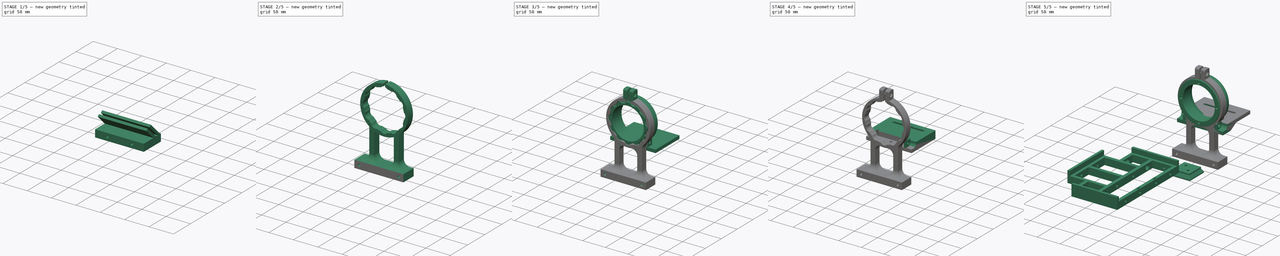
[diagram: build sequence overview — one tinted view per stage of 5, left to right]
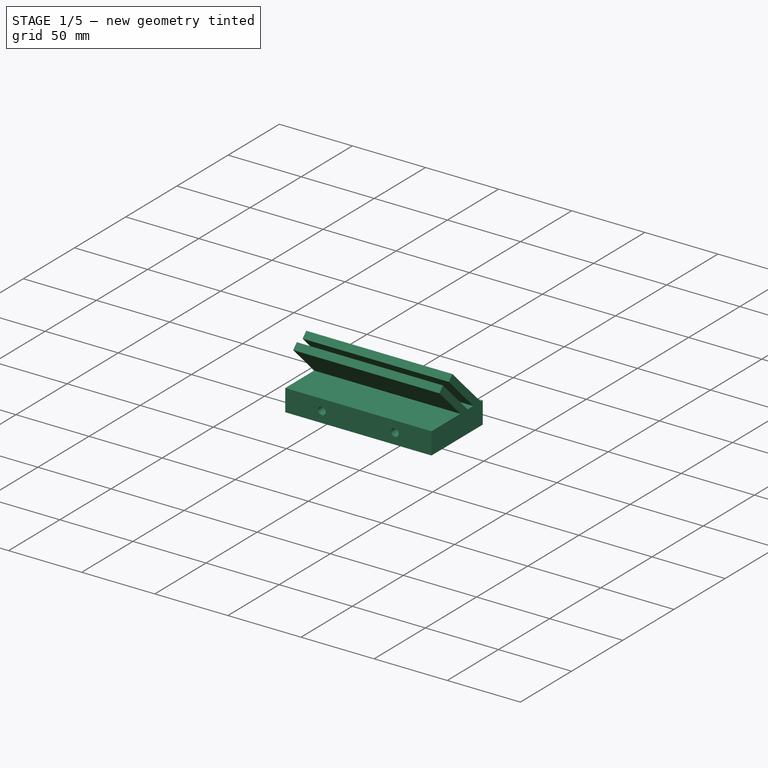
[diagram: stage 1 of 5 — iso view after this stage's code; geometry added in this stage tinted green]
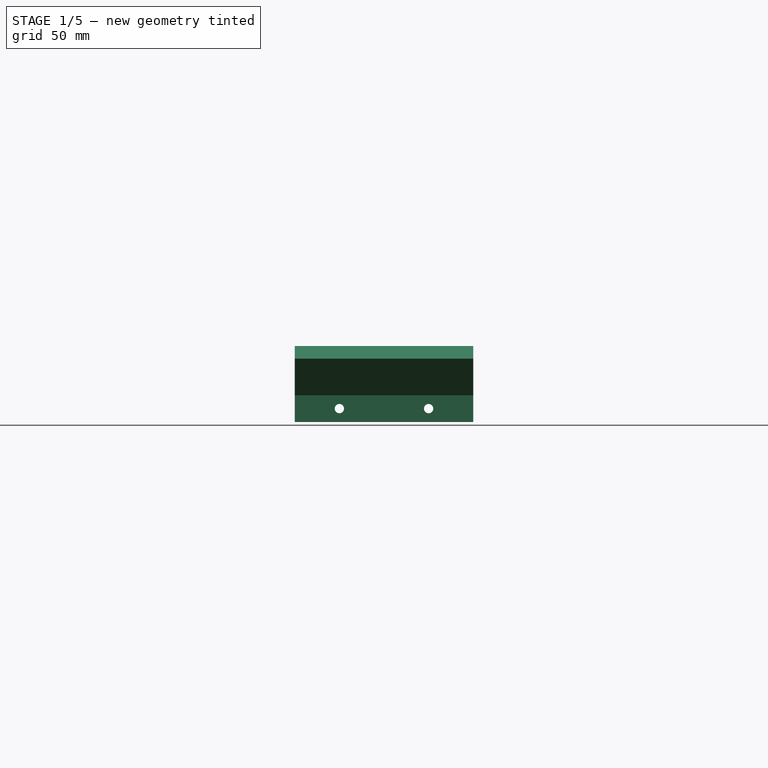
[diagram: stage 1 of 5 — front view after this stage's code; geometry added in this stage tinted green]
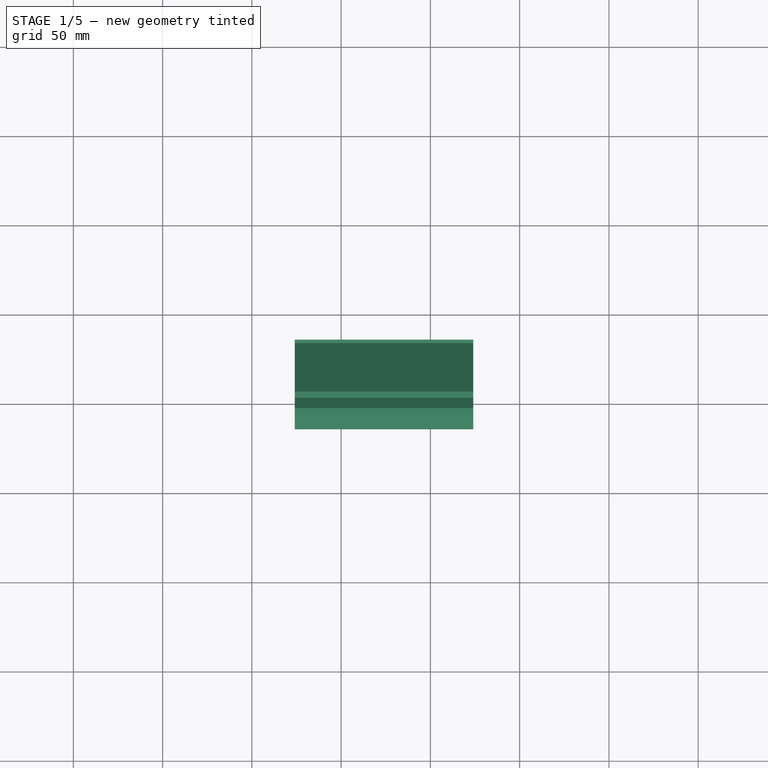
[diagram: stage 1 of 5 — top view after this stage's code; geometry added in this stage tinted green]
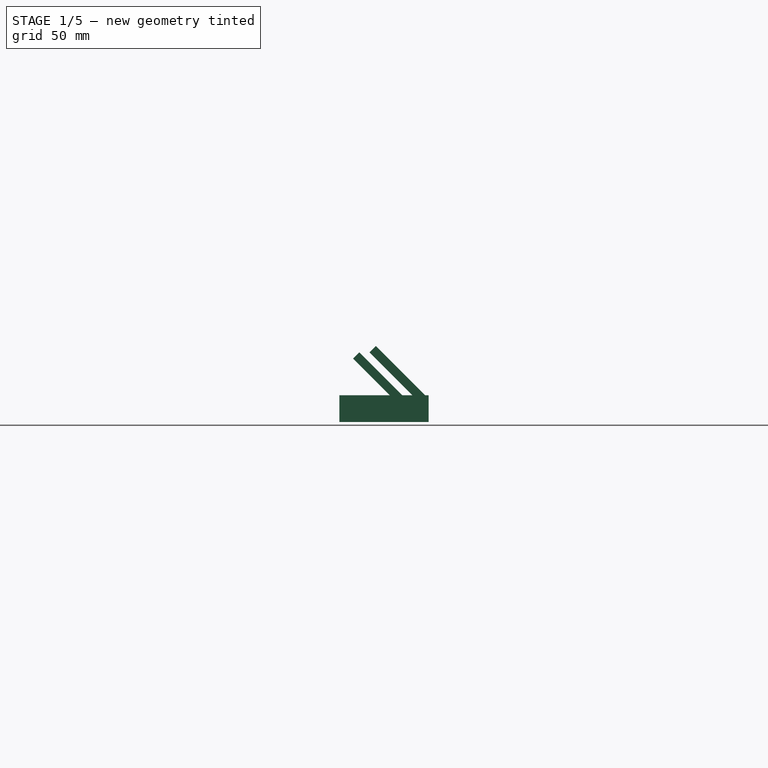
[diagram: stage 1 of 5 — right view after this stage's code; geometry added in this stage tinted green]
FCSTD DOCUMENT  (FreeCAD 0.21R33771 (Git))
Label: Tripod Kit
License: Creative Commons Attribution-NonCommercial-ShareAlike
LicenseURL: http://creativecommons.org/licenses/by-nc-sa/4.0/
objects: Sketcher::SketchObject×67, PartDesign::Pocket×47, PartDesign::Pad×24, PartDesign::Chamfer×16, PartDesign::ShapeBinder×11, PartDesign::Body×8, PartDesign::Fillet×3, PartDesign::FeatureBase×1, App::DocumentObjectGroup×1
note: 267 computed .brp shape members not serialized (recipe doc carries the construction recipe); baked Part::Feature solids carry a one-line shape summary decoded from their .brp

FEATURE [Sketcher::SketchObject] Sketch
  FullyConstrained = true
  MapMode = 5
  Support = -> [XY_Plane]
  sketch-geometry (68):
    g0: LineSegment StartX=-8.5 StartY=-9e-16 StartZ=0 EndX=256.5 EndY=-9e-16 EndZ=0
    g1: LineSegment StartX=256.5 StartY=-9e-16 StartZ=0 EndX=256.5 EndY=-6 EndZ=0
    g2: LineSegment StartX=256.5 StartY=-6 StartZ=0 EndX=-8.5 EndY=-6 EndZ=0
    g3: LineSegment StartX=-8.5 StartY=-6 StartZ=0 EndX=-8.5 EndY=-9e-16 EndZ=0
    g4: LineSegment StartX=-8.5 StartY=186 StartZ=0 EndX=256.5 EndY=186 EndZ=0
    g5: LineSegment StartX=256.5 StartY=186 StartZ=0 EndX=256.5 EndY=180 EndZ=0
    g6: LineSegment StartX=256.5 StartY=180 StartZ=0 EndX=-8.5 EndY=180 EndZ=0
    g7: LineSegment StartX=-8.5 StartY=180 StartZ=0 EndX=-8.5 EndY=186 EndZ=0
    g8: LineSegment StartX=124 StartY=180 StartZ=0 EndX=124 EndY=0 EndZ=0
    g9: LineSegment StartX=-8.5 StartY=186 StartZ=0 EndX=-14.5 EndY=186 EndZ=0
    g10: LineSegment StartX=-14.5 StartY=186 StartZ=0 EndX=-14.5 EndY=-6 EndZ=0
    g11: LineSegment StartX=-14.5 StartY=-6 StartZ=0 EndX=-8.5 EndY=-6 EndZ=0
    g12: LineSegment StartX=-8.5 StartY=-6 StartZ=0 EndX=-8.5 EndY=186 EndZ=0
    g13: LineSegment StartX=256.5 StartY=186 StartZ=0 EndX=262.5 EndY=186 EndZ=0
    g14: LineSegment StartX=262.5 StartY=186 StartZ=0 EndX=262.5 EndY=-6 EndZ=0
    g15: LineSegment StartX=262.5 StartY=-6 StartZ=0 EndX=256.5 EndY=-6 EndZ=0
    g16: LineSegment StartX=256.5 StartY=-6 StartZ=0 EndX=256.5 EndY=186 EndZ=0
    g17: LineSegment StartX=124 StartY=180 StartZ=0 EndX=117 EndY=180 EndZ=0
    g18: LineSegment StartX=117 StartY=180 StartZ=0 EndX=117 EndY=0 EndZ=0
    g19: LineSegment StartX=117 StartY=-1e-15 StartZ=0 EndX=124 EndY=-1e-15 EndZ=0
    g20: LineSegment StartX=124 StartY=-1e-15 StartZ=0 EndX=124 EndY=180 EndZ=0
    g21: LineSegment StartX=124 StartY=-1e-15 StartZ=0 EndX=124 EndY=-6 EndZ=0
    g22: LineSegment StartX=124 StartY=-6 StartZ=0 EndX=24 EndY=-6 EndZ=0
    g23: LineSegment StartX=24 StartY=-6 StartZ=0 EndX=24 EndY=-9e-16 EndZ=0
    g24: LineSegment StartX=24 StartY=-9e-16 StartZ=0 EndX=67 EndY=0 EndZ=0
    g25: LineSegment StartX=67 StartY=0 StartZ=0 EndX=67 EndY=180 EndZ=0
    g26: LineSegment StartX=67 StartY=180 StartZ=0 EndX=24 EndY=180 EndZ=0
    g27: LineSegment StartX=24 StartY=180 StartZ=0 EndX=24 EndY=186 EndZ=0
    g28: LineSegment StartX=24 StartY=186 StartZ=0 EndX=124 EndY=186 EndZ=0
    g29: LineSegment StartX=124 StartY=186 StartZ=0 EndX=124 EndY=180 EndZ=0
    g30: LineSegment StartX=117 StartY=180 StartZ=0 EndX=74 EndY=180 EndZ=0
    g31: LineSegment StartX=74 StartY=180 StartZ=0 EndX=74 EndY=0 EndZ=0
    g32: LineSegment StartX=74 StartY=0 StartZ=0 EndX=117 EndY=-1e-15 EndZ=0
    g33: LineSegment StartX=74 StartY=0 StartZ=0 EndX=67 EndY=0 EndZ=0
    g34: LineSegment StartX=-8.5 StartY=36.5 StartZ=0 EndX=-14.5 EndY=36.5 EndZ=0
    g35: LineSegment StartX=-14.5 StartY=36.5 StartZ=0 EndX=-14.5 EndY=143.5 EndZ=0
    g36: LineSegment StartX=-14.5 StartY=143.5 StartZ=0 EndX=-8.5 EndY=143.5 EndZ=0
    g37: LineSegment StartX=-8.5 StartY=143.5 StartZ=0 EndX=67 EndY=143.5 EndZ=0
    g38: LineSegment StartX=67 StartY=136.5 StartZ=0 EndX=-8.5 EndY=136.5 EndZ=0
    g39: LineSegment StartX=-8.5 StartY=136.5 StartZ=0 EndX=-8.5 EndY=93.5 EndZ=0
    g40: LineSegment StartX=-8.5 StartY=93.5 StartZ=0 EndX=67 EndY=93.5 EndZ=0
    g41: LineSegment StartX=67 StartY=86.5 StartZ=0 EndX=-8.5 EndY=86.5 EndZ=0
    g42: LineSegment StartX=-8.5 StartY=86.5 StartZ=0 EndX=-8.5 EndY=43.5 EndZ=0
    g43: LineSegment StartX=-8.5 StartY=43.5 StartZ=0 EndX=67 EndY=43.5 EndZ=0
    g44: LineSegment StartX=67 StartY=36.5 StartZ=0 EndX=-8.5 EndY=36.5 EndZ=0
    g45: LineSegment StartX=24 StartY=180 StartZ=0 EndX=24 EndY=143.5 EndZ=0
    g46: LineSegment StartX=31 StartY=180 StartZ=0 EndX=31 EndY=143.5 EndZ=0
    g47: LineSegment StartX=24 StartY=-9e-16 StartZ=0 EndX=24 EndY=36.5 EndZ=0
    g48: LineSegment StartX=31 StartY=36.5 StartZ=0 EndX=31 EndY=0 EndZ=0
    g49: LineSegment StartX=-8.5 StartY=90 StartZ=0 EndX=67 EndY=90 EndZ=0
    g50: LineSegment StartX=-8.5 StartY=36.5 StartZ=0 EndX=-8.5 EndY=43.5 EndZ=0
    g51: LineSegment StartX=-8.5 StartY=86.5 StartZ=0 EndX=-8.5 EndY=93.5 EndZ=0
    g52: LineSegment StartX=-8.5 StartY=143.5 StartZ=0 EndX=-8.5 EndY=136.5 EndZ=0
    g53: LineSegment StartX=24 StartY=180 StartZ=0 EndX=31 EndY=180 EndZ=0
    g54: LineSegment StartX=31 StartY=180 StartZ=0 EndX=67 EndY=180 EndZ=0
    g55: LineSegment StartX=24 StartY=-9e-16 StartZ=0 EndX=31 EndY=0 EndZ=0
    g56: LineSegment StartX=31 StartY=0 StartZ=0 EndX=67 EndY=0 EndZ=0
    g57: LineSegment StartX=67 StartY=180 StartZ=0 EndX=67 EndY=143.5 EndZ=0
    g58: LineSegment StartX=67 StartY=136.5 StartZ=0 EndX=67 EndY=93.5 EndZ=0
    g59: LineSegment StartX=67 StartY=86.5 StartZ=0 EndX=67 EndY=43.5 EndZ=0
    g60: LineSegment StartX=-8.5 StartY=143.5 StartZ=0 EndX=24 EndY=143.5 EndZ=0
    g61: LineSegment StartX=31 StartY=143.5 StartZ=0 EndX=67 EndY=143.5 EndZ=0
    g62: LineSegment StartX=-8.5 StartY=36.5 StartZ=0 EndX=24 EndY=36.5 EndZ=0
    g63: LineSegment StartX=31 StartY=36.5 StartZ=0 EndX=67 EndY=36.5 EndZ=0
    g64: LineSegment StartX=67 StartY=36.5 StartZ=0 EndX=67 EndY=0 EndZ=0
    g65: GeomPoint X=-8.5 Y=143.5 Z=0
    g66: GeomPoint X=-8.5 Y=143.5 Z=0
    g67: LineSegment StartX=117 StartY=180 StartZ=0 EndX=-1.42e-14 EndY=0 EndZ=0
  constraints (178):
    c: Coincident(g0,g1)
    c: Coincident(g1,g2)
    c: Coincident(g2,g3)
    c: Horizontal(g0)
    c: Horizontal(g2)
    c: Vertical(g1)
    c: Vertical(g3)
    c: DistanceX(g2,g2) = 265
    c: Coincident(g4,g5)
    c: Coincident(g5,g6)
    c: Coincident(g6,g7)
    c: Coincident(g7,g4)
    c: Horizontal(g4)
    c: Horizontal(g6)
    c: Vertical(g5)
    c: Vertical(g7)
    c: Equal(g4,g0)
    c: Symmetric(g6,g5,g8)
    c: Symmetric(g0,g0,g8)
    c: DistanceY(g8,g8) = 180
    c: DistanceY(g5,g5) = 6
    c: DistanceY(g1,g1) = 6
    c: Coincident(g9,g10)
    c: Coincident(g10,g11)
    c: Coincident(g11,g12)
    c: Coincident(g12,g9)
    c: Horizontal(g9)
    c: Horizontal(g11)
    c: Vertical(g10)
    c: Coincident(g9,g4)
    c: Coincident(g11,g2)
    c: Equal(g5,g11)
    c: Coincident(g13,g14)
    c: Coincident(g14,g15)
    c: Coincident(g15,g16)
    c: Coincident(g16,g13)
    c: Horizontal(g13)
    c: Horizontal(g15)
    c: Vertical(g14)
    c: Coincident(g13,g4)
    c: Coincident(g15,g1)
    c: Equal(g13,g5)
    c: Coincident(g17,g18)
    c: Coincident(g18,g19)
    c: Coincident(g19,g20)
    c: Coincident(g20,g17)
    c: Horizontal(g17)
    c: Horizontal(g19)
    c: Vertical(g18)
    c: Vertical(g20)
    c: Coincident(g17,g8)
    c: PointOnObject(g18,g0)
    c: DistanceX(g19,g19) = 7
    c: Coincident(g21,g20)
    c: PointOnObject(g21,g2)
    c: Vertical(g21)
    c: Coincident(g22,g21)
    c: PointOnObject(g22,g2)
    c: Coincident(g23,g22)
    c: PointOnObject(g23,g0)
    c: Vertical(g23)
    c: Coincident(g24,g23)
    c: PointOnObject(g24,g0)
    c: Coincident(g25,g24)
    c: PointOnObject(g25,g6)
    c: Vertical(g25)
    c: Coincident(g26,g25)
    c: PointOnObject(g26,g6)
    c: Coincident(g27,g26)
    c: PointOnObject(g27,g4)
    c: Vertical(g27)
    c: Coincident(g28,g27)
    c: PointOnObject(g28,g4)
    c: Coincident(g29,g28)
    c: Coincident(g29,g20)
    c: Vertical(g29)
    c: Coincident(g30,g18)
    c: PointOnObject(g30,g6)
    c: Coincident(g31,g30)
    c: PointOnObject(g31,g0)
    c: Vertical(g31)
    c: Coincident(g32,g31)
    c: Coincident(g32,g18)
    c: Coincident(g33,g31)
    c: Coincident(g33,g24)
    c: Equal(g33,g19)
    c: Equal(g30,g26)
    c: Equal(g28,g22)
    c: DistanceX(g28,g28) = 100
    c: PointOnObject(g34,g12)
    c: PointOnObject(g34,g10)
    c: Horizontal(g34)
    c: Coincident(g35,g34)
    c: PointOnObject(g35,g10)
    c: Coincident(g36,g35)
    c: PointOnObject(g36,g12)
    c: Horizontal(g36)
    c: PointOnObject(g37,g25)
    c: Horizontal(g37)
    c: PointOnObject(g38,g25)
    c: PointOnObject(g38,g12)
    c: Horizontal(g38)
    c: Coincident(g39,g38)
    c: PointOnObject(g39,g12)
    c: Coincident(g40,g39)
    c: PointOnObject(g40,g25)
    c: Horizontal(g40)
    c: PointOnObject(g41,g12)
    c: Horizontal(g41)
    c: Coincident(g42,g41)
    c: PointOnObject(g42,g12)
    c: Coincident(g43,g42)
    c: PointOnObject(g43,g25)
    c: Horizontal(g43)
    c: PointOnObject(g44,g25)
    c: Horizontal(g44)
    c: Coincident(g45,g26)
    c: PointOnObject(g45,g37)
    c: Vertical(g45)
    c: PointOnObject(g46,g26)
    c: PointOnObject(g46,g37)
    c: Vertical(g46)
    c: Coincident(g47,g23)
    c: PointOnObject(g47,g44)
    c: Vertical(g47)
    c: PointOnObject(g48,g44)
    c: PointOnObject(g48,g24)
    c: Vertical(g48)
    c: Symmetric(g25,g24,g49)
    c: Symmetric(g6,g0,g49)
    c: Equal(g45,g47)
    c: Coincident(g50,g44)
    c: Coincident(g50,g42)
    c: Equal(g50,g33)
    c: Coincident(g51,g41)
    c: Coincident(g51,g39)
    c: Equal(g51,g50)
    c: Coincident(g52,g38)
    c: Equal(g52,g51)
    c: Symmetric(g40,g41,g49)
    c: Equal(g30,g39)
    c: Coincident(g53,g27)
    c: Coincident(g53,g46)
    c: Coincident(g54,g46)
    c: Coincident(g54,g25)
    c: Coincident(g55,g23)
    c: Coincident(g55,g48)
    c: Coincident(g56,g48)
    c: Coincident(g56,g33)
    c: Equal(g33,g55)
    c: Equal(g55,g53)
    c: Coincident(g57,g54)
    c: Coincident(g57,g37)
    c: Coincident(g58,g38)
    c: Coincident(g58,g40)
    c: Coincident(g59,g41)
    c: Coincident(g59,g43)
    c: Coincident(g60,g45)
    c: Coincident(g61,g46)
    c: Coincident(g61,g57)
    c: Coincident(g62,g47)
    c: Coincident(g63,g48)
    c: Coincident(g63,g44)
    c: Coincident(g64,g63)
    c: Coincident(g64,g56)
    c: Coincident(g65,g36)
    c: Coincident(g66,g60)
    c: Coincident(g60,g36)
    c: Coincident(g34,g62)
    c: Coincident(g34,g44)
    c: Coincident(g36,g37)
    c: Coincident(g52,g36)
    c: Coincident(g67,g18)
    c: Coincident(g67,g-1)
    c: Coincident(g3,g0)
    c: PointOnObject(g0,g12)
    c: DistanceX(g67,g67) = 117
    c: DistanceY(g67,g67) = 180
FEATURE [PartDesign::Pad] Pad
  Direction = (0,0,1)
  Length = 15
  Length2 = 10
  Profile = -> Sketch
  ReferenceAxis = -> Sketch [N_Axis]
  Refine = true
  Type = 0
FEATURE [Sketcher::SketchObject] Sketch002
  ExternalGeometry = -> [Pad]
  FullyConstrained = true
  MapMode = 5
  Placement = pos=(0,0,15) rot=(0,0,1;0rad)
  Support = -> [Pad]
  sketch-geometry (12):
    g0: LineSegment StartX=24 StartY=186 StartZ=0 EndX=124 EndY=186 EndZ=0
    g1: LineSegment StartX=124 StartY=186 StartZ=0 EndX=124 EndY=181 EndZ=0
    g2: LineSegment StartX=124 StartY=181 StartZ=0 EndX=24 EndY=181 EndZ=0
    g3: LineSegment StartX=24 StartY=181 StartZ=0 EndX=24 EndY=186 EndZ=0
    g4: LineSegment StartX=24 StartY=-6 StartZ=0 EndX=124 EndY=-6 EndZ=0
    g5: LineSegment StartX=124 StartY=-6 StartZ=0 EndX=124 EndY=-1 EndZ=0
    g6: LineSegment StartX=124 StartY=-1 StartZ=0 EndX=24 EndY=-1 EndZ=0
    g7: LineSegment StartX=24 StartY=-1 StartZ=0 EndX=24 EndY=-6 EndZ=0
    g8: LineSegment StartX=-14.5 StartY=36.5 StartZ=0 EndX=-9.5 EndY=36.5 EndZ=0
    g9: LineSegment StartX=-9.5 StartY=36.5 StartZ=0 EndX=-9.5 EndY=143.5 EndZ=0
    g10: LineSegment StartX=-9.5 StartY=143.5 StartZ=0 EndX=-14.5 EndY=143.5 EndZ=0
    g11: LineSegment StartX=-14.5 StartY=143.5 StartZ=0 EndX=-14.5 EndY=36.5 EndZ=0
  constraints (30):
    c: Coincident(g0,g1)
    c: Coincident(g1,g2)
    c: Coincident(g2,g3)
    c: Coincident(g3,g0)
    c: Horizontal(g2)
    c: Vertical(g1)
    c: Vertical(g3)
    c: Coincident(g0,g-5)
    c: Coincident(g4,g5)
    c: Coincident(g5,g6)
    c: Coincident(g6,g7)
    c: Coincident(g7,g4)
    c: Horizontal(g6)
    c: Vertical(g5)
    c: Vertical(g7)
    c: Coincident(g4,g-3)
    c: Coincident(g8,g9)
    c: Coincident(g9,g10)
    c: Coincident(g10,g11)
    c: Coincident(g11,g8)
    c: Horizontal(g8)
    c: Horizontal(g10)
    c: Vertical(g9)
    c: Coincident(g8,g-4)
    c: DistanceY(g5,g5) = 5
    c: Coincident(g4,g-3)
    c: Equal(g5,g1)
    c: Coincident(g-5,g0)
    c: Coincident(g-4,g10)
    c: Equal(g10,g5)
FEATURE [PartDesign::Pad] Pad001
  BaseFeature = -> Pad
  Direction = (0,0,1)
  Length = 10
  Length2 = 10
  Profile = -> Sketch002
  ReferenceAxis = -> Sketch002 [N_Axis]
  Type = 0
FEATURE [Sketcher::SketchObject] Sketch003
  ExternalGeometry = -> [Pad001]
  FullyConstrained = true
  MapMode = 5
  Placement = pos=(0,0,0) rot=(1,0,0;3.14159rad)
  Support = -> [Pad001]
  sketch-geometry (12):
    g0: LineSegment StartX=-8.5 StartY=-43.5 StartZ=0 EndX=-3.5 EndY=-43.5 EndZ=0
    g1: LineSegment StartX=-3.5 StartY=-43.5 StartZ=0 EndX=-3.5 EndY=-136.5 EndZ=0
    g2: LineSegment StartX=-3.5 StartY=-136.5 StartZ=0 EndX=-8.5 EndY=-136.5 EndZ=0
    g3: LineSegment StartX=-8.5 StartY=-136.5 StartZ=0 EndX=-8.5 EndY=-43.5 EndZ=0
    g4: LineSegment StartX=31 StartY=-180 StartZ=0 EndX=117 EndY=-180 EndZ=0
    g5: LineSegment StartX=117 StartY=-180 StartZ=0 EndX=117 EndY=-175 EndZ=0
    g6: LineSegment StartX=117 StartY=-175 StartZ=0 EndX=31 EndY=-175 EndZ=0
    g7: LineSegment StartX=31 StartY=-175 StartZ=0 EndX=31 EndY=-180 EndZ=0
    g8: LineSegment StartX=31 StartY=0 StartZ=0 EndX=117 EndY=0 EndZ=0
    g9: LineSegment StartX=117 StartY=0 StartZ=0 EndX=117 EndY=-5 EndZ=0
    g10: LineSegment StartX=117 StartY=-5 StartZ=0 EndX=31 EndY=-5 EndZ=0
    g11: LineSegment StartX=31 StartY=-5 StartZ=0 EndX=31 EndY=0 EndZ=0
  constraints (33):
    c: Coincident(g0,g1)
    c: Coincident(g1,g2)
    c: Coincident(g2,g3)
    c: Coincident(g3,g0)
    c: Horizontal(g0)
    c: Horizontal(g2)
    c: Vertical(g1)
    c: Vertical(g3)
    c: Coincident(g0,g-4)
    c: PointOnObject(g1,g-5)
    c: Coincident(g4,g5)
    c: Coincident(g5,g6)
    c: Coincident(g6,g7)
    c: Coincident(g7,g4)
    c: Horizontal(g4)
    c: Horizontal(g6)
    c: Vertical(g5)
    c: Vertical(g7)
    c: Coincident(g4,g-7)
    c: PointOnObject(g5,g-3)
    c: Equal(g7,g2)
    c: Distance(g2) = 5
    c: Coincident(g8,g9)
    c: Coincident(g9,g10)
    c: Coincident(g10,g11)
    c: Coincident(g11,g8)
    c: Horizontal(g8)
    c: Horizontal(g10)
    c: Vertical(g9)
    c: Vertical(g11)
    c: Coincident(g8,g-6)
    c: PointOnObject(g9,g-3)
    c: Equal(g11,g0)
FEATURE [PartDesign::Pad] Pad002
  BaseFeature = -> Pad001
  Direction = (0,0,-1)
  Length = 10
  Length2 = 10
  Profile = -> Sketch003
  ReferenceAxis = -> Sketch003 [N_Axis]
  Refine = true
  Type = 3
  UpToFace = -> Pad001 [Face8]
FEATURE [Sketcher::SketchObject] Sketch004
  ExternalGeometry = -> [Pad002]
  FullyConstrained = true
  MapMode = 5
  Placement = pos=(-14.5,2e-16,0) rot=(-0.57735,0.57735,0.57735;4.18879rad)
  Support = -> [Pad002]
  sketch-geometry (4):
    g0: Circle CenterX=-115 CenterY=7.5 CenterZ=0 NormalX=0 NormalY=0 NormalZ=1 AngleXU=0 Radius=2.6
    g1: Circle CenterX=-20.75 CenterY=7.5 CenterZ=0 NormalX=0 NormalY=0 NormalZ=1 AngleXU=0 Radius=2.6
    g2: Circle CenterX=-65 CenterY=7.5 CenterZ=0 NormalX=0 NormalY=0 NormalZ=1 AngleXU=0 Radius=2.6
    g3: Circle CenterX=-159.25 CenterY=7.5 CenterZ=0 NormalX=0 NormalY=0 NormalZ=1 AngleXU=0 Radius=2.6
  constraints (8):
    c: Symmetric(g-10,g-9,g3)
    c: Symmetric(g-3,g-7,g2)
    c: Symmetric(g-8,g-4,g0)
    c: Symmetric(g-5,g-6,g1)
    c: Equal(g1,g0)
    c: Equal(g0,g2)
    c: Equal(g2,g3)
    c: Diameter(g3) = 5.2
FEATURE [PartDesign::Pocket] Pocket
  BaseFeature = -> Pad002
  Direction = (1,0,0)
  Length = 0
  Length2 = 5
  Profile = -> Sketch004
  ReferenceAxis = -> Sketch004 [N_Axis]
  Type = 3
  UpToFace = -> Pad002 [Face4]
FEATURE [PartDesign::FeatureBase] Clone
  BaseFeature = -> Pocket
  Placement = pos=(248,180,0) rot=(0,0,1;3.14159rad)
FEATURE [Sketcher::SketchObject] Sketch005
  ExternalGeometry = -> [Pocket]
  FullyConstrained = true
  MapMode = 5
  Placement = pos=(-14.5,2e-16,0) rot=(-0.57735,0.57735,0.57735;4.18879rad)
  Support = -> [Pocket]
  sketch-geometry (2):
    g0: Circle CenterX=-159.25 CenterY=7.5 CenterZ=0 NormalX=0 NormalY=0 NormalZ=1 AngleXU=0 Radius=5.5
    g1: Circle CenterX=-20.75 CenterY=7.5 CenterZ=0 NormalX=0 NormalY=0 NormalZ=1 AngleXU=0 Radius=5.5
  constraints (4):
    c: Coincident(g0,g-3)
    c: Coincident(g1,g-6)
    c: Diameter(g1) = 11
    c: Equal(g0,g1)
FEATURE [PartDesign::Pocket] Pocket001
  BaseFeature = -> Pocket
  Direction = (1,0,0)
  Length = 0
  Length2 = 5
  Profile = -> Sketch005
  ReferenceAxis = -> Sketch005 [N_Axis]
  Type = 3
  UpToFace = -> Pocket [Face23]
FEATURE [Sketcher::SketchObject] Sketch006
  ExternalGeometry = -> [Clone]
  FullyConstrained = true
  MapMode = 5
  Placement = pos=(262.5,180,0) rot=(0.57735,0.57735,0.57735;2.0944rad)
  Support = -> [Clone]
  sketch-geometry (2):
    g0: Circle CenterX=-115 CenterY=7.5 CenterZ=0 NormalX=0 NormalY=0 NormalZ=1 AngleXU=0 Radius=5.5
    g1: Circle CenterX=-65 CenterY=7.5 CenterZ=0 NormalX=0 NormalY=0 NormalZ=1 AngleXU=0 Radius=5.5
  constraints (4):
    c: Coincident(g0,g-3)
    c: Coincident(g1,g-4)
    c: Equal(g1,g0)
    c: Diameter(g1) = 11
FEATURE [PartDesign::Pocket] Pocket002
  BaseFeature = -> Clone
  Direction = (-1,0,0)
  Length = 0
  Length2 = 5
  Placement = pos=(248,180,0) rot=(0,0,1;3.14159rad)
  Profile = -> Sketch006
  ReferenceAxis = -> Sketch006 [N_Axis]
  Type = 3
  UpToFace = -> Clone [Face23]
FEATURE [Sketcher::SketchObject] Sketch007
  ExternalGeometry = -> [Pocket002]
  FullyConstrained = true
  MapMode = 5
  Placement = pos=(124,180,0) rot=(0.57735,-0.57735,-0.57735;2.0944rad)
  Support = -> [Pocket002]
  sketch-geometry (22):
    g0: LineSegment StartX=25.475 StartY=10.228 StartZ=0 EndX=20.75 EndY=12.956 EndZ=0
    g1: LineSegment StartX=20.75 StartY=12.956 StartZ=0 EndX=16.025 EndY=10.228 EndZ=0
    g2: LineSegment StartX=16.025 StartY=10.228 StartZ=0 EndX=16.025 EndY=4.77202 EndZ=0
    g3: LineSegment StartX=16.025 StartY=4.77202 StartZ=0 EndX=20.75 EndY=2.04404 EndZ=0
    g4: LineSegment StartX=20.75 StartY=2.04404 StartZ=0 EndX=25.475 EndY=4.77202 EndZ=0
    g5: LineSegment StartX=25.475 StartY=4.77202 StartZ=0 EndX=25.475 EndY=10.228 EndZ=0
    g6: Circle CenterX=20.75 CenterY=7.5 CenterZ=0 NormalX=0 NormalY=0 NormalZ=1 AngleXU=0 Radius=5.45596
    g7: LineSegment StartX=154.525 StartY=10.228 StartZ=0 EndX=154.525 EndY=4.77202 EndZ=0
    g8: LineSegment StartX=154.525 StartY=4.77202 StartZ=0 EndX=159.25 EndY=2.04404 EndZ=0
    g9: LineSegment StartX=159.25 StartY=2.04404 StartZ=0 EndX=163.975 EndY=4.77202 EndZ=0
    g10: LineSegment StartX=163.975 StartY=4.77202 StartZ=0 EndX=163.975 EndY=10.228 EndZ=0
    g11: LineSegment StartX=163.975 StartY=10.228 StartZ=0 EndX=159.25 EndY=12.956 EndZ=0
    g12: LineSegment StartX=159.25 StartY=12.956 StartZ=0 EndX=154.525 EndY=10.228 EndZ=0
    g13: Circle CenterX=159.25 CenterY=7.5 CenterZ=0 NormalX=0 NormalY=0 NormalZ=1 AngleXU=0 Radius=5.45596
    g14: LineSegment StartX=16.025 StartY=4.77202 StartZ=0 EndX=25.475 EndY=4.77202 EndZ=0
    g15: LineSegment StartX=154.525 StartY=4.77202 StartZ=0 EndX=163.975 EndY=4.77202 EndZ=0
    g16: LineSegment StartX=16.025 StartY=10.228 StartZ=0 EndX=16.025 EndY=15 EndZ=0
    g17: LineSegment StartX=25.475 StartY=10.228 StartZ=0 EndX=25.475 EndY=15 EndZ=0
    g18: LineSegment StartX=25.475 StartY=15 StartZ=0 EndX=16.025 EndY=15 EndZ=0
    g19: LineSegment StartX=154.525 StartY=10.228 StartZ=0 EndX=154.525 EndY=15 EndZ=0
    g20: LineSegment StartX=163.975 StartY=10.228 StartZ=0 EndX=163.975 EndY=15 EndZ=0
    g21: LineSegment StartX=163.975 StartY=15 StartZ=0 EndX=154.525 EndY=15 EndZ=0
  constraints (52):
    c: Coincident(g0,g1)
    c: Coincident(g1,g2)
    c: Coincident(g2,g3)
    c: Coincident(g3,g4)
    c: Coincident(g4,g5)
    c: Coincident(g5,g0)
    c: Equal(g0, g1-g5) x5
    c: PointOnObject(g0,g6)
    c: PointOnObject(g1,g6)
    c: PointOnObject(g2,g6)
    c: PointOnObject(g3,g6)
    c: PointOnObject(g4,g6)
    c: PointOnObject(g5,g6)
    c: Coincident(g7,g8)
    c: Coincident(g8,g9)
    c: Coincident(g9,g10)
    c: Coincident(g10,g11)
    c: Coincident(g11,g12)
    c: Coincident(g12,g7)
    c: Equal(g7, g8-g12) x5
    c: PointOnObject(g7,g13)
    c: PointOnObject(g8,g13)
    c: PointOnObject(g9,g13)
    c: PointOnObject(g10,g13)
    c: PointOnObject(g11,g13)
    c: PointOnObject(g12,g13)
    c: Vertical(g2)
    c: Vertical(g7)
    c: Coincident(g14,g2)
    c: Coincident(g14,g4)
    c: Coincident(g15,g7)
    c: Coincident(g15,g9)
    c: Distance(g14) = 9.45
    c: Equal(g14,g15)
    c: Coincident(g16,g2)
    c: Vertical(g16)
    c: Coincident(g17,g5)
    c: Vertical(g17)
    c: Coincident(g18,g17)
    c: Coincident(g18,g16)
    c: Coincident(g19,g7)
    c: Vertical(g19)
    c: Coincident(g20,g10)
    c: Vertical(g20)
    c: Coincident(g21,g20)
    c: Coincident(g21,g19)
    c: PointOnObject(g17,g-3)
    c: PointOnObject(g16,g-3)
    c: PointOnObject(g19,g-3)
    c: PointOnObject(g20,g-3)
    c: Coincident(g-5,g6)
    c: Coincident(g13,g-4)
FEATURE [PartDesign::Pocket] Pocket003
  BaseFeature = -> Pocket002
  Direction = (1,1e-16,1e-16)
  Length = 5.125
  Length2 = -1.875
  Placement = pos=(248,180,0) rot=(0,0,1;3.14159rad)
  Profile = -> Sketch007
  ReferenceAxis = -> Sketch007 [N_Axis]
  Type = 4
FEATURE [Sketcher::SketchObject] Sketch008
  ExternalGeometry = -> [Pocket003]
  FullyConstrained = true
  MapMode = 5
  Placement = pos=(131,180,0) rot=(0.57735,0.57735,0.57735;2.0944rad)
  Support = -> [Pocket003]
  sketch-geometry (2):
    g0: Circle CenterX=-65 CenterY=7.5 CenterZ=0 NormalX=0 NormalY=0 NormalZ=1 AngleXU=0 Radius=4.5
    g1: Circle CenterX=-115 CenterY=7.5 CenterZ=0 NormalX=0 NormalY=0 NormalZ=1 AngleXU=0 Radius=4.5
  constraints (4):
    c: Equal(g1,g0)
    c: Diameter(g1) = 9
    c: Coincident(g-3,g1)
    c: Coincident(g-4,g0)
FEATURE [PartDesign::Pocket] Pocket004
  BaseFeature = -> Pocket003
  Direction = (-1,-1e-16,-1e-16)
  Length = 3.3
  Length2 = 5
  Placement = pos=(248,180,0) rot=(0,0,1;3.14159rad)
  Profile = -> Sketch008
  ReferenceAxis = -> Sketch008 [N_Axis]
  Type = 0
FEATURE [PartDesign::Chamfer] Chamfer
  Angle = 45
  Base = -> Pocket004 [Edge175,Edge174]
  BaseFeature = -> Pocket004
  ChamferType = 1
  FlipDirection = false
  Placement = pos=(248,180,0) rot=(0,0,1;3.14159rad)
  Refine = true
  Size = 1.75
  Size2 = 3
  SupportTransform = false
  UseAllEdges = false
FEATURE [Sketcher::SketchObject] Sketch009
  ExternalGeometry = -> [Pocket001]
  FullyConstrained = true
  MapMode = 5
  Placement = pos=(124,0,0) rot=(0.57735,0.57735,0.57735;2.0944rad)
  Support = -> [Pocket001]
  sketch-geometry (22):
    g0: LineSegment StartX=69.725 StartY=10.228 StartZ=0 EndX=65 EndY=12.956 EndZ=0
    g1: LineSegment StartX=65 StartY=12.956 StartZ=0 EndX=60.275 EndY=10.228 EndZ=0
    g2: LineSegment StartX=60.275 StartY=10.228 StartZ=0 EndX=60.275 EndY=4.77202 EndZ=0
    g3: LineSegment StartX=60.275 StartY=4.77202 StartZ=0 EndX=65 EndY=2.04404 EndZ=0
    g4: LineSegment StartX=65 StartY=2.04404 StartZ=0 EndX=69.725 EndY=4.77202 EndZ=0
    g5: LineSegment StartX=69.725 StartY=4.77202 StartZ=0 EndX=69.725 EndY=10.228 EndZ=0
    g6: Circle CenterX=65 CenterY=7.5 CenterZ=0 NormalX=0 NormalY=0 NormalZ=1 AngleXU=0 Radius=5.45596
    g7: LineSegment StartX=119.725 StartY=10.228 StartZ=0 EndX=115 EndY=12.956 EndZ=0
    g8: LineSegment StartX=115 StartY=12.956 StartZ=0 EndX=110.275 EndY=10.228 EndZ=0
    g9: LineSegment StartX=110.275 StartY=10.228 StartZ=0 EndX=110.275 EndY=4.77202 EndZ=0
    g10: LineSegment StartX=110.275 StartY=4.77202 StartZ=0 EndX=115 EndY=2.04404 EndZ=0
    g11: LineSegment StartX=115 StartY=2.04404 StartZ=0 EndX=119.725 EndY=4.77202 EndZ=0
    g12: LineSegment StartX=119.725 StartY=4.77202 StartZ=0 EndX=119.725 EndY=10.228 EndZ=0
    g13: Circle CenterX=115 CenterY=7.5 CenterZ=0 NormalX=0 NormalY=0 NormalZ=1 AngleXU=0 Radius=5.45596
    g14: LineSegment StartX=60.275 StartY=4.77202 StartZ=0 EndX=69.725 EndY=4.77202 EndZ=0
    g15: LineSegment StartX=110.275 StartY=4.77202 StartZ=0 EndX=119.725 EndY=4.77202 EndZ=0
    g16: LineSegment StartX=60.275 StartY=10.228 StartZ=0 EndX=60.275 EndY=15 EndZ=0
    g17: LineSegment StartX=60.275 StartY=15 StartZ=0 EndX=69.725 EndY=15 EndZ=0
    g18: LineSegment StartX=69.725 StartY=15 StartZ=0 EndX=69.725 EndY=10.228 EndZ=0
    g19: LineSegment StartX=110.275 StartY=10.228 StartZ=0 EndX=110.275 EndY=15 EndZ=0
    g20: LineSegment StartX=119.725 StartY=10.228 StartZ=0 EndX=119.725 EndY=15 EndZ=0
    g21: LineSegment StartX=119.725 StartY=15 StartZ=0 EndX=110.275 EndY=15 EndZ=0
  constraints (52):
    c: Coincident(g0,g1)
    c: Coincident(g1,g2)
    c: Coincident(g2,g3)
    c: Coincident(g3,g4)
    c: Coincident(g4,g5)
    c: Coincident(g5,g0)
    c: Equal(g0, g1-g5) x5
    c: PointOnObject(g0,g6)
    c: PointOnObject(g1,g6)
    c: PointOnObject(g2,g6)
    c: PointOnObject(g3,g6)
    c: PointOnObject(g4,g6)
    c: PointOnObject(g5,g6)
    c: Coincident(g6,g-3)
    c: Coincident(g7,g8)
    c: Coincident(g8,g9)
    c: Coincident(g9,g10)
    c: Coincident(g10,g11)
    c: Coincident(g11,g12)
    c: Coincident(g12,g7)
    c: Equal(g7, g8-g12) x5
    c: PointOnObject(g7,g13)
    c: PointOnObject(g8,g13)
    c: PointOnObject(g9,g13)
    c: PointOnObject(g10,g13)
    c: PointOnObject(g11,g13)
    c: PointOnObject(g12,g13)
    c: Coincident(g13,g-4)
    c: Vertical(g2)
    c: Vertical(g9)
    c: Coincident(g14,g2)
    c: Coincident(g14,g4)
    c: Coincident(g15,g9)
    c: Coincident(g15,g11)
    c: Distance(g14) = 9.45
    c: Equal(g14,g15)
    c: Coincident(g16,g2)
    c: PointOnObject(g16,g-5)
    c: Vertical(g16)
    c: Coincident(g17,g16)
    c: PointOnObject(g17,g-5)
    c: Coincident(g18,g17)
    c: Coincident(g18,g5)
    c: Vertical(g18)
    c: Coincident(g19,g9)
    c: PointOnObject(g19,g-5)
    c: Vertical(g19)
    c: Coincident(g20,g12)
    c: PointOnObject(g20,g-5)
    c: Coincident(g21,g20)
    c: Coincident(g21,g19)
    c: Vertical(g20)
FEATURE [PartDesign::Pocket] Pocket005
  BaseFeature = -> Pocket001
  Direction = (-1,0,0)
  Length = 5.125
  Length2 = -1.875
  Profile = -> Sketch009
  ReferenceAxis = -> Sketch009 [N_Axis]
  Type = 4
FEATURE [Sketcher::SketchObject] Sketch010
  ExternalGeometry = -> [Pocket005]
  FullyConstrained = true
  MapMode = 5
  Placement = pos=(117,0,0) rot=(0.57735,-0.57735,-0.57735;2.0944rad)
  Support = -> [Pocket005]
  sketch-geometry (2):
    g0: Circle CenterX=-159.25 CenterY=7.5 CenterZ=0 NormalX=0 NormalY=0 NormalZ=1 AngleXU=0 Radius=4.5
    g1: Circle CenterX=-20.75 CenterY=7.5 CenterZ=0 NormalX=0 NormalY=0 NormalZ=1 AngleXU=0 Radius=4.5
  constraints (4):
    c: Coincident(g1,g-3)
    c: Equal(g0,g1)
    c: Diameter(g1) = 9
    c: Coincident(g0,g-4)
FEATURE [PartDesign::Pocket] Pocket006
  BaseFeature = -> Pocket005
  Direction = (1,0,0)
  Length = 3.3
  Length2 = 5
  Profile = -> Sketch010
  ReferenceAxis = -> Sketch010 [N_Axis]
  Type = 0
FEATURE [PartDesign::Chamfer] Chamfer001
  Angle = 45
  Base = -> Pocket006 [Edge174,Edge175]
  BaseFeature = -> Pocket006
  ChamferType = 1
  FlipDirection = false
  Refine = true
  Size = 1.75
  Size2 = 3
  SupportTransform = false
  UseAllEdges = false
FEATURE [PartDesign::ShapeBinder] ShapeBinder
  Placement = pos=(248,180,0) rot=(0,0,1;3.14159rad)
  Support = -> [Chamfer]
  TraceSupport = false
FEATURE [Sketcher::SketchObject] Sketch011  label="T"
  ExternalGeometry = -> [ShapeBinder]
  FullyConstrained = false
  MapMode = 5
  Placement = pos=(248,180,0) rot=(0,1,0;3.14159rad)
  Support = -> [ShapeBinder]
  sketch-geometry (5):
    g0: LineSegment StartX=124 StartY=6 StartZ=0 EndX=224 EndY=6 EndZ=0
    g1: LineSegment StartX=74 StartY=6 StartZ=0 EndX=174 EndY=6 EndZ=0
    g2: LineSegment StartX=174 StartY=6 StartZ=0 EndX=174 EndY=56 EndZ=0
    g3: LineSegment StartX=174 StartY=56 StartZ=0 EndX=74 EndY=56 EndZ=0
    g4: LineSegment StartX=74 StartY=56 StartZ=0 EndX=74 EndY=6 EndZ=0
  constraints (12):
    c: Horizontal(g0)
    c: Coincident(g1,g2)
    c: Coincident(g2,g3)
    c: Coincident(g3,g4)
    c: Coincident(g4,g1)
    c: Horizontal(g1)
    c: Horizontal(g3)
    c: Vertical(g2)
    c: Vertical(g4)
    c: Symmetric(g1,g1,g0)
    c: DistanceX(g3,g3) = 100
    c: DistanceY(g2,g2) = 50
FEATURE [PartDesign::Pad] Pad003
  Direction = (0,0,-1)
  Length = 10
  Length2 = 10
  Placement = pos=(248,180,0) rot=(0,0,1;3.14159rad)
  Profile = -> Sketch011
  ReferenceAxis = -> Sketch011 [N_Axis]
  Type = 3
  UpToFace = -> Chamfer [Face13]
FEATURE [Sketcher::SketchObject] Sketch012
  ExternalGeometry = -> [Pad003]
  FullyConstrained = true
  MapMode = 5
  Placement = pos=(174,180,0) rot=(0.57735,0.57735,0.57735;2.0944rad)
  Support = -> [Pad003]
  sketch-geometry (10):
    g0: LineSegment StartX=56 StartY=15 StartZ=0 EndX=54 EndY=15 EndZ=0
    g1: LineSegment StartX=54 StartY=15 StartZ=0 EndX=26.4228 EndY=42.5772 EndZ=0
    g2: LineSegment StartX=26.4228 StartY=42.5772 StartZ=0 EndX=22.8873 EndY=39.0416 EndZ=0
    g3: LineSegment StartX=22.8873 StartY=39.0416 StartZ=0 EndX=46.9289 EndY=15 EndZ=0
    g4: LineSegment StartX=41.2721 StartY=15 StartZ=0 EndX=17.2304 EndY=39.0416 EndZ=0
    g5: LineSegment StartX=17.2304 StartY=39.0416 StartZ=0 EndX=13.6949 EndY=35.5061 EndZ=0
    g6: LineSegment StartX=13.6949 StartY=35.5061 StartZ=0 EndX=34.201 EndY=15 EndZ=0
    g7: LineSegment StartX=34.201 StartY=15 StartZ=0 EndX=41.2721 EndY=15 EndZ=0
    g8: LineSegment StartX=41.2721 StartY=15 StartZ=0 EndX=44.1005 EndY=17.8284 EndZ=0
    g9: LineSegment StartX=46.9289 StartY=15 StartZ=0 EndX=54 EndY=15 EndZ=0
  constraints (29):
    c: Coincident(g0,g-3)
    c: PointOnObject(g0,g-3)
    c: Distance(g0) = 2
    c: Coincident(g1,g0)
    c: Coincident(g2,g1)
    c: Coincident(g3,g2)
    c: PointOnObject(g3,g-3)
    c: PointOnObject(g4,g-3)
    c: Coincident(g5,g4)
    c: Coincident(g6,g5)
    c: PointOnObject(g6,g-3)
    c: Coincident(g7,g6)
    c: Coincident(g7,g4)
    c: Parallel(g6,g4)
    c: Parallel(g3,g1)
    c: Parallel(g4,g3)
    c: Parallel(g2,g5)
    c: Distance(g2) = 5
    c: Equal(g2,g5)
    c: Coincident(g8,g4)
    c: PointOnObject(g8,g3)
    c: Perpendicular(g8,g4)
    c: Distance(g8) = 4
    c: Angle(g4,g-3) = 0.785398
    c: Perpendicular(g5,g6)
    c: Coincident(g9,g3)
    c: Coincident(g9,g1)
    c: Distance(g4) = 34
    c: Distance(g3) = 34
FEATURE [PartDesign::Pad] Pad004
  BaseFeature = -> Pad003
  Direction = (1,4e-16,0)
  Length = 10
  Length2 = 10
  Placement = pos=(248,180,0) rot=(0,0,1;3.14159rad)
  Profile = -> Sketch012
  ReferenceAxis = -> Sketch012 [N_Axis]
  Refine = true
  Type = 3
  UpToFace = -> Pad003 [Face3]
FEATURE [Sketcher::SketchObject] Sketch014
  ExternalGeometry = -> [Chamfer001]
  FullyConstrained = true
  MapMode = 5
  Placement = pos=(2.54e-14,186,-1.048e-13) rot=(0,0.707107,0.707107;3.14159rad)
  Support = -> [Chamfer001]
  sketch-geometry (3):
    g0: LineSegment StartX=-124 StartY=7.5 StartZ=0 EndX=-101.6 EndY=7.5 EndZ=0
    g1: LineSegment StartX=-101.6 StartY=7.5 StartZ=0 EndX=-74 EndY=7.5 EndZ=0
    g2: Circle CenterX=-99 CenterY=7.5 CenterZ=0 NormalX=0 NormalY=0 NormalZ=1 AngleXU=0 Radius=2.6
  constraints (10):
    c: PointOnObject(g0,g-4)
    c: Horizontal(g0)
    c: Coincident(g1,g0)
    c: Horizontal(g1)
    c: Symmetric(g-3,g-3,g1)
    c: Distance(g0) = 22.4
    c: PointOnObject(g2,g1)
    c: PointOnObject(g0,g2)
    c: Distance(g-3) = 5.2
    c: Diameter(g2) = 5.2
FEATURE [PartDesign::Pocket] Pocket008
  BaseFeature = -> Chamfer001
  Direction = (-1e-16,-1,7e-16)
  Length = 20
  Length2 = 5
  Profile = -> Sketch014
  ReferenceAxis = -> Sketch014 [N_Axis]
  Type = 0
FEATURE [Sketcher::SketchObject] Sketch015
  ExternalGeometry = -> [Chamfer]
  FullyConstrained = true
  MapMode = 5
  Placement = pos=(248,186,2e-16) rot=(0,0.707107,0.707107;3.14159rad)
  Support = -> [Chamfer]
  sketch-geometry (3):
    g0: LineSegment StartX=124 StartY=7.5 StartZ=0 EndX=101.6 EndY=7.5 EndZ=0
    g1: LineSegment StartX=101.6 StartY=7.5 StartZ=0 EndX=74 EndY=7.5 EndZ=0
    g2: Circle CenterX=99 CenterY=7.5 CenterZ=0 NormalX=0 NormalY=0 NormalZ=1 AngleXU=0 Radius=2.6
  constraints (10):
    c: Distance(g-4) = 11
    c: PointOnObject(g0,g-3)
    c: Horizontal(g0)
    c: Coincident(g1,g0)
    c: Horizontal(g1)
    c: Distance(g0) = 22.4
    c: Symmetric(g-4,g-4,g1)
    c: PointOnObject(g2,g1)
    c: PointOnObject(g0,g2)
    c: Diameter(g2) = 5.2
FEATURE [PartDesign::Pocket] Pocket009
  BaseFeature = -> Chamfer
  Direction = (4e-16,-1,-2e-16)
  Length = 20
  Length2 = 5
  Placement = pos=(248,180,0) rot=(0,0,1;3.14159rad)
  Profile = -> Sketch015
  ReferenceAxis = -> Sketch015 [N_Axis]
  Type = 0
FEATURE [PartDesign::ShapeBinder] ShapeBinder001
  Support = -> [Pocket008]
  TraceSupport = false
FEATURE [PartDesign::ShapeBinder] ShapeBinder002
  Placement = pos=(248,180,0) rot=(0,0,1;3.14159rad)
  Support = -> [Pocket009]
  TraceSupport = false
FEATURE [Sketcher::SketchObject] Sketch016
  ExternalGeometry = -> [ShapeBinder001,ShapeBinder002]
  FullyConstrained = true
  MapMode = 5
  Placement = pos=(248,186,0) rot=(1,0,0;1.5708rad)
  Support = -> [Pad004]
  sketch-geometry (2):
    g0: Circle CenterX=-149 CenterY=7.5 CenterZ=0 NormalX=0 NormalY=0 NormalZ=1 AngleXU=0 Radius=2.6
    g1: Circle CenterX=-99 CenterY=7.5 CenterZ=0 NormalX=0 NormalY=0 NormalZ=1 AngleXU=0 Radius=2.6
  constraints (4):
    c: Coincident(g0,g-3)
    c: Coincident(g1,g-4)
    c: Equal(g-4,g1)
    c: Equal(g-3,g0)
FEATURE [PartDesign::Pocket] Pocket010
  BaseFeature = -> Pad004
  Direction = (-5e-16,1,-2e-16)
  Length = 200
  Length2 = 5
  Placement = pos=(248,180,0) rot=(0,0,1;3.14159rad)
  Profile = -> Sketch016
  ReferenceAxis = -> Sketch016 [N_Axis]
  Type = 0
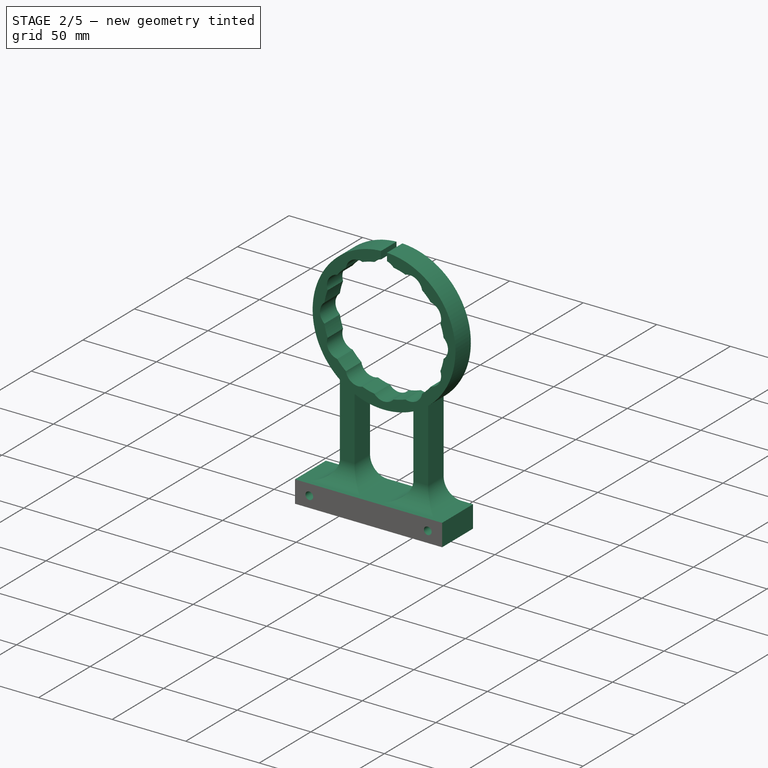
[diagram: stage 2 of 5 — iso view after this stage's code; geometry added in this stage tinted green]
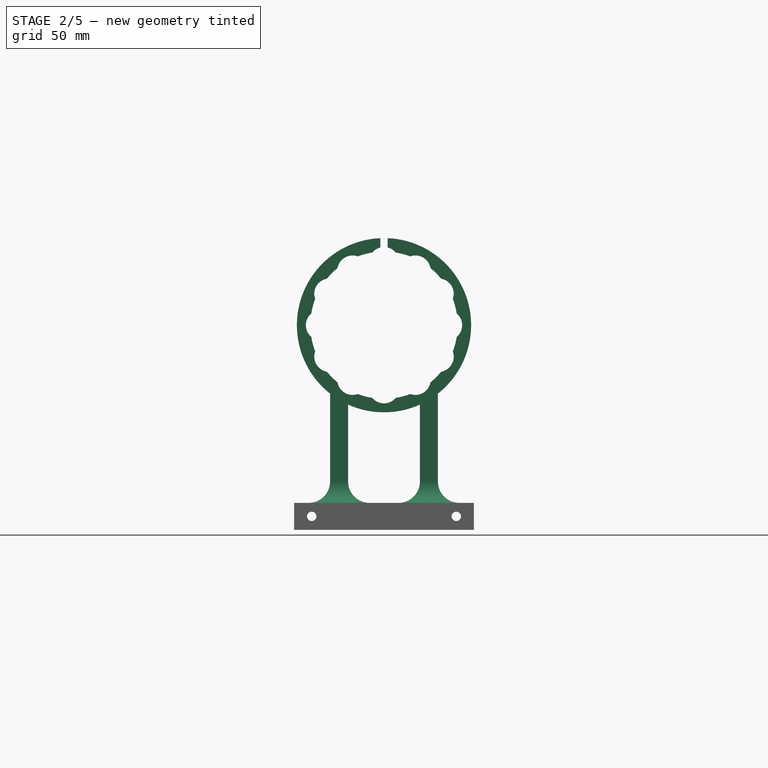
[diagram: stage 2 of 5 — front view after this stage's code; geometry added in this stage tinted green]
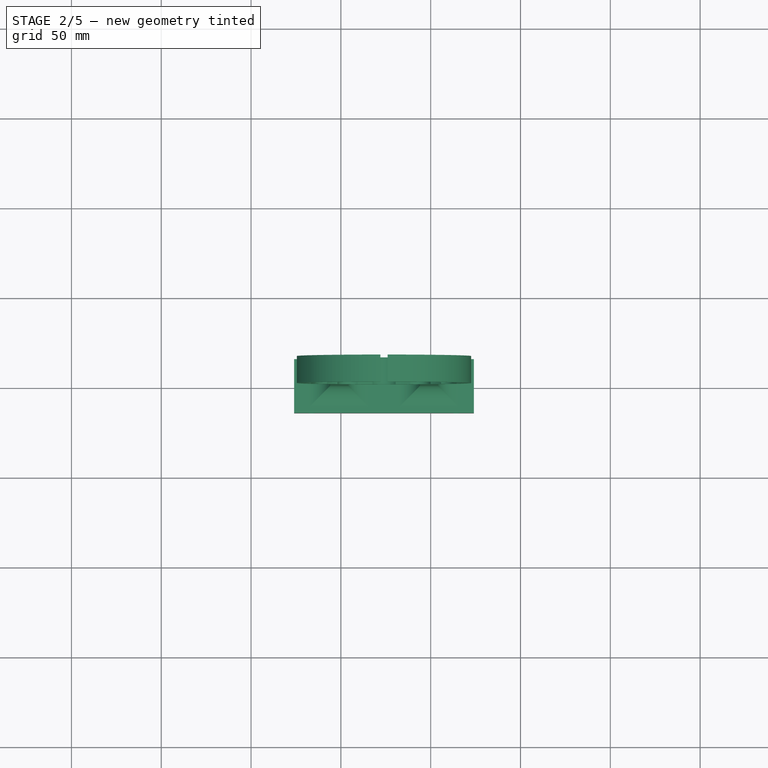
[diagram: stage 2 of 5 — top view after this stage's code; geometry added in this stage tinted green]
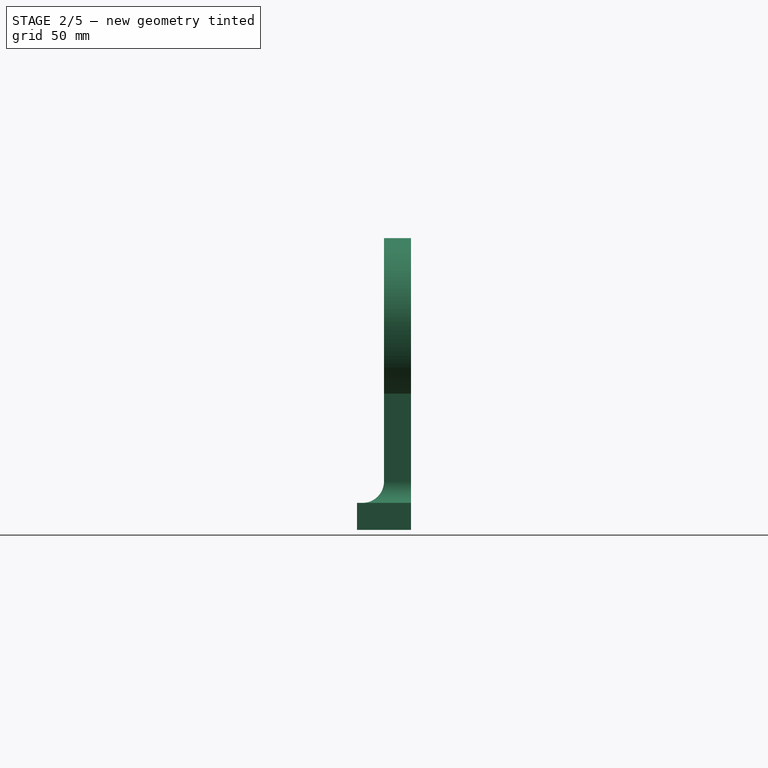
[diagram: stage 2 of 5 — right view after this stage's code; geometry added in this stage tinted green]
FEATURE [Sketcher::SketchObject] Sketch017
  ExternalGeometry = -> [Pocket010]
  FullyConstrained = true
  MapMode = 5
  Placement = pos=(174,180,2.45e-14) rot=(0.57735,0.57735,0.57735;2.0944rad)
  Support = -> [Pocket010]
  sketch-geometry (3):
    g0: LineSegment StartX=41.2721 StartY=15 StartZ=0 EndX=44.1005 EndY=17.8284 EndZ=0
    g1: LineSegment StartX=44.1005 StartY=17.8284 StartZ=0 EndX=46.9289 EndY=15 EndZ=0
    g2: LineSegment StartX=46.9289 StartY=15 StartZ=0 EndX=41.2721 EndY=15 EndZ=0
  constraints (7):
    c: Coincident(g0,g-3)
    c: PointOnObject(g0,g-4)
    c: Coincident(g1,g0)
    c: Coincident(g1,g-4)
    c: Coincident(g2,g1)
    c: Coincident(g2,g0)
    c: Perpendicular(g-4,g0)
FEATURE [PartDesign::Pad] Pad005
  BaseFeature = -> Pocket010
  Direction = (1,3e-16,-1e-16)
  Length = 10
  Length2 = 10
  Placement = pos=(248,180,0) rot=(0,0,1;3.14159rad)
  Profile = -> Sketch017
  ReferenceAxis = -> Sketch017 [N_Axis]
  Refine = true
  Type = 3
  UpToFace = -> Pocket010 [Face4]
FEATURE [PartDesign::Body] Body  label="Left Tablet Holder"
  Group = -> [Sketch,Pad,Sketch002,Pad001,Sketch003,Pad002,Sketch004,Pocket,Sketch005,Pocket001,Sketch009,Pocket005,Sketch010,Pocket006,Chamfer001,Sketch014,Pocket008,Sketch018,Pocket011,Sketch019,Pocket012]
  Origin = -> Origin
  Tip = -> Pocket012
FEATURE [Sketcher::SketchObject] Sketch020
  ExternalGeometry = -> [Pocket009]
  FullyConstrained = true
  MapMode = 5
  Placement = pos=(248,186,2e-16) rot=(0,0.707107,0.707107;3.14159rad)
  Support = -> [Pocket009]
  sketch-geometry (11):
    g0: LineSegment StartX=99 StartY=2.04404 StartZ=0 EndX=103.725 EndY=4.77202 EndZ=0
    g1: LineSegment StartX=103.725 StartY=4.77202 StartZ=0 EndX=103.725 EndY=10.228 EndZ=0
    g2: LineSegment StartX=103.725 StartY=10.228 StartZ=0 EndX=99 EndY=12.956 EndZ=0
    g3: LineSegment StartX=99 StartY=12.956 StartZ=0 EndX=94.275 EndY=10.228 EndZ=0
    g4: LineSegment StartX=94.275 StartY=10.228 StartZ=0 EndX=94.275 EndY=4.77202 EndZ=0
    g5: LineSegment StartX=94.275 StartY=4.77202 StartZ=0 EndX=99 EndY=2.04404 EndZ=0
    g6: Circle CenterX=99 CenterY=7.5 CenterZ=0 NormalX=0 NormalY=0 NormalZ=1 AngleXU=0 Radius=5.45596
    g7: LineSegment StartX=94.275 StartY=4.77202 StartZ=0 EndX=103.725 EndY=4.77202 EndZ=0
    g8: LineSegment StartX=94.275 StartY=4.77202 StartZ=0 EndX=94.275 EndY=0 EndZ=0
    g9: LineSegment StartX=94.275 StartY=0 StartZ=0 EndX=103.725 EndY=0 EndZ=0
    g10: LineSegment StartX=103.725 StartY=0 StartZ=0 EndX=103.725 EndY=4.77202 EndZ=0
  constraints (26):
    c: Coincident(g0,g1)
    c: Coincident(g1,g2)
    c: Coincident(g2,g3)
    c: Coincident(g3,g4)
    c: Coincident(g4,g5)
    c: Coincident(g5,g0)
    c: Equal(g0, g1-g5) x5
    c: PointOnObject(g0,g6)
    c: PointOnObject(g1,g6)
    c: PointOnObject(g2,g6)
    c: PointOnObject(g3,g6)
    c: PointOnObject(g4,g6)
    c: PointOnObject(g5,g6)
    c: Coincident(g6,g-3)
    c: Coincident(g7,g4)
    c: Coincident(g7,g0)
    c: Horizontal(g7)
    c: Distance(g7) = 9.45
    c: Coincident(g4,g8)
    c: PointOnObject(g8,g-1)
    c: Vertical(g8)
    c: Coincident(g8,g9)
    c: PointOnObject(g9,g-1)
    c: Coincident(g9,g10)
    c: Coincident(g10,g1)
    c: Vertical(g10)
FEATURE [PartDesign::Pocket] Pocket013
  BaseFeature = -> Pocket009
  Direction = (5e-16,-1,-2e-16)
  Length = 7.25
  Length2 = -3.75
  Placement = pos=(248,180,0) rot=(0,0,1;3.14159rad)
  Profile = -> Sketch020
  ReferenceAxis = -> Sketch020 [N_Axis]
  Refine = true
  Type = 4
FEATURE [PartDesign::Body] Body001  label="Right Tablet Holder"
  BaseFeature = -> Pocket
  Group = -> [Clone,Sketch006,Pocket002,Sketch007,Pocket003,Sketch008,Pocket004,Chamfer,Sketch015,Pocket009,Sketch020,Pocket013]
  Origin = -> Origin001
  Tip = -> Pocket013
FEATURE [PartDesign::ShapeBinder] ShapeBinder003
  Placement = pos=(2.84e-14,-2.84e-14,0) rot=(0,0,1;0rad)
  Support = -> [Pad005]
  TraceSupport = false
FEATURE [Sketcher::SketchObject] Sketch021
  ExternalGeometry = -> [ShapeBinder003]
  FullyConstrained = true
  MapMode = 5
  Placement = pos=(2.84e-14,-2.84e-14,0) rot=(1,0,0;3.14159rad)
  Support = -> [ShapeBinder003]
  sketch-geometry (5):
    g0: GeomPoint X=124 Y=-211 Z=0
    g1: LineSegment StartX=106 StartY=-193 StartZ=0 EndX=142 EndY=-193 EndZ=0
    g2: LineSegment StartX=142 StartY=-193 StartZ=0 EndX=142 EndY=-229 EndZ=0
    g3: LineSegment StartX=142 StartY=-229 StartZ=0 EndX=106 EndY=-229 EndZ=0
    g4: LineSegment StartX=106 StartY=-229 StartZ=0 EndX=106 EndY=-193 EndZ=0
  constraints (12):
    c: Symmetric(g-3,g-4,g0)
    c: Coincident(g1,g2)
    c: Coincident(g2,g3)
    c: Coincident(g3,g4)
    c: Coincident(g4,g1)
    c: Horizontal(g1)
    c: Horizontal(g3)
    c: Vertical(g2)
    c: Vertical(g4)
    c: Symmetric(g1,g3,g0)
    c: Equal(g4,g1)
    c: Distance(g1) = 36
FEATURE [PartDesign::Pad] Pad006
  Direction = (0,0,-1)
  Length = 3
  Length2 = 10
  Placement = pos=(2.84e-14,-2.84e-14,0) rot=(0,0,1;0rad)
  Profile = -> Sketch021
  ReferenceAxis = -> Sketch021 [N_Axis]
  Type = 0
FEATURE [Sketcher::SketchObject] Sketch022
  ExternalGeometry = -> [Pad006]
  FullyConstrained = true
  MapMode = 5
  Placement = pos=(2.84e-14,-2.84e-14,-3) rot=(1,0,0;3.14159rad)
  Support = -> [Pad006]
  sketch-geometry (5):
    g0: LineSegment StartX=102.25 StartY=-189.25 StartZ=0 EndX=145.75 EndY=-189.25 EndZ=0
    g1: LineSegment StartX=145.75 StartY=-189.25 StartZ=0 EndX=145.75 EndY=-232.75 EndZ=0
    g2: LineSegment StartX=145.75 StartY=-232.75 StartZ=0 EndX=102.25 EndY=-232.75 EndZ=0
    g3: LineSegment StartX=102.25 StartY=-232.75 StartZ=0 EndX=102.25 EndY=-189.25 EndZ=0
    g4: GeomPoint X=124 Y=-211 Z=0
  constraints (12):
    c: Coincident(g0,g1)
    c: Coincident(g1,g2)
    c: Coincident(g2,g3)
    c: Coincident(g3,g0)
    c: Horizontal(g0)
    c: Horizontal(g2)
    c: Vertical(g1)
    c: Vertical(g3)
    c: Equal(g0,g3)
    c: Distance(g3) = 43.5
    c: Symmetric(g-3,g-4,g4)
    c: Symmetric(g2,g0,g4)
FEATURE [PartDesign::Pad] Pad007
  BaseFeature = -> Pad006
  Direction = (0,0,-1)
  Length = 8.75
  Length2 = 10
  Placement = pos=(2.84e-14,-2.84e-14,0) rot=(0,0,1;0rad)
  Profile = -> Sketch022
  ReferenceAxis = -> Sketch022 [N_Axis]
  Type = 0
FEATURE [Sketcher::SketchObject] Sketch023
  ExternalGeometry = -> [Pad007]
  FullyConstrained = true
  MapMode = 5
  Placement = pos=(-4.09e-14,189.25,0) rot=(1,0,0;1.5708rad)
  Support = -> [Pad007]
  sketch-geometry (8):
    g0: LineSegment StartX=106 StartY=-3 StartZ=0 EndX=102.25 EndY=-9.75 EndZ=0
    g1: LineSegment StartX=142 StartY=-3 StartZ=0 EndX=145.75 EndY=-9.75 EndZ=0
    g2: LineSegment StartX=145.75 StartY=-9.75 StartZ=0 EndX=145.75 EndY=-3 EndZ=0
    g3: LineSegment StartX=145.75 StartY=-3 StartZ=0 EndX=142 EndY=-3 EndZ=0
    g4: LineSegment StartX=106 StartY=-3 StartZ=0 EndX=102.25 EndY=-3 EndZ=0
    g5: LineSegment StartX=102.25 StartY=-3 StartZ=0 EndX=102.25 EndY=-9.75 EndZ=0
    g6: LineSegment StartX=102.25 StartY=-9.75 StartZ=0 EndX=102.25 EndY=-11.75 EndZ=0
    g7: LineSegment StartX=145.75 StartY=-9.75 StartZ=0 EndX=145.75 EndY=-11.75 EndZ=0
  constraints (20):
    c: Coincident(g0,g-3)
    c: Coincident(g1,g-5)
    c: Coincident(g2,g1)
    c: Vertical(g2)
    c: Coincident(g3,g2)
    c: Coincident(g3,g1)
    c: Horizontal(g3)
    c: Coincident(g4,g0)
    c: Horizontal(g4)
    c: Coincident(g5,g4)
    c: Coincident(g5,g0)
    c: Vertical(g5)
    c: Coincident(g6,g0)
    c: Coincident(g6,g-4)
    c: Vertical(g6)
    c: Coincident(g7,g1)
    c: Coincident(g7,g-4)
    c: Vertical(g7)
    c: Equal(g6,g7)
    c: Distance(g7) = 2
FEATURE [PartDesign::Pocket] Pocket014
  BaseFeature = -> Pad007
  Direction = (-4e-16,1,-2e-16)
  Length = 100
  Length2 = 5
  Placement = pos=(2.84e-14,-2.84e-14,0) rot=(0,0,1;0rad)
  Profile = -> Sketch023
  ReferenceAxis = -> Sketch023 [N_Axis]
  Type = 0
FEATURE [Sketcher::SketchObject] Sketch024
  ExternalGeometry = -> [Pocket014]
  FullyConstrained = true
  MapMode = 5
  Placement = pos=(102.25,2.77e-14,0) rot=(0.57735,-0.57735,-0.57735;2.0944rad)
  Support = -> [Pocket014]
  sketch-geometry (6):
    g0: LineSegment StartX=-229 StartY=-3 StartZ=0 EndX=-232.75 EndY=-9.75 EndZ=0
    g1: LineSegment StartX=-232.75 StartY=-9.75 StartZ=0 EndX=-232.75 EndY=-3 EndZ=0
    g2: LineSegment StartX=-232.75 StartY=-3 StartZ=0 EndX=-229 EndY=-3 EndZ=0
    g3: LineSegment StartX=-193 StartY=-3 StartZ=0 EndX=-189.25 EndY=-3 EndZ=0
    g4: LineSegment StartX=-189.25 StartY=-3 StartZ=0 EndX=-189.25 EndY=-9.75 EndZ=0
    g5: LineSegment StartX=-189.25 StartY=-9.75 StartZ=0 EndX=-193 EndY=-3 EndZ=0
  constraints (14):
    c: Coincident(g0,g-4)
    c: Coincident(g0,g-3)
    c: Coincident(g1,g0)
    c: Vertical(g1)
    c: Coincident(g2,g1)
    c: Coincident(g2,g0)
    c: Horizontal(g2)
    c: Coincident(g3,g-5)
    c: Horizontal(g3)
    c: Coincident(g4,g3)
    c: Coincident(g4,g-6)
    c: Vertical(g4)
    c: Coincident(g5,g4)
    c: Coincident(g5,g3)
FEATURE [PartDesign::Pocket] Pocket015
  BaseFeature = -> Pocket014
  Direction = (1,4e-16,0)
  Length = 100
  Length2 = 5
  Placement = pos=(2.84e-14,-2.84e-14,0) rot=(0,0,1;0rad)
  Profile = -> Sketch024
  ReferenceAxis = -> Sketch024 [N_Axis]
  Type = 0
FEATURE [Sketcher::SketchObject] Sketch025
  ExternalGeometry = -> [Pocket015]
  FullyConstrained = true
  MapMode = 5
  Placement = pos=(2.84e-14,-2.84e-14,-11.75) rot=(1,0,0;3.14159rad)
  Support = -> [Pocket015]
  sketch-geometry (5):
    g0: LineSegment StartX=110 StartY=-197 StartZ=0 EndX=138 EndY=-197 EndZ=0
    g1: LineSegment StartX=138 StartY=-197 StartZ=0 EndX=138 EndY=-225 EndZ=0
    g2: LineSegment StartX=138 StartY=-225 StartZ=0 EndX=110 EndY=-225 EndZ=0
    g3: LineSegment StartX=110 StartY=-225 StartZ=0 EndX=110 EndY=-197 EndZ=0
    g4: GeomPoint X=124 Y=-211 Z=0
  constraints (12):
    c: Coincident(g0,g1)
    c: Coincident(g1,g2)
    c: Coincident(g2,g3)
    c: Coincident(g3,g0)
    c: Horizontal(g0)
    c: Horizontal(g2)
    c: Vertical(g1)
    c: Vertical(g3)
    c: Equal(g3,g0)
    c: Distance(g1) = 28
    c: Symmetric(g-3,g-4,g4)
    c: Symmetric(g0,g1,g4)
FEATURE [PartDesign::Pocket] Pocket016
  BaseFeature = -> Pocket015
  Direction = (0,0,1)
  Length = 0
  Length2 = 5
  Offset = 4
  Placement = pos=(2.84e-14,-2.84e-14,0) rot=(0,0,1;0rad)
  Profile = -> Sketch025
  ReferenceAxis = -> Sketch025 [N_Axis]
  Reversed = true
  Type = 3
  UpToFace = -> Pad005 [Face2]
FEATURE [Sketcher::SketchObject] Sketch026
  ExternalGeometry = -> [Pocket016]
  FullyConstrained = true
  MapMode = 5
  Placement = pos=(2.84e-14,-2.84e-14,-4) rot=(1,0,0;3.14159rad)
  Support = -> [Pocket016]
  sketch-geometry (12):
    g0: Circle CenterX=116.5 CenterY=-218.5 CenterZ=0 NormalX=0 NormalY=0 NormalZ=1 AngleXU=0 Radius=4.5
    g1: Circle CenterX=131.5 CenterY=-203.5 CenterZ=0 NormalX=0 NormalY=0 NormalZ=1 AngleXU=0 Radius=4.5
    g2: LineSegment StartX=110 StartY=-197 StartZ=0 EndX=138 EndY=-197 EndZ=0
    g3: LineSegment StartX=138 StartY=-225 StartZ=0 EndX=110 EndY=-225 EndZ=0
    g4: LineSegment StartX=110 StartY=-218.5 StartZ=0 EndX=112 EndY=-218.5 EndZ=0
    g5: LineSegment StartX=112 StartY=-218.5 StartZ=0 EndX=116.5 EndY=-218.5 EndZ=0
    g6: LineSegment StartX=116.5 StartY=-218.5 StartZ=0 EndX=116.5 EndY=-223 EndZ=0
    g7: LineSegment StartX=116.5 StartY=-223 StartZ=0 EndX=116.5 EndY=-225 EndZ=0
    g8: LineSegment StartX=131.5 StartY=-203.5 StartZ=0 EndX=131.5 EndY=-199 EndZ=0
    g9: LineSegment StartX=131.5 StartY=-199 StartZ=0 EndX=131.5 EndY=-197 EndZ=0
    g10: LineSegment StartX=131.5 StartY=-203.5 StartZ=0 EndX=136 EndY=-203.5 EndZ=0
    g11: LineSegment StartX=136 StartY=-203.5 StartZ=0 EndX=138 EndY=-203.5 EndZ=0
  constraints (34):
    c: Coincident(g2,g-3)
    c: Coincident(g2,g-4)
    c: Coincident(g3,g-4)
    c: Coincident(g3,g-3)
    c: PointOnObject(g4,g-3)
    c: PointOnObject(g4,g0)
    c: Horizontal(g4)
    c: Coincident(g5,g4)
    c: Coincident(g5,g0)
    c: Coincident(g6,g0)
    c: PointOnObject(g6,g0)
    c: Vertical(g6)
    c: Coincident(g7,g6)
    c: PointOnObject(g7,g3)
    c: Coincident(g8,g1)
    c: PointOnObject(g8,g1)
    c: Vertical(g8)
    c: Coincident(g9,g8)
    c: PointOnObject(g9,g2)
    c: Coincident(g10,g1)
    c: PointOnObject(g10,g1)
    c: Horizontal(g10)
    c: Coincident(g11,g10)
    c: PointOnObject(g11,g-4)
    c: Horizontal(g11)
    c: Vertical(g7)
    c: Vertical(g9)
    c: Horizontal(g5)
    c: Distance(g4) = 2
    c: Equal(g4,g7)
    c: Equal(g11,g9)
    c: Equal(g1,g0)
    c: Diameter(g1) = 9
    c: Equal(g9,g4)
FEATURE [PartDesign::Pocket] Pocket017
  BaseFeature = -> Pocket016
  Direction = (0,0,1)
  Length = 3
  Length2 = 5
  Placement = pos=(2.84e-14,-2.84e-14,0) rot=(0,0,1;0rad)
  Profile = -> Sketch026
  ReferenceAxis = -> Sketch026 [N_Axis]
  Type = 0
FEATURE [PartDesign::ShapeBinder] ShapeBinder004
  Placement = pos=(2.84e-14,-2.84e-14,0) rot=(0,0,1;0rad)
  Support = -> [Pocket017]
  TraceSupport = false
FEATURE [Sketcher::SketchObject] Sketch027
  ExternalGeometry = -> [ShapeBinder004]
  FullyConstrained = true
  MapMode = 5
  Placement = pos=(248,180,0) rot=(0,1,0;3.14159rad)
  Support = -> [Pad005]
  sketch-geometry (2):
    g0: Circle CenterX=116.5 CenterY=23.5 CenterZ=0 NormalX=0 NormalY=0 NormalZ=1 AngleXU=0 Radius=2.6
    g1: Circle CenterX=131.5 CenterY=38.5 CenterZ=0 NormalX=0 NormalY=0 NormalZ=1 AngleXU=0 Radius=2.6
  constraints (4):
    c: Coincident(g0,g-3)
    c: Coincident(g1,g-4)
    c: Equal(g0,g1)
    c: Diameter(g1) = 5.2
FEATURE [PartDesign::Pocket] Pocket018
  BaseFeature = -> Pad005
  Direction = (0,0,1)
  Length = 9
  Length2 = 5
  Placement = pos=(248,180,0) rot=(0,0,1;3.14159rad)
  Profile = -> Sketch027
  ReferenceAxis = -> Sketch027 [N_Axis]
  Type = 0
FEATURE [Sketcher::SketchObject] Sketch028
  ExternalGeometry = -> [Pocket018]
  FullyConstrained = true
  MapMode = 5
  Placement = pos=(248,180,0) rot=(0,1,0;3.14159rad)
  Support = -> [Pocket018]
  sketch-geometry (22):
    g0: LineSegment StartX=136.225 StartY=41.228 StartZ=0 EndX=131.5 EndY=43.956 EndZ=0
    g1: LineSegment StartX=131.5 StartY=43.956 StartZ=0 EndX=126.775 EndY=41.228 EndZ=0
    g2: LineSegment StartX=126.775 StartY=41.228 StartZ=0 EndX=126.775 EndY=35.772 EndZ=0
    g3: LineSegment StartX=126.775 StartY=35.772 StartZ=0 EndX=131.5 EndY=33.044 EndZ=0
    g4: LineSegment StartX=131.5 StartY=33.044 StartZ=0 EndX=136.225 EndY=35.772 EndZ=0
    g5: LineSegment StartX=136.225 StartY=35.772 StartZ=0 EndX=136.225 EndY=41.228 EndZ=0
    g6: Circle CenterX=131.5 CenterY=38.5 CenterZ=0 NormalX=0 NormalY=0 NormalZ=1 AngleXU=0 Radius=5.45596
    g7: LineSegment StartX=111.775 StartY=26.228 StartZ=0 EndX=111.775 EndY=20.772 EndZ=0
    g8: LineSegment StartX=111.775 StartY=20.772 StartZ=0 EndX=116.5 EndY=18.044 EndZ=0
    g9: LineSegment StartX=116.5 StartY=18.044 StartZ=0 EndX=121.225 EndY=20.772 EndZ=0
    g10: LineSegment StartX=121.225 StartY=20.772 StartZ=0 EndX=121.225 EndY=26.228 EndZ=0
    g11: LineSegment StartX=121.225 StartY=26.228 StartZ=0 EndX=116.5 EndY=28.956 EndZ=0
    g12: LineSegment StartX=116.5 StartY=28.956 StartZ=0 EndX=111.775 EndY=26.228 EndZ=0
    g13: Circle CenterX=116.5 CenterY=23.5 CenterZ=0 NormalX=0 NormalY=0 NormalZ=1 AngleXU=0 Radius=5.45596
    g14: LineSegment StartX=111.775 StartY=20.772 StartZ=0 EndX=121.225 EndY=20.772 EndZ=0
    g15: LineSegment StartX=126.775 StartY=35.772 StartZ=0 EndX=136.225 EndY=35.772 EndZ=0
    g16: LineSegment StartX=111.775 StartY=20.772 StartZ=0 EndX=111.775 EndY=6 EndZ=0
    g17: LineSegment StartX=121.225 StartY=20.772 StartZ=0 EndX=121.225 EndY=6 EndZ=0
    g18: LineSegment StartX=121.225 StartY=6 StartZ=0 EndX=111.775 EndY=6 EndZ=0
    g19: LineSegment StartX=126.775 StartY=41.228 StartZ=0 EndX=126.775 EndY=56 EndZ=0
    g20: LineSegment StartX=136.225 StartY=41.228 StartZ=0 EndX=136.225 EndY=56 EndZ=0
    g21: LineSegment StartX=126.775 StartY=56 StartZ=0 EndX=136.225 EndY=56 EndZ=0
  constraints (52):
    c: Coincident(g0,g1)
    c: Coincident(g1,g2)
    c: Coincident(g2,g3)
    c: Coincident(g3,g4)
    c: Coincident(g4,g5)
    c: Coincident(g5,g0)
    c: Equal(g0, g1-g5) x5
    c: PointOnObject(g0,g6)
    c: PointOnObject(g1,g6)
    c: PointOnObject(g2,g6)
    c: PointOnObject(g3,g6)
    c: PointOnObject(g4,g6)
    c: PointOnObject(g5,g6)
    c: Coincident(g6,g-3)
    c: Coincident(g7,g8)
    c: Coincident(g8,g9)
    c: Coincident(g9,g10)
    c: Coincident(g10,g11)
    c: Coincident(g11,g12)
    c: Coincident(g12,g7)
    c: Equal(g7, g8-g12) x5
    c: PointOnObject(g7,g13)
    c: PointOnObject(g8,g13)
    c: PointOnObject(g9,g13)
    c: PointOnObject(g10,g13)
    c: PointOnObject(g11,g13)
    c: PointOnObject(g12,g13)
    c: Coincident(g13,g-4)
    c: Coincident(g14,g7)
    c: Coincident(g14,g9)
    c: Coincident(g15,g2)
    c: Coincident(g15,g4)
    c: Vertical(g7)
    c: Vertical(g2)
    c: Distance(g14) = 9.45
    c: Equal(g14,g15)
    c: Coincident(g16,g7)
    c: PointOnObject(g16,g-6)
    c: Vertical(g16)
    c: Coincident(g17,g10)
    c: PointOnObject(g17,g-6)
    c: Vertical(g17)
    c: Coincident(g18,g17)
    c: Coincident(g18,g16)
    c: Coincident(g19,g2)
    c: PointOnObject(g19,g-5)
    c: Vertical(g19)
    c: Coincident(g20,g5)
    c: Vertical(g20)
    c: PointOnObject(g20,g-5)
    c: Coincident(g21,g19)
    c: Coincident(g21,g20)
FEATURE [PartDesign::Pocket] Pocket019
  BaseFeature = -> Pocket018
  Direction = (0,0,1)
  Length = 9.25
  Length2 = -5.75
  Placement = pos=(248,180,0) rot=(0,0,1;3.14159rad)
  Profile = -> Sketch028
  ReferenceAxis = -> Sketch028 [N_Axis]
  Type = 4
FEATURE [Sketcher::SketchObject] Sketch029
  ExternalGeometry = -> [Pocket019]
  FullyConstrained = true
  MapMode = 5
  Placement = pos=(248,236,0) rot=(0,0.707107,0.707107;3.14159rad)
  Support = -> [Pocket019]
  sketch-geometry (2):
    g0: Circle CenterX=99 CenterY=7.5 CenterZ=0 NormalX=0 NormalY=0 NormalZ=1 AngleXU=0 Radius=5.5
    g1: Circle CenterX=149 CenterY=7.5 CenterZ=0 NormalX=0 NormalY=0 NormalZ=1 AngleXU=0 Radius=5.5
  constraints (4):
    c: Coincident(g0,g-3)
    c: Coincident(g1,g-4)
    c: Diameter(g1) = 11
    c: Equal(g1,g0)
FEATURE [PartDesign::Pocket] Pocket020
  BaseFeature = -> Pocket019
  Direction = (6e-16,-1,2e-16)
  Length = 0
  Length2 = 5
  Offset = 13
  Placement = pos=(248,180,0) rot=(0,0,1;3.14159rad)
  Profile = -> Sketch029
  ReferenceAxis = -> Sketch029 [N_Axis]
  Reversed = true
  Type = 3
  UpToFace = -> Pocket013 [Face19]
FEATURE [PartDesign::Chamfer] Chamfer002
  Angle = 45
  Base = -> Pocket020 [Edge55,Edge53]
  BaseFeature = -> Pocket020
  ChamferType = 0
  FlipDirection = false
  Placement = pos=(248,180,0) rot=(0,0,1;3.14159rad)
  Refine = true
  Size = 1.75
  Size2 = 1
  SupportTransform = false
  UseAllEdges = false
FEATURE [PartDesign::Body] Body003  label="Tripod Quick Release"
  Group = -> [ShapeBinder003,Sketch021,Pad006,Sketch022,Pad007,Sketch023,Pocket014,Sketch024,Pocket015,Sketch025,Pocket016,Sketch026,Pocket017,Sketch030,Pocket021,Chamfer003]
  Origin = -> Origin003
  Tip = -> Chamfer003
FEATURE [Sketcher::SketchObject] Sketch031
  ExternalGeometry = -> [Chamfer002]
  FullyConstrained = true
  MapMode = 5
  Placement = pos=(248,236,0) rot=(0,0.707107,0.707107;3.14159rad)
  Support = -> [Chamfer002]
  sketch-geometry (6):
    g0: LineSegment StartX=99 StartY=7.5 StartZ=0 EndX=93.5 EndY=7.5 EndZ=0
    g1: LineSegment StartX=93.5 StartY=7.5 StartZ=0 EndX=74 EndY=7.5 EndZ=0
    g2: LineSegment StartX=149 StartY=7.5 StartZ=0 EndX=154.5 EndY=7.5 EndZ=0
    g3: LineSegment StartX=154.5 StartY=7.5 StartZ=0 EndX=174 EndY=7.5 EndZ=0
    g4: Circle CenterX=83.75 CenterY=7.5 CenterZ=0 NormalX=0 NormalY=0 NormalZ=1 AngleXU=0 Radius=2.6
    g5: Circle CenterX=164.25 CenterY=7.5 CenterZ=0 NormalX=0 NormalY=0 NormalZ=1 AngleXU=0 Radius=2.6
  constraints (16):
    c: Coincident(g0,g-4)
    c: PointOnObject(g0,g-4)
    c: Horizontal(g0)
    c: Coincident(g1,g0)
    c: PointOnObject(g1,g-3)
    c: Horizontal(g1)
    c: Coincident(g2,g-5)
    c: PointOnObject(g2,g-5)
    c: Horizontal(g2)
    c: Coincident(g3,g2)
    c: PointOnObject(g3,g-6)
    c: Horizontal(g3)
    c: Symmetric(g0,g1,g4)
    c: Symmetric(g2,g3,g5)
    c: Equal(g4,g5)
    c: Diameter(g4) = 5.2
FEATURE [PartDesign::Pocket] Pocket022
  BaseFeature = -> Chamfer002
  Direction = (7e-16,-1,2e-16)
  Length = 13
  Length2 = 5
  Placement = pos=(248,180,0) rot=(0,0,1;3.14159rad)
  Profile = -> Sketch031
  ReferenceAxis = -> Sketch031 [N_Axis]
  Type = 0
FEATURE [Sketcher::SketchObject] Sketch032
  ExternalGeometry = -> [Pocket022]
  FullyConstrained = true
  MapMode = 5
  Placement = pos=(248,236,0) rot=(0,0.707107,0.707107;3.14159rad)
  Support = -> [Pocket022]
  sketch-geometry (22):
    g0: LineSegment StartX=81.022 StartY=12.225 StartZ=0 EndX=78.294 EndY=7.5 EndZ=0
    g1: LineSegment StartX=78.294 StartY=7.5 StartZ=0 EndX=81.022 EndY=2.775 EndZ=0
    g2: LineSegment StartX=81.022 StartY=2.775 StartZ=0 EndX=86.478 EndY=2.775 EndZ=0
    g3: LineSegment StartX=86.478 StartY=2.775 StartZ=0 EndX=89.206 EndY=7.5 EndZ=0
    g4: LineSegment StartX=89.206 StartY=7.5 StartZ=0 EndX=86.478 EndY=12.225 EndZ=0
    g5: LineSegment StartX=86.478 StartY=12.225 StartZ=0 EndX=81.022 EndY=12.225 EndZ=0
    g6: Circle CenterX=83.75 CenterY=7.5 CenterZ=0 NormalX=0 NormalY=0 NormalZ=1 AngleXU=0 Radius=5.45596
    g7: LineSegment StartX=161.522 StartY=12.225 StartZ=0 EndX=158.794 EndY=7.5 EndZ=0
    g8: LineSegment StartX=158.794 StartY=7.5 StartZ=0 EndX=161.522 EndY=2.775 EndZ=0
    g9: LineSegment StartX=161.522 StartY=2.775 StartZ=0 EndX=166.978 EndY=2.775 EndZ=0
    g10: LineSegment StartX=166.978 StartY=2.775 StartZ=0 EndX=169.706 EndY=7.5 EndZ=0
    g11: LineSegment StartX=169.706 StartY=7.5 StartZ=0 EndX=166.978 EndY=12.225 EndZ=0
    g12: LineSegment StartX=166.978 StartY=12.225 StartZ=0 EndX=161.522 EndY=12.225 EndZ=0
    g13: Circle CenterX=164.25 CenterY=7.5 CenterZ=0 NormalX=0 NormalY=0 NormalZ=1 AngleXU=0 Radius=5.45596
    g14: LineSegment StartX=86.478 StartY=2.775 StartZ=0 EndX=86.478 EndY=12.225 EndZ=0
    g15: LineSegment StartX=166.978 StartY=2.775 StartZ=0 EndX=158.794 EndY=7.5 EndZ=0
    g16: LineSegment StartX=166.978 StartY=12.225 StartZ=0 EndX=174 EndY=12.225 EndZ=0
    g17: LineSegment StartX=166.978 StartY=2.775 StartZ=0 EndX=174 EndY=2.775 EndZ=0
    g18: LineSegment StartX=174 StartY=2.775 StartZ=0 EndX=174 EndY=12.225 EndZ=0
    g19: LineSegment StartX=81.022 StartY=2.775 StartZ=0 EndX=74 EndY=2.775 EndZ=0
    g20: LineSegment StartX=81.022 StartY=12.225 StartZ=0 EndX=74 EndY=12.225 EndZ=0
    g21: LineSegment StartX=74 StartY=12.225 StartZ=0 EndX=74 EndY=2.775 EndZ=0
  constraints (52):
    c: Coincident(g0,g1)
    c: Coincident(g1,g2)
    c: Coincident(g2,g3)
    c: Coincident(g3,g4)
    c: Coincident(g4,g5)
    c: Coincident(g5,g0)
    c: Equal(g0, g1-g5) x5
    c: PointOnObject(g0,g6)
    c: PointOnObject(g1,g6)
    c: PointOnObject(g2,g6)
    c: PointOnObject(g3,g6)
    c: PointOnObject(g4,g6)
    c: PointOnObject(g5,g6)
    c: Coincident(g6,g-3)
    c: Coincident(g7,g8)
    c: Coincident(g8,g9)
    c: Coincident(g9,g10)
    c: Coincident(g10,g11)
    c: Coincident(g11,g12)
    c: Coincident(g12,g7)
    c: Equal(g7, g8-g12) x5
    c: PointOnObject(g7,g13)
    c: PointOnObject(g8,g13)
    c: PointOnObject(g9,g13)
    c: PointOnObject(g10,g13)
    c: PointOnObject(g11,g13)
    c: PointOnObject(g12,g13)
    c: Coincident(g13,g-4)
    c: Coincident(g14,g2)
    c: Coincident(g14,g4)
    c: Coincident(g15,g9)
    c: Coincident(g15,g7)
    c: Equal(g14,g15)
    c: Distance(g15) = 9.45
    c: Horizontal(g12)
    c: Horizontal(g5)
    c: Coincident(g16,g12)
    c: PointOnObject(g16,g-6)
    c: Horizontal(g16)
    c: Coincident(g17,g9)
    c: PointOnObject(g17,g-6)
    c: Horizontal(g17)
    c: Coincident(g18,g17)
    c: Coincident(g18,g16)
    c: Coincident(g19,g2)
    c: PointOnObject(g19,g-5)
    c: Horizontal(g19)
    c: Coincident(g20,g5)
    c: PointOnObject(g20,g-5)
    c: Horizontal(g20)
    c: Coincident(g21,g20)
    c: Coincident(g21,g19)
FEATURE [PartDesign::Pocket] Pocket023
  BaseFeature = -> Pocket022
  Direction = (7e-16,-1,2e-16)
  Length = 6.25
  Length2 = -3
  Placement = pos=(248,180,0) rot=(0,0,1;3.14159rad)
  Profile = -> Sketch032
  ReferenceAxis = -> Sketch032 [N_Axis]
  Type = 4
FEATURE [PartDesign::Body] Body002  label="Glass Holder"
  Group = -> [ShapeBinder,Sketch011,Pad003,Sketch012,Pad004,ShapeBinder001,ShapeBinder002,Sketch016,Pocket010,Sketch017,Pad005,ShapeBinder004,Sketch027,Pocket018,Sketch028,Pocket019,Sketch029,Pocket020,Chamfer002,Sketch031,Pocket022,Sketch032,Pocket023]
  Origin = -> Origin002
  Tip = -> Pocket023
FEATURE [PartDesign::ShapeBinder] ShapeBinder005
  Placement = pos=(248,180,0) rot=(0,0,1;3.14159rad)
  Support = -> [Pocket023]
  TraceSupport = false
FEATURE [Sketcher::SketchObject] Sketch033
  ExternalGeometry = -> [ShapeBinder005]
  FullyConstrained = true
  MapMode = 5
  Placement = pos=(248,236,0) rot=(0,0.707107,0.707107;3.14159rad)
  Support = -> [ShapeBinder005]
  sketch-geometry (6):
    g0: LineSegment StartX=74 StartY=15 StartZ=0 EndX=174 EndY=15 EndZ=0
    g1: LineSegment StartX=174 StartY=15 StartZ=0 EndX=174 EndY=0 EndZ=0
    g2: LineSegment StartX=174 StartY=0 StartZ=0 EndX=74 EndY=0 EndZ=0
    g3: LineSegment StartX=74 StartY=0 StartZ=0 EndX=74 EndY=15 EndZ=0
    g4: Circle CenterX=83.75 CenterY=7.5 CenterZ=0 NormalX=0 NormalY=0 NormalZ=1 AngleXU=0 Radius=2.6
    g5: Circle CenterX=164.25 CenterY=7.5 CenterZ=0 NormalX=0 NormalY=0 NormalZ=1 AngleXU=0 Radius=2.6
  constraints (14):
    c: Coincident(g0,g1)
    c: Coincident(g1,g2)
    c: Coincident(g2,g3)
    c: Coincident(g3,g0)
    c: Horizontal(g0)
    c: Horizontal(g2)
    c: Vertical(g1)
    c: Vertical(g3)
    c: Coincident(g0,g-3)
    c: Coincident(g1,g-4)
    c: Coincident(g4,g-5)
    c: Coincident(g5,g-6)
    c: Equal(g-6,g5)
    c: Equal(g-5,g4)
FEATURE [PartDesign::Pad] Pad008
  Direction = (-8e-16,1,-2e-16)
  Length = 30
  Length2 = 10
  Placement = pos=(248,180,0) rot=(0,0,1;3.14159rad)
  Profile = -> Sketch033
  ReferenceAxis = -> Sketch033 [N_Axis]
  Type = 0
FEATURE [Sketcher::SketchObject] Sketch034
  ExternalGeometry = -> [Pad008]
  FullyConstrained = true
  MapMode = 5
  Placement = pos=(248,266,0) rot=(0,0.707107,0.707107;3.14159rad)
  Support = -> [Pad008]
  sketch-geometry (73):
    g0: LineSegment StartX=116.5 StartY=15 StartZ=0 EndX=131.5 EndY=15 EndZ=0
    g1: LineSegment StartX=131.5 StartY=15 StartZ=0 EndX=131.5 EndY=66 EndZ=0
    g2: LineSegment StartX=131.5 StartY=66 StartZ=0 EndX=116.5 EndY=66 EndZ=0
    g3: LineSegment StartX=116.5 StartY=66 StartZ=0 EndX=116.5 EndY=15 EndZ=0
    g4: GeomPoint X=124 Y=15 Z=0
    g5: Circle CenterX=124 CenterY=113.917 CenterZ=0 NormalX=0 NormalY=0 NormalZ=1 AngleXU=0 Radius=35
    g6: Circle CenterX=124 CenterY=113.917 CenterZ=0 NormalX=0 NormalY=0 NormalZ=1 AngleXU=0 Radius=48.5
    g7: Circle CenterX=89 CenterY=113.917 CenterZ=0 NormalX=0 NormalY=0 NormalZ=1 AngleXU=0 Radius=8
    g8: LineSegment StartX=89 StartY=113.917 StartZ=0 EndX=124 EndY=113.917 EndZ=0
    g9: Circle CenterX=124 CenterY=113.917 CenterZ=0 NormalX=0 NormalY=0 NormalZ=1 AngleXU=0 Radius=43.5
    g10: LineSegment StartX=124 StartY=113.917 StartZ=0 EndX=124 EndY=70.4166 EndZ=0
    g11: LineSegment StartX=124 StartY=70.4166 StartZ=0 EndX=124 EndY=65.4166 EndZ=0
    g12: ArcOfCircle CenterX=89 CenterY=113.917 CenterZ=0 NormalX=0 NormalY=0 NormalZ=1 AngleXU=0 Radius=8.5 StartAngle=2.27176 EndAngle=4.01142
    g13: LineSegment StartX=89 StartY=113.917 StartZ=0 EndX=81 EndY=113.917 EndZ=0
    g14: LineSegment StartX=81 StartY=113.917 StartZ=0 EndX=80.5 EndY=113.917 EndZ=0
    g15: Circle CenterX=124 CenterY=113.917 CenterZ=0 NormalX=0 NormalY=0 NormalZ=1 AngleXU=0 Radius=41
    g16: LineSegment StartX=124 StartY=113.917 StartZ=0 EndX=93.6891 EndY=131.417 EndZ=0
    g17: LineSegment StartX=124 StartY=113.917 StartZ=0 EndX=106.5 EndY=144.227 EndZ=0
    g18: LineSegment StartX=124 StartY=113.917 StartZ=0 EndX=124 EndY=148.917 EndZ=0
    g19: Circle CenterX=93.6891 CenterY=131.417 CenterZ=0 NormalX=0 NormalY=0 NormalZ=1 AngleXU=0 Radius=8
    g20: Circle CenterX=106.5 CenterY=144.227 CenterZ=0 NormalX=0 NormalY=0 NormalZ=1 AngleXU=0 Radius=8
    g21: Circle CenterX=124 CenterY=148.917 CenterZ=0 NormalX=0 NormalY=0 NormalZ=1 AngleXU=0 Radius=8
    g22: LineSegment StartX=124 StartY=148.917 StartZ=0 EndX=124 EndY=154.917 EndZ=0
    g23: ArcOfCircle CenterX=93.6891 CenterY=131.417 CenterZ=0 NormalX=0 NormalY=0 NormalZ=1 AngleXU=0 Radius=8.5 StartAngle=1.74817 EndAngle=3.48782
    g24: ArcOfCircle CenterX=106.5 CenterY=144.227 CenterZ=0 NormalX=0 NormalY=0 NormalZ=1 AngleXU=0 Radius=8.5 StartAngle=1.22457 EndAngle=2.96422
    g25: ArcOfCircle CenterX=124 CenterY=148.917 CenterZ=0 NormalX=0 NormalY=0 NormalZ=1 AngleXU=0 Radius=8.5 StartAngle=0.700968 EndAngle=2.44062
    g26: ArcOfCircle CenterX=124 CenterY=113.917 CenterZ=0 NormalX=0 NormalY=0 NormalZ=1 AngleXU=0 Radius=41 StartAngle=2.7771 EndAngle=2.98249
    g27: ArcOfCircle CenterX=124 CenterY=113.917 CenterZ=0 NormalX=0 NormalY=0 NormalZ=1 AngleXU=0 Radius=41 StartAngle=2.2535 EndAngle=2.45889
    g28: ArcOfCircle CenterX=124 CenterY=113.917 CenterZ=0 NormalX=0 NormalY=0 NormalZ=1 AngleXU=0 Radius=41 StartAngle=1.7299 EndAngle=1.93529
    g29: LineSegment StartX=124 StartY=113.917 StartZ=0 EndX=159 EndY=113.917 EndZ=0
    g30: LineSegment StartX=124 StartY=113.917 StartZ=0 EndX=124 EndY=78.9166 EndZ=0
    g31: LineSegment StartX=124 StartY=113.917 StartZ=0 EndX=141.5 EndY=83.6057 EndZ=0
    g32: LineSegment StartX=124 StartY=113.917 StartZ=0 EndX=154.311 EndY=96.4166 EndZ=0
    g33: LineSegment StartX=124 StartY=113.917 StartZ=0 EndX=93.6891 EndY=96.4166 EndZ=0
    g34: LineSegment StartX=124 StartY=113.917 StartZ=0 EndX=106.5 EndY=83.6057 EndZ=0
    g35: LineSegment StartX=124 StartY=113.917 StartZ=0 EndX=141.5 EndY=144.227 EndZ=0
    g36: LineSegment StartX=124 StartY=113.917 StartZ=0 EndX=154.311 EndY=131.417 EndZ=0
    g37: Circle CenterX=141.5 CenterY=144.227 CenterZ=0 NormalX=0 NormalY=0 NormalZ=1 AngleXU=0 Radius=8
    g38: Circle CenterX=154.311 CenterY=131.417 CenterZ=0 NormalX=0 NormalY=0 NormalZ=1 AngleXU=0 Radius=8
    g39: Circle CenterX=159 CenterY=113.917 CenterZ=0 NormalX=0 NormalY=0 NormalZ=1 AngleXU=0 Radius=8
    g40: Circle CenterX=154.311 CenterY=96.4166 CenterZ=0 NormalX=0 NormalY=0 NormalZ=1 AngleXU=0 Radius=8
    g41: Circle CenterX=141.5 CenterY=83.6057 CenterZ=0 NormalX=0 NormalY=0 NormalZ=1 AngleXU=0 Radius=8
    g42: Circle CenterX=124 CenterY=78.9166 CenterZ=0 NormalX=0 NormalY=0 NormalZ=1 AngleXU=0 Radius=8
    g43: Circle CenterX=106.5 CenterY=83.6057 CenterZ=0 NormalX=0 NormalY=0 NormalZ=1 AngleXU=0 Radius=8
    g44: Circle CenterX=93.6891 CenterY=96.4166 CenterZ=0 NormalX=0 NormalY=0 NormalZ=1 AngleXU=0 Radius=8
    g45: ArcOfCircle CenterX=124 CenterY=113.917 CenterZ=0 NormalX=0 NormalY=0 NormalZ=1 AngleXU=0 Radius=41 StartAngle=3.3007 EndAngle=3.50609
    g46: ArcOfCircle CenterX=124 CenterY=113.917 CenterZ=0 NormalX=0 NormalY=0 NormalZ=1 AngleXU=0 Radius=41 StartAngle=3.8243 EndAngle=4.02968
    g47: ArcOfCircle CenterX=124 CenterY=113.917 CenterZ=0 NormalX=0 NormalY=0 NormalZ=1 AngleXU=0 Radius=41 StartAngle=4.3479 EndAngle=4.55328
    g48: ArcOfCircle CenterX=124 CenterY=113.917 CenterZ=0 NormalX=0 NormalY=0 NormalZ=1 AngleXU=0 Radius=41 StartAngle=4.87149 EndAngle=5.07688
    g49: ArcOfCircle CenterX=124 CenterY=113.917 CenterZ=0 NormalX=0 NormalY=0 NormalZ=1 AngleXU=0 Radius=41 StartAngle=5.39509 EndAngle=5.60048
    g50: ArcOfCircle CenterX=124 CenterY=113.917 CenterZ=0 NormalX=0 NormalY=0 NormalZ=1 AngleXU=0 Radius=41 StartAngle=5.91869 EndAngle=6.12408
    g51: ArcOfCircle CenterX=124 CenterY=113.917 CenterZ=0 NormalX=0 NormalY=0 NormalZ=1 AngleXU=0 Radius=41 StartAngle=0.159106 EndAngle=0.364493
    g52: ArcOfCircle CenterX=124 CenterY=113.917 CenterZ=0 NormalX=0 NormalY=0 NormalZ=1 AngleXU=0 Radius=41 StartAngle=0.682705 EndAngle=0.888092
    g53: ArcOfCircle CenterX=124 CenterY=113.917 CenterZ=0 NormalX=0 NormalY=0 NormalZ=1 AngleXU=0 Radius=41 StartAngle=1.2063 EndAngle=1.41169
    g54: ArcOfCircle CenterX=141.5 CenterY=144.227 CenterZ=0 NormalX=0 NormalY=0 NormalZ=1 AngleXU=0 Radius=8.5 StartAngle=0.17737 EndAngle=1.91703
    g55: ArcOfCircle CenterX=154.311 CenterY=131.417 CenterZ=0 NormalX=0 NormalY=0 NormalZ=1 AngleXU=0 Radius=8.5 StartAngle=5.93696 EndAngle=7.67661
    g56: ArcOfCircle CenterX=159 CenterY=113.917 CenterZ=0 NormalX=0 NormalY=0 NormalZ=1 AngleXU=0 Radius=8.5 StartAngle=5.41336 EndAngle=7.15301
    g57: ArcOfCircle CenterX=154.311 CenterY=96.4166 CenterZ=0 NormalX=0 NormalY=0 NormalZ=1 AngleXU=0 Radius=8.5 StartAngle=4.88976 EndAngle=6.62941
    g58: ArcOfCircle CenterX=141.5 CenterY=83.6057 CenterZ=0 NormalX=0 NormalY=0 NormalZ=1 AngleXU=0 Radius=8.5 StartAngle=4.36616 EndAngle=6.10582
    g59: ArcOfCircle CenterX=124 CenterY=78.9166 CenterZ=0 NormalX=0 NormalY=0 NormalZ=1 AngleXU=0 Radius=8.5 StartAngle=3.84256 EndAngle=5.58222
    g60: ArcOfCircle CenterX=106.5 CenterY=83.6057 CenterZ=0 NormalX=0 NormalY=0 NormalZ=1 AngleXU=0 Radius=8.5 StartAngle=3.31896 EndAngle=5.05862
    g61: ArcOfCircle CenterX=93.6891 CenterY=96.4166 CenterZ=0 NormalX=0 NormalY=0 NormalZ=1 AngleXU=0 Radius=8.5 StartAngle=2.79536 EndAngle=4.53502
    g62: LineSegment StartX=94 StartY=75.8082 StartZ=0 EndX=94 EndY=15 EndZ=0
    g63: LineSegment StartX=104 StartY=69.7323 StartZ=0 EndX=104 EndY=15 EndZ=0
    g64: LineSegment StartX=104 StartY=15 StartZ=0 EndX=94 EndY=15 EndZ=0
    g65: LineSegment StartX=154 StartY=75.8082 StartZ=0 EndX=154 EndY=15 EndZ=0
    g66: LineSegment StartX=154 StartY=15 StartZ=0 EndX=144 EndY=15 EndZ=0
    g67: LineSegment StartX=144 StartY=15 StartZ=0 EndX=144 EndY=69.7323 EndZ=0
    g68: ArcOfCircle CenterX=124 CenterY=113.917 CenterZ=0 NormalX=0 NormalY=0 NormalZ=1 AngleXU=0 Radius=48.5 StartAngle=4.28733 EndAngle=5.13744
    g69: ArcOfCircle CenterX=124 CenterY=113.917 CenterZ=0 NormalX=0 NormalY=0 NormalZ=1 AngleXU=0 Radius=48.5 StartAngle=5.37929 EndAngle=10.3287
    g70: GeomPoint X=99 Y=15 Z=0
    g71: GeomPoint X=149 Y=15 Z=0
    g72: LineSegment StartX=124 StartY=156.917 StartZ=0 EndX=124 EndY=154.917 EndZ=0
  constraints (195):
    c: Coincident(g0,g1)
    c: Coincident(g1,g2)
    c: Coincident(g2,g3)
    c: Coincident(g3,g0)
    c: Horizontal(g0)
    c: Horizontal(g2)
    c: Vertical(g1)
    c: Vertical(g3)
    c: Symmetric(g-3,g-3,g4)
    c: Symmetric(g0,g0,g4)
    c: DistanceY(g1,g1) = 51
    c: Distance(g2) = 15
    c: Diameter(g5) = 70
    c: Coincident(g6,g5)
    c: PointOnObject(g2,g6)
    c: PointOnObject(g1,g6)
    c: PointOnObject(g7,g5)
    c: Coincident(g8,g7)
    c: Coincident(g8,g6)
    c: Horizontal(g8)
    c: Diameter(g7) = 16
    c: Coincident(g9,g6)
    c: Coincident(g10,g6)
    c: PointOnObject(g10,g9)
    c: Vertical(g10)
    c: Coincident(g11,g10)
    c: PointOnObject(g11,g6)
    c: Vertical(g11)
    c: Distance(g11) = 5
    c: Coincident(g12,g7)
    c: Tangent(g9,g12)
    c: Coincident(g13,g12)
    c: PointOnObject(g13,g7)
    c: Horizontal(g13)
    c: Coincident(g14,g13)
    c: PointOnObject(g14,g12)
    c: Horizontal(g14)
    c: Distance(g14) = 0.5
    c: Coincident(g15,g6)
    c: PointOnObject(g12,g15)
    c: PointOnObject(g12,g15)
    c: Coincident(g16,g6)
    c: PointOnObject(g16,g5)
    c: Angle(g16,g8) = 0.523599
    c: Coincident(g17,g6)
    c: PointOnObject(g17,g5)
    c: Coincident(g18,g6)
    c: PointOnObject(g18,g5)
    c: Vertical(g18)
    c: Angle(g17,g16) = 0.523599
    c: Coincident(g19,g16)
    c: Coincident(g20,g17)
    c: Coincident(g21,g18)
    c: Equal(g7,g19)
    c: Equal(g19,g20)
    c: Equal(g20,g21)
    c: Coincident(g22,g18)
    c: PointOnObject(g22,g15)
    c: Vertical(g22)
    c: Coincident(g23,g16)
    c: Coincident(g24,g17)
    c: PointOnObject(g24,g15)
    c: PointOnObject(g24,g15)
    c: Coincident(g25,g18)
    c: PointOnObject(g25,g15)
    c: Tangent(g24,g9)
    c: Coincident(g26,g6)
    c: Coincident(g26,g12)
    c: Coincident(g26,g23)
    c: Coincident(g27,g6)
    c: Coincident(g27,g23)
    c: Coincident(g27,g24)
    c: Coincident(g28,g6)
    c: Coincident(g28,g24)
    c: Coincident(g28,g25)
    c: Tangent(g25,g9)
    c: Tangent(g23,g9)
    c: Coincident(g29,g6)
    c: PointOnObject(g29,g5)
    c: Horizontal(g29)
    c: Coincident(g30,g6)
    c: PointOnObject(g30,g5)
    c: Vertical(g30)
    c: Coincident(g31,g6)
    c: PointOnObject(g31,g5)
    c: Coincident(g32,g6)
    c: PointOnObject(g32,g5)
    c: Coincident(g33,g6)
    c: PointOnObject(g33,g5)
    c: Coincident(g34,g6)
    c: PointOnObject(g34,g5)
    c: Coincident(g35,g6)
    c: PointOnObject(g35,g5)
    c: Coincident(g36,g6)
    c: PointOnObject(g36,g5)
    c: Coincident(g37,g35)
    c: Coincident(g38,g36)
    c: Coincident(g39,g29)
    c: Coincident(g40,g32)
    c: Coincident(g41,g31)
    c: Coincident(g42,g30)
    c: Coincident(g43,g34)
    c: Coincident(g44,g33)
    c: Parallel(g16,g32)
    c: Parallel(g17,g31)
    c: Parallel(g34,g35)
    c: Parallel(g33,g36)
    c: Angle(g8,g33) = 0.523599
    c: Angle(g34,g10) = 0.523599
    c: Equal(g21,g37)
    c: Equal(g38,g37)
    c: Equal(g38,g39)
    c: Equal(g40,g41)
    c: Equal(g42,g41)
    c: Equal(g40,g39)
    c: Equal(g43,g42)
    c: Equal(g44,g43)
    c: Coincident(g45,g6)
    c: Coincident(g45,g12)
    c: Coincident(g46,g6)
    c: PointOnObject(g46,g15)
    c: Coincident(g47,g6)
    c: PointOnObject(g47,g15)
    c: Coincident(g48,g6)
    c: PointOnObject(g48,g15)
    c: Coincident(g49,g6)
    c: PointOnObject(g49,g15)
    c: Coincident(g50,g6)
    c: PointOnObject(g50,g15)
    c: Coincident(g51,g6)
    c: PointOnObject(g51,g15)
    c: Coincident(g52,g6)
    c: PointOnObject(g52,g15)
    c: Coincident(g53,g6)
    c: Coincident(g53,g25)
    c: Coincident(g54,g35)
    c: Coincident(g54,g53)
    c: Coincident(g54,g52)
    c: Coincident(g55,g36)
    c: Coincident(g55,g52)
    c: Coincident(g55,g51)
    c: Coincident(g56,g51)
    c: Coincident(g56,g50)
    c: Coincident(g57,g32)
    c: Coincident(g57,g50)
    c: Coincident(g57,g49)
    c: Coincident(g58,g31)
    c: Coincident(g58,g49)
    c: Coincident(g58,g48)
    c: Coincident(g59,g30)
    c: Coincident(g59,g48)
    c: Coincident(g59,g47)
    c: Coincident(g60,g34)
    c: Coincident(g60,g47)
    c: Coincident(g60,g46)
    c: Coincident(g61,g33)
    c: Coincident(g61,g46)
    c: Coincident(g61,g45)
    c: Tangent(g61,g9)
    c: Tangent(g60,g9)
    c: Tangent(g59,g9)
    c: Tangent(g58,g9)
    c: Tangent(g57,g9)
    c: Tangent(g56,g9)
    c: Tangent(g55,g9)
    c: Tangent(g54,g9)
    c: Coincident(g56,g29)
    c: PointOnObject(g62,g6)
    c: PointOnObject(g62,g-3)
    c: Vertical(g62)
    c: PointOnObject(g63,g6)
    c: Vertical(g63)
    c: Coincident(g64,g63)
    c: Coincident(g64,g62)
    c: PointOnObject(g65,g-3)
    c: Vertical(g65)
    c: Coincident(g66,g65)
    c: Coincident(g67,g66)
    c: Vertical(g67)
    c: Coincident(g68,g26)
    c: Coincident(g68,g63)
    c: Coincident(g68,g67)
    c: Coincident(g69,g26)
    c: Coincident(g69,g65)
    c: Coincident(g69,g62)
    c: Equal(g64,g66)
    c: Distance(g64) = 10
    c: Symmetric(g4,g-3,g70)
    c: Symmetric(g63,g62,g70)
    c: Symmetric(g4,g-3,g71)
    c: Symmetric(g65,g66,g71)
    c: PointOnObject(g72,g21)
    c: Coincident(g72,g22)
    c: Parallel(g72,g22)
    c: Distance(g72) = 2
FEATURE [PartDesign::Pad] Pad009
  BaseFeature = -> Pad008
  Direction = (-9e-16,1,-2e-16)
  Length = 15
  Length2 = 10
  Placement = pos=(248,180,0) rot=(0,0,1;3.14159rad)
  Profile = -> Sketch034
  ReferenceAxis = -> Sketch034 [N_Axis]
  Refine = true
  Reversed = true
  Type = 0
FEATURE [PartDesign::Fillet] Fillet
  Base = -> Pad009 [Edge10,Edge9,Edge6,Edge5,Edge8,Edge4]
  BaseFeature = -> Pad009
  Placement = pos=(248,180,0) rot=(0,0,1;3.14159rad)
  Radius = 12
  SupportTransform = false
  UseAllEdges = false
FEATURE [Sketcher::SketchObject] Sketch035
  ExternalGeometry = -> [Fillet]
  FullyConstrained = true
  MapMode = 5
  Placement = pos=(248,266,2.4e-15) rot=(0,0.707107,0.707107;3.14159rad)
  Support = -> [Fillet]
  sketch-geometry (7):
    g0: LineSegment StartX=122 StartY=171.417 StartZ=0 EndX=126 EndY=171.417 EndZ=0
    g1: LineSegment StartX=126 StartY=171.417 StartZ=0 EndX=126 EndY=154.399 EndZ=0
    g2: LineSegment StartX=126 StartY=154.399 StartZ=0 EndX=122 EndY=154.399 EndZ=0
    g3: LineSegment StartX=122 StartY=154.399 StartZ=0 EndX=122 EndY=171.417 EndZ=0
    g4: LineSegment StartX=117.504 StartY=154.399 StartZ=0 EndX=130.496 EndY=154.399 EndZ=0
    g5: LineSegment StartX=124 StartY=148.917 StartZ=0 EndX=124 EndY=154.399 EndZ=0
    g6: LineSegment StartX=124 StartY=171.417 StartZ=0 EndX=124 EndY=162.417 EndZ=0
  constraints (19):
    c: Coincident(g0,g1)
    c: Coincident(g1,g2)
    c: Coincident(g2,g3)
    c: Coincident(g3,g0)
    c: Horizontal(g0)
    c: Horizontal(g2)
    c: Vertical(g1)
    c: Vertical(g3)
    c: Coincident(g4,g-3)
    c: Coincident(g4,g-3)
    c: Coincident(g5,g-3)
    c: PointOnObject(g5,g4)
    c: Vertical(g5)
    c: Symmetric(g2,g1,g5)
    c: Distance(g2) = 4
    c: PointOnObject(g6,g-4)
    c: Vertical(g6)
    c: Distance(g6) = 9
    c: Symmetric(g0,g0,g6)
FEATURE [PartDesign::Pocket] Pocket024
  BaseFeature = -> Fillet
  Direction = (1e-15,-1,-2e-16)
  Length = 100
  Length2 = 5
  Placement = pos=(248,180,0) rot=(0,0,1;3.14159rad)
  Profile = -> Sketch035
  ReferenceAxis = -> Sketch035 [N_Axis]
  Type = 0
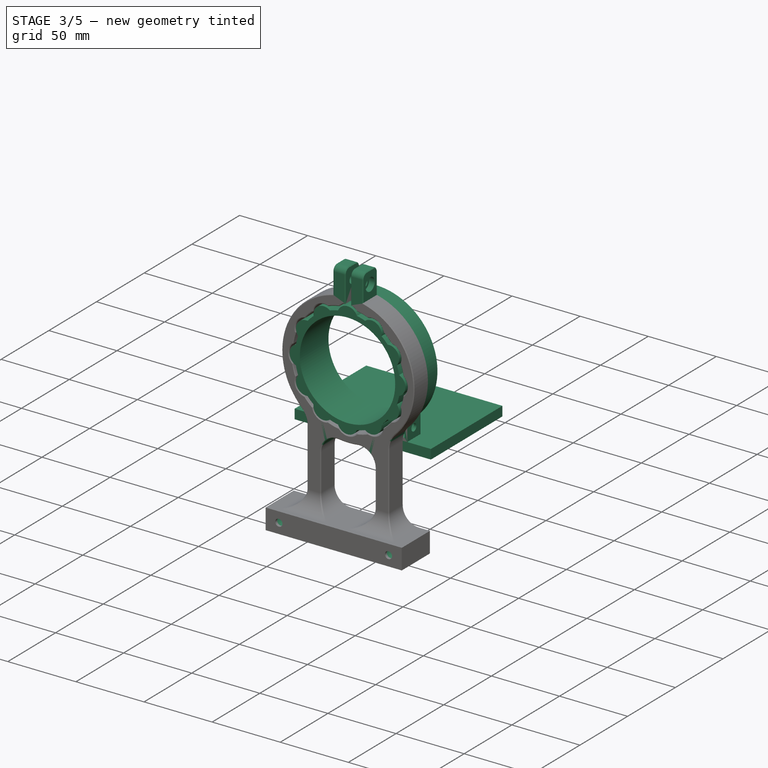
[diagram: stage 3 of 5 — iso view after this stage's code; geometry added in this stage tinted green]
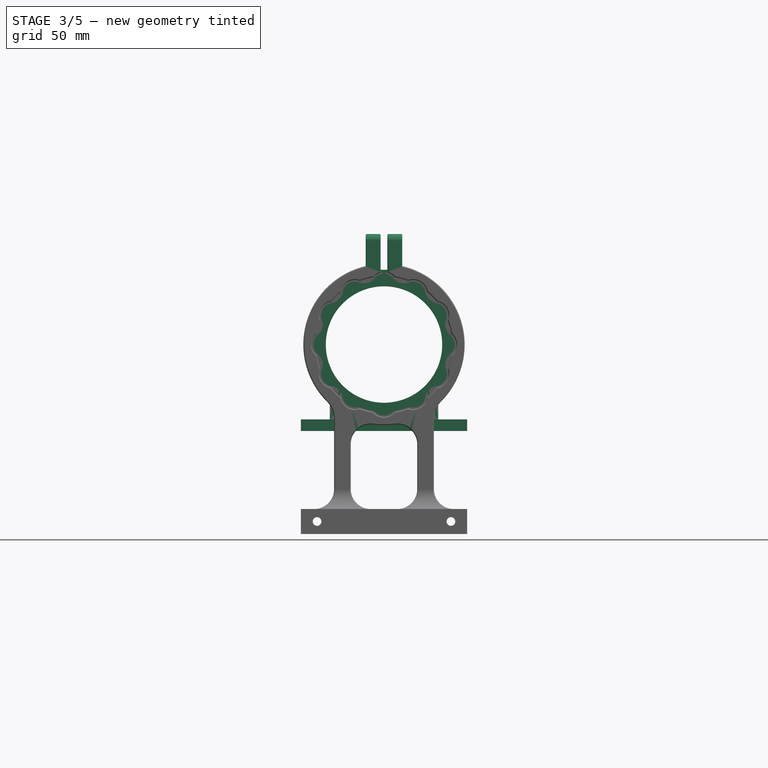
[diagram: stage 3 of 5 — front view after this stage's code; geometry added in this stage tinted green]
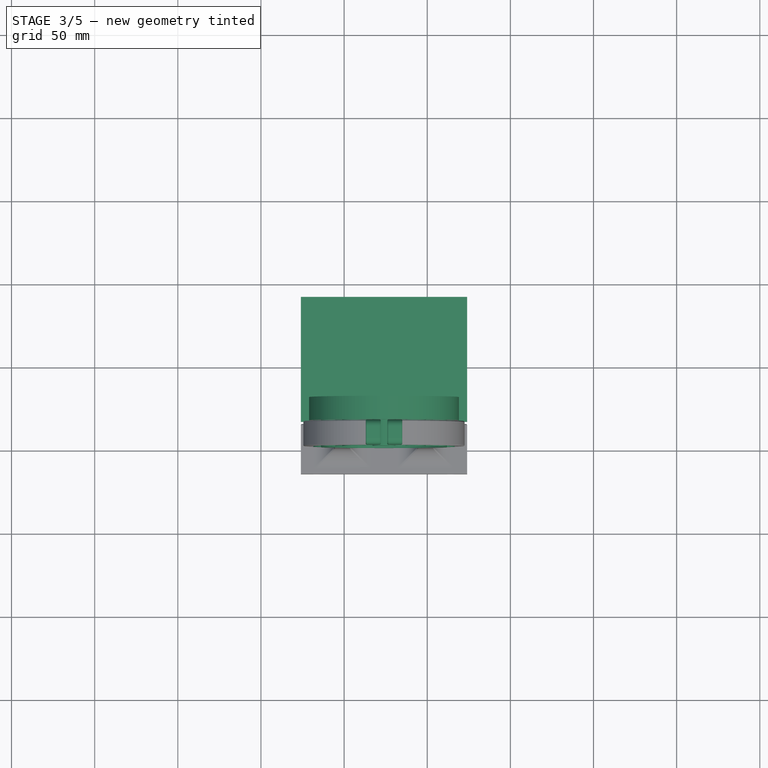
[diagram: stage 3 of 5 — top view after this stage's code; geometry added in this stage tinted green]
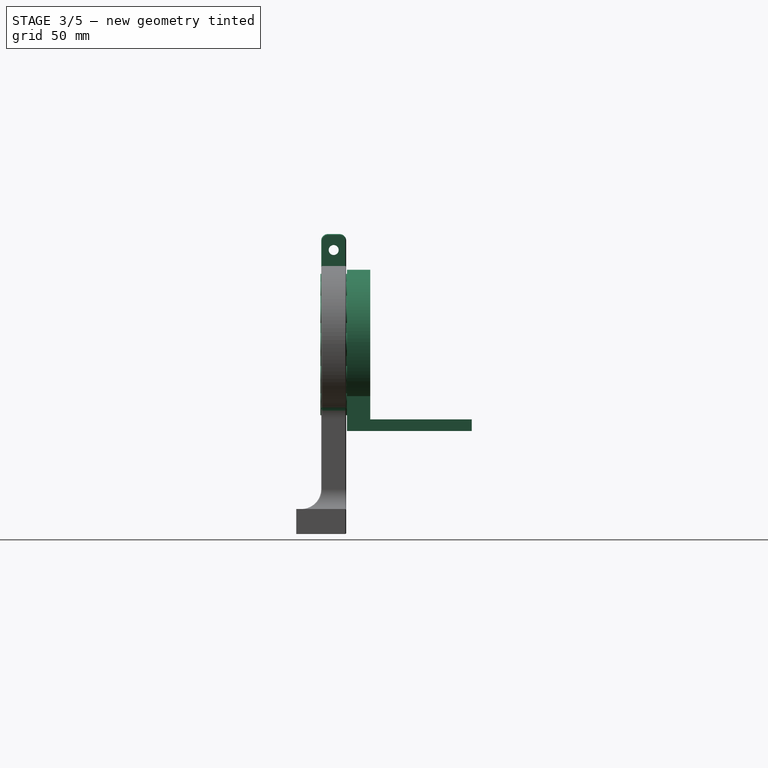
[diagram: stage 3 of 5 — right view after this stage's code; geometry added in this stage tinted green]
FEATURE [Sketcher::SketchObject] Sketch036
  ExternalGeometry = -> [Pocket024]
  FullyConstrained = true
  MapMode = 5
  Placement = pos=(248,266,2.4e-15) rot=(0,0.707107,0.707107;3.14159rad)
  Support = -> [Pocket024]
  sketch-geometry (11):
    g0: LineSegment StartX=113 StartY=180.375 StartZ=0 EndX=122 EndY=180.375 EndZ=0
    g1: LineSegment StartX=122 StartY=180.375 StartZ=0 EndX=122 EndY=162.375 EndZ=0
    g2: LineSegment StartX=113 StartY=161.153 StartZ=0 EndX=113 EndY=180.375 EndZ=0
    g3: LineSegment StartX=135 StartY=180.375 StartZ=0 EndX=126 EndY=180.375 EndZ=0
    g4: LineSegment StartX=126 StartY=180.375 StartZ=0 EndX=126 EndY=162.375 EndZ=0
    g5: LineSegment StartX=135 StartY=161.153 StartZ=0 EndX=135 EndY=180.375 EndZ=0
    g6: LineSegment StartX=113 StartY=180.375 StartZ=0 EndX=135 EndY=180.375 EndZ=0
    g7: LineSegment StartX=113 StartY=161.153 StartZ=0 EndX=122 EndY=161.153 EndZ=0
    g8: LineSegment StartX=122 StartY=161.153 StartZ=0 EndX=122 EndY=162.375 EndZ=0
    g9: LineSegment StartX=135 StartY=161.153 StartZ=0 EndX=126 EndY=161.153 EndZ=0
    g10: LineSegment StartX=126 StartY=161.153 StartZ=0 EndX=126 EndY=162.375 EndZ=0
  constraints (30):
    c: Coincident(g0,g1)
    c: Coincident(g2,g0)
    c: Horizontal(g0)
    c: Vertical(g1)
    c: Vertical(g2)
    c: Coincident(g1,g-5)
    c: Coincident(g3,g4)
    c: Coincident(g5,g3)
    c: Horizontal(g3)
    c: Vertical(g4)
    c: Vertical(g5)
    c: Coincident(g4,g-6)
    c: Coincident(g6,g0)
    c: Coincident(g6,g3)
    c: Horizontal(g6)
    c: Distance(g6) = 22
    c: Equal(g0,g3)
    c: PointOnObject(g2,g-5)
    c: PointOnObject(g5,g-6)
    c: Distance(g1) = 18
    c: Coincident(g7,g2)
    c: PointOnObject(g7,g-3)
    c: Horizontal(g7)
    c: Coincident(g8,g7)
    c: Coincident(g8,g1)
    c: Coincident(g9,g5)
    c: PointOnObject(g9,g-4)
    c: Horizontal(g9)
    c: Coincident(g10,g9)
    c: Coincident(g10,g4)
FEATURE [PartDesign::Pad] Pad010
  BaseFeature = -> Pocket024
  Direction = (-1.1e-15,1,2e-16)
  Length = 10
  Length2 = 10
  Placement = pos=(248,180,0) rot=(0,0,1;3.14159rad)
  Profile = -> Sketch036
  ReferenceAxis = -> Sketch036 [N_Axis]
  Refine = true
  Type = 3
  UpToFace = -> Pocket024 [Face49]
FEATURE [Sketcher::SketchObject] Sketch037
  ExternalGeometry = -> [Pad010]
  FullyConstrained = true
  MapMode = 5
  Placement = pos=(135,180,0) rot=(0.57735,0.57735,0.57735;2.0944rad)
  Support = -> [Pad010]
  sketch-geometry (1):
    g0: Circle CenterX=78.5 CenterY=170.764 CenterZ=0 NormalX=0 NormalY=0 NormalZ=1 AngleXU=0 Radius=3
  constraints (2):
    c: Diameter(g0) = 6
    c: Symmetric(g-4,g-3,g0)
FEATURE [PartDesign::Pocket] Pocket025
  BaseFeature = -> Pad010
  Direction = (-1,-1e-15,1e-16)
  Length = 100
  Length2 = 5
  Placement = pos=(248,180,0) rot=(0,0,1;3.14159rad)
  Profile = -> Sketch037
  ReferenceAxis = -> Sketch037 [N_Axis]
  Type = 0
FEATURE [Sketcher::SketchObject] Sketch038
  ExternalGeometry = -> [Pocket025]
  FullyConstrained = true
  MapMode = 5
  Placement = pos=(135,180,0) rot=(0.57735,0.57735,0.57735;2.0944rad)
  Support = -> [Pocket025]
  sketch-geometry (1):
    g0: Circle CenterX=78.5 CenterY=170.764 CenterZ=0 NormalX=0 NormalY=0 NormalZ=1 AngleXU=0 Radius=4.75
  constraints (2):
    c: Coincident(g0,g-3)
    c: Diameter(g0) = 9.5
FEATURE [PartDesign::Pocket] Pocket026
  BaseFeature = -> Pocket025
  Direction = (-1,-1.3e-15,0)
  Length = 4
  Length2 = 5
  Placement = pos=(248,180,0) rot=(0,0,1;3.14159rad)
  Profile = -> Sketch038
  ReferenceAxis = -> Sketch038 [N_Axis]
  Type = 0
FEATURE [Sketcher::SketchObject] Sketch073
  ExternalGeometry = -> [Pocket026]
  FullyConstrained = true
  MapMode = 5
  Placement = pos=(248,266,3.62e-14) rot=(0,0.707107,0.707107;3.14159rad)
  Support = -> [Pocket026]
  sketch-geometry (12):
    g0: ArcOfCircle CenterX=79 CenterY=69.1143 CenterZ=0 NormalX=0 NormalY=0 NormalZ=1 AngleXU=0 Radius=15 StartAngle=0 EndAngle=0.783197
    g1: ArcOfCircle CenterX=169 CenterY=69.1143 CenterZ=0 NormalX=0 NormalY=0 NormalZ=1 AngleXU=0 Radius=15 StartAngle=2.3584 EndAngle=3.14159
    g2: ArcOfCircle CenterX=132 CenterY=53.9479 CenterZ=0 NormalX=0 NormalY=0 NormalZ=1 AngleXU=0 Radius=12 StartAngle=-9e-16 EndAngle=1.70342
    g3: ArcOfCircle CenterX=116 CenterY=53.9479 CenterZ=0 NormalX=0 NormalY=0 NormalZ=1 AngleXU=0 Radius=12 StartAngle=1.43818 EndAngle=3.14159
    g4: LineSegment StartX=89.6299 StartY=79.6975 StartZ=0 EndX=94 EndY=79.6975 EndZ=0
    g5: LineSegment StartX=94 StartY=79.6975 StartZ=0 EndX=94 EndY=69.1143 EndZ=0
    g6: LineSegment StartX=104 StartY=53.9479 StartZ=0 EndX=104 EndY=69.7323 EndZ=0
    g7: LineSegment StartX=104 StartY=69.7323 StartZ=0 EndX=144 EndY=69.7323 EndZ=0
    g8: LineSegment StartX=144 StartY=69.7323 StartZ=0 EndX=144 EndY=53.9479 EndZ=0
    g9: LineSegment StartX=130.413 StartY=65.8425 StartZ=0 EndX=117.587 EndY=65.8425 EndZ=0
    g10: LineSegment StartX=158.37 StartY=79.6975 StartZ=0 EndX=154 EndY=79.6975 EndZ=0
    g11: LineSegment StartX=154 StartY=79.6975 StartZ=0 EndX=154 EndY=69.1143 EndZ=0
  constraints (31):
    c: PointOnObject(g1,g-6)
    c: Tangent(g1,g-6)
    c: Tangent(g1,g-7) = -1.5708
    c: Tangent(g0,g-8) = 1.5708
    c: Tangent(g0,g-9) = 1.5708
    c: Coincident(g4,g0)
    c: Horizontal(g4)
    c: Coincident(g5,g4)
    c: Coincident(g5,g0)
    c: Vertical(g5)
    c: Coincident(g6,g-4)
    c: Coincident(g7,g6)
    c: Coincident(g7,g-5)
    c: Coincident(g8,g7)
    c: Coincident(g10,g1)
    c: Horizontal(g10)
    c: Coincident(g11,g10)
    c: Coincident(g11,g1)
    c: Vertical(g11)
    c: Equal(g0,g1)
    c: Radius(g1) = 15
    c: PointOnObject(g2,g-5)
    c: PointOnObject(g3,g-4)
    c: Coincident(g3,g9)
    c: Coincident(g9,g2)
    c: Equal(g3,g2)
    c: Equal(g3,g-10)
    c: Tangent(g8,g2) = 1.5708
    c: Tangent(g6,g3) = 1.5708
    c: Tangent(g3,g-3) = 1.5708
    c: Tangent(g2,g-3) = 1.5708
FEATURE [PartDesign::Pad] Pad025
  BaseFeature = -> Pocket026
  Direction = (-1.4e-15,1,4e-16)
  Length = 10
  Length2 = 10
  Placement = pos=(248,180,0) rot=(0,0,1;3.14159rad)
  Profile = -> Sketch073
  ReferenceAxis = -> Sketch073 [N_Axis]
  Refine = true
  Type = 3
  UpToFace = -> Pocket026 [Face53]
FEATURE [PartDesign::ShapeBinder] ShapeBinder006
  Placement = pos=(248,180,0) rot=(0,0,1;3.14159rad)
  Support = -> [Pad025]
  TraceSupport = false
FEATURE [Sketcher::SketchObject] Sketch039
  ExternalGeometry = -> [ShapeBinder006]
  FullyConstrained = true
  MapMode = 5
  Placement = pos=(248,266,2.14e-14) rot=(0,0.707107,0.707107;3.14159rad)
  Support = -> [ShapeBinder006]
  sketch-geometry (32):
    g0: Circle CenterX=124 CenterY=113.917 CenterZ=0 NormalX=0 NormalY=0 NormalZ=1 AngleXU=0 Radius=38.5
    g1: ArcOfCircle CenterX=124 CenterY=113.917 CenterZ=0 NormalX=0 NormalY=0 NormalZ=1 AngleXU=0 Radius=38.5 StartAngle=3.84614 EndAngle=4.00784
    g2: ArcOfCircle CenterX=124 CenterY=113.917 CenterZ=0 NormalX=0 NormalY=0 NormalZ=1 AngleXU=0 Radius=38.5 StartAngle=4.36974 EndAngle=4.53144
    g3: ArcOfCircle CenterX=124 CenterY=113.917 CenterZ=0 NormalX=0 NormalY=0 NormalZ=1 AngleXU=0 Radius=38.5 StartAngle=4.89334 EndAngle=5.05504
    g4: ArcOfCircle CenterX=124 CenterY=113.917 CenterZ=0 NormalX=0 NormalY=0 NormalZ=1 AngleXU=0 Radius=38.5 StartAngle=5.41694 EndAngle=5.57864
    g5: ArcOfCircle CenterX=124 CenterY=113.917 CenterZ=0 NormalX=0 NormalY=0 NormalZ=1 AngleXU=0 Radius=38.5 StartAngle=5.94053 EndAngle=6.10224
    g6: ArcOfCircle CenterX=124 CenterY=113.917 CenterZ=0 NormalX=0 NormalY=0 NormalZ=1 AngleXU=0 Radius=38.5 StartAngle=0.180948 EndAngle=0.34265
    g7: ArcOfCircle CenterX=124 CenterY=113.917 CenterZ=0 NormalX=0 NormalY=0 NormalZ=1 AngleXU=0 Radius=38.5 StartAngle=0.704547 EndAngle=0.866249
    g8: ArcOfCircle CenterX=124 CenterY=113.917 CenterZ=0 NormalX=0 NormalY=0 NormalZ=1 AngleXU=0 Radius=38.5 StartAngle=1.22815 EndAngle=1.38985
    g9: ArcOfCircle CenterX=124 CenterY=113.917 CenterZ=0 NormalX=0 NormalY=0 NormalZ=1 AngleXU=0 Radius=38.5 StartAngle=1.75174 EndAngle=1.91345
    g10: ArcOfCircle CenterX=124 CenterY=113.917 CenterZ=0 NormalX=0 NormalY=0 NormalZ=1 AngleXU=0 Radius=38.5 StartAngle=2.27534 EndAngle=2.43705
    g11: ArcOfCircle CenterX=124 CenterY=113.917 CenterZ=0 NormalX=0 NormalY=0 NormalZ=1 AngleXU=0 Radius=38.5 StartAngle=2.79894 EndAngle=2.96064
    g12: ArcOfCircle CenterX=124 CenterY=113.917 CenterZ=0 NormalX=0 NormalY=0 NormalZ=1 AngleXU=0 Radius=38.5 StartAngle=3.32254 EndAngle=3.48424
    g13: ArcOfCircle CenterX=93.6891 CenterY=96.4166 CenterZ=0 NormalX=0 NormalY=0 NormalZ=1 AngleXU=0 Radius=7.5 StartAngle=2.48728 EndAngle=4.8431
    g14: ArcOfCircle CenterX=106.5 CenterY=83.6057 CenterZ=0 NormalX=0 NormalY=0 NormalZ=1 AngleXU=0 Radius=7.5 StartAngle=3.01088 EndAngle=5.3667
    g15: ArcOfCircle CenterX=124 CenterY=78.9166 CenterZ=0 NormalX=0 NormalY=0 NormalZ=1 AngleXU=0 Radius=7.5 StartAngle=3.53448 EndAngle=5.8903
    g16: ArcOfCircle CenterX=141.5 CenterY=83.6057 CenterZ=0 NormalX=0 NormalY=0 NormalZ=1 AngleXU=0 Radius=7.5 StartAngle=4.05808 EndAngle=6.4139
    g17: ArcOfCircle CenterX=154.311 CenterY=96.4166 CenterZ=0 NormalX=0 NormalY=0 NormalZ=1 AngleXU=0 Radius=7.5 StartAngle=4.58168 EndAngle=6.9375
    g18: ArcOfCircle CenterX=159 CenterY=113.917 CenterZ=0 NormalX=0 NormalY=0 NormalZ=1 AngleXU=0 Radius=7.5 StartAngle=5.10528 EndAngle=7.46109
    g19: ArcOfCircle CenterX=154.311 CenterY=131.417 CenterZ=0 NormalX=0 NormalY=0 NormalZ=1 AngleXU=0 Radius=7.5 StartAngle=5.62887 EndAngle=7.98469
    g20: ArcOfCircle CenterX=141.5 CenterY=144.227 CenterZ=0 NormalX=0 NormalY=0 NormalZ=1 AngleXU=0 Radius=7.5 StartAngle=6.15247 EndAngle=8.50829
    g21: ArcOfCircle CenterX=124 CenterY=148.917 CenterZ=0 NormalX=0 NormalY=0 NormalZ=1 AngleXU=0 Radius=7.5 StartAngle=0.392887 EndAngle=2.74871
    g22: ArcOfCircle CenterX=106.5 CenterY=144.227 CenterZ=0 NormalX=0 NormalY=0 NormalZ=1 AngleXU=0 Radius=7.5 StartAngle=0.916486 EndAngle=3.2723
    g23: ArcOfCircle CenterX=93.6891 CenterY=131.417 CenterZ=0 NormalX=0 NormalY=0 NormalZ=1 AngleXU=0 Radius=7.5 StartAngle=1.44008 EndAngle=3.7959
    g24: ArcOfCircle CenterX=89 CenterY=113.917 CenterZ=0 NormalX=0 NormalY=0 NormalZ=1 AngleXU=0 Radius=7.5 StartAngle=1.96368 EndAngle=4.3195
    g25: Circle CenterX=124 CenterY=113.917 CenterZ=0 NormalX=0 NormalY=0 NormalZ=1 AngleXU=0 Radius=35
    g26: LineSegment StartX=106.5 StartY=144.227 StartZ=0 EndX=141.5 EndY=83.6057 EndZ=0
    g27: LineSegment StartX=124 StartY=148.917 StartZ=0 EndX=124 EndY=78.9166 EndZ=0
    g28: LineSegment StartX=89 StartY=113.917 StartZ=0 EndX=159 EndY=113.917 EndZ=0
    g29: LineSegment StartX=141.5 StartY=144.227 StartZ=0 EndX=106.5 EndY=83.6057 EndZ=0
    g30: LineSegment StartX=93.6891 StartY=96.4166 StartZ=0 EndX=154.311 EndY=131.417 EndZ=0
    g31: LineSegment StartX=93.6891 StartY=131.417 StartZ=0 EndX=154.311 EndY=96.4166 EndZ=0
  constraints (92):
    c: Diameter(g0) = 77
    c: Coincident(g1,g0)
    c: PointOnObject(g1,g0)
    c: Coincident(g2,g1)
    c: PointOnObject(g2,g0)
    c: Coincident(g3,g1)
    c: PointOnObject(g3,g0)
    c: Coincident(g4,g1)
    c: PointOnObject(g4,g0)
    c: Coincident(g5,g1)
    c: PointOnObject(g5,g0)
    c: Coincident(g6,g1)
    c: PointOnObject(g6,g0)
    c: Coincident(g7,g1)
    c: PointOnObject(g7,g0)
    c: Coincident(g8,g1)
    c: PointOnObject(g8,g0)
    c: Coincident(g9,g1)
    c: PointOnObject(g9,g0)
    c: Coincident(g10,g1)
    c: PointOnObject(g10,g0)
    c: Coincident(g11,g1)
    c: PointOnObject(g11,g0)
    c: Coincident(g12,g1)
    c: PointOnObject(g12,g0)
    c: Coincident(g13,g12)
    c: Coincident(g13,g1)
    c: Coincident(g14,g1)
    c: Coincident(g14,g2)
    c: Coincident(g15,g2)
    c: Coincident(g15,g3)
    c: Coincident(g16,g3)
    c: Coincident(g16,g4)
    c: Coincident(g17,g4)
    c: Coincident(g17,g5)
    c: Coincident(g18,g6)
    c: Coincident(g18,g5)
    c: Coincident(g19,g6)
    c: Coincident(g19,g7)
    c: Coincident(g20,g7)
    c: Coincident(g20,g8)
    c: Coincident(g21,g9)
    c: Coincident(g21,g8)
    c: Coincident(g22,g9)
    c: Coincident(g22,g10)
    c: Coincident(g23,g10)
    c: Coincident(g23,g11)
    c: Coincident(g24,g11)
    c: Coincident(g24,g12)
    c: Equal(g24,g13)
    c: Equal(g13,g14)
    c: Equal(g14,g15)
    c: Equal(g15,g16)
    c: Equal(g16,g17)
    c: Equal(g17,g18)
    c: Equal(g19,g18)
    c: Equal(g19,g20)
    c: Equal(g20,g21)
    c: Equal(g21,g22)
    c: Equal(g22,g23)
    c: Diameter(g22) = 15
    c: Coincident(g25,g1)
    c: Diameter(g25) = 70
    c: PointOnObject(g24,g25)
    c: Coincident(g26,g22)
    c: Coincident(g26,g16)
    c: Coincident(g27,g21)
    c: Coincident(g27,g15)
    c: Vertical(g27)
    c: Coincident(g28,g24)
    c: Coincident(g28,g18)
    c: Horizontal(g28)
    c: Coincident(g29,g20)
    c: Coincident(g29,g14)
    c: Coincident(g30,g13)
    c: Coincident(g30,g19)
    c: Symmetric(g21,g15,g1)
    c: Symmetric(g18,g24,g1)
    c: Symmetric(g22,g16,g1)
    c: Symmetric(g14,g20,g1)
    c: Symmetric(g13,g19,g1)
    c: Coincident(g31,g23)
    c: Coincident(g31,g17)
    c: Symmetric(g23,g17,g1)
    c: Equal(g27,g26)
    c: Equal(g26,g31)
    c: Equal(g28,g30)
    c: Coincident(g-4,g20)
    c: Coincident(g-3,g1)
    c: Perpendicular(g31,g29)
    c: Perpendicular(g26,g30)
    c: Coincident(g22,g-5)
FEATURE [PartDesign::Pad] Pad011
  Direction = (-1.5e-15,1,2e-16)
  Length = 10
  Length2 = 10
  Offset = 0.5
  Placement = pos=(248,180,0) rot=(0,0,1;3.14159rad)
  Profile = -> Sketch039
  ReferenceAxis = -> Sketch039 [N_Axis]
  Refine = true
  Reversed = true
  Type = 3
  UpToFace = -> Pad025 [Face61]
FEATURE [PartDesign::Pad] Pad012
  BaseFeature = -> Pad011
  Direction = (-1.7e-15,1,1e-16)
  Length = 0.5
  Length2 = 10
  Placement = pos=(248,180,0) rot=(0,0,1;3.14159rad)
  Profile = -> Pad011 [Face2]
  Refine = true
  Type = 0
FEATURE [Sketcher::SketchObject] Sketch040
  ExternalGeometry = -> [Pad012]
  FullyConstrained = true
  MapMode = 5
  Placement = pos=(248,266.5,8.7e-15) rot=(0,0.707107,0.707107;3.14159rad)
  Support = -> [Pad012]
  sketch-geometry (6):
    g0: Circle CenterX=124 CenterY=113.917 CenterZ=0 NormalX=0 NormalY=0 NormalZ=1 AngleXU=0 Radius=35
    g1: LineSegment StartX=91.381 StartY=82.9166 StartZ=0 EndX=91.381 EndY=68.9166 EndZ=0
    g2: LineSegment StartX=91.381 StartY=68.9166 StartZ=0 EndX=156.619 EndY=68.9166 EndZ=0
    g3: LineSegment StartX=156.619 StartY=68.9166 StartZ=0 EndX=156.619 EndY=82.9166 EndZ=0
    g4: ArcOfCircle CenterX=124 CenterY=113.917 CenterZ=0 NormalX=0 NormalY=0 NormalZ=1 AngleXU=0 Radius=45 StartAngle=5.52323 EndAngle=10.1847
    g5: ArcOfCircle CenterX=124 CenterY=113.917 CenterZ=0 NormalX=0 NormalY=0 NormalZ=1 AngleXU=0 Radius=45 StartAngle=3.90155 EndAngle=5.52323
  constraints (17):
    c: Coincident(g0,g-3)
    c: Equal(g-3,g0)
    c: Vertical(g1)
    c: Coincident(g2,g1)
    c: Horizontal(g2)
    c: Coincident(g3,g2)
    c: Vertical(g3)
    c: Distance(g3) = 14
    c: Equal(g1,g3)
    c: Coincident(g4,g0)
    c: Coincident(g4,g1)
    c: Coincident(g4,g3)
    c: Diameter(g4) = 90
    c: Coincident(g5,g0)
    c: Coincident(g5,g1)
    c: Tangent(g2,g5)
    c: PointOnObject(g5,g3)
FEATURE [PartDesign::Pad] Pad013
  BaseFeature = -> Pad012
  Direction = (-1.8e-15,1,2e-16)
  Length = 14
  Length2 = 10
  Placement = pos=(248,180,0) rot=(0,0,1;3.14159rad)
  Profile = -> Sketch040
  ReferenceAxis = -> Sketch040 [N_Axis]
  Refine = true
  Type = 0
FEATURE [Sketcher::SketchObject] Sketch041
  ExternalGeometry = -> [Pad013]
  FullyConstrained = true
  MapMode = 5
  Placement = pos=(156.619,180,0) rot=(0.57735,0.57735,0.57735;2.0944rad)
  Support = -> [Pad013]
  sketch-geometry (11):
    g0: LineSegment StartX=96.2135 StartY=80.6166 StartZ=0 EndX=86.5 EndY=80.6166 EndZ=0
    g1: LineSegment StartX=96.2135 StartY=71.2166 StartZ=0 EndX=96.2135 EndY=80.6166 EndZ=0
    g2: LineSegment StartX=86.5 StartY=71.2166 StartZ=0 EndX=86.5 EndY=80.6166 EndZ=0
    g3: LineSegment StartX=88.0729 StartY=75.9166 StartZ=0 EndX=90.7865 EndY=71.2166 EndZ=0
    g4: LineSegment StartX=90.7865 StartY=71.2166 StartZ=0 EndX=96.2135 EndY=71.2166 EndZ=0
    g5: LineSegment StartX=96.2135 StartY=71.2166 StartZ=0 EndX=98.9271 EndY=75.9166 EndZ=0
    g6: LineSegment StartX=98.9271 StartY=75.9166 StartZ=0 EndX=96.2135 EndY=80.6166 EndZ=0
    g7: LineSegment StartX=96.2135 StartY=80.6166 StartZ=0 EndX=90.7865 EndY=80.6166 EndZ=0
    g8: LineSegment StartX=90.7865 StartY=80.6166 StartZ=0 EndX=88.0729 EndY=75.9166 EndZ=0
    g9: Circle CenterX=93.5 CenterY=75.9166 CenterZ=0 NormalX=0 NormalY=0 NormalZ=1 AngleXU=0 Radius=5.42709
    g10: LineSegment StartX=86.5 StartY=71.2166 StartZ=0 EndX=96.2135 EndY=71.2166 EndZ=0
  constraints (26):
    c: Horizontal(g0)
    c: Coincident(g1,g0)
    c: Distance(g1) = 9.4
    c: PointOnObject(g2,g-3)
    c: PointOnObject(g0,g-3)
    c: Coincident(g2,g0)
    c: Coincident(g3,g4)
    c: Coincident(g4,g5)
    c: Coincident(g5,g6)
    c: Coincident(g6,g7)
    c: Coincident(g7,g8)
    c: Coincident(g8,g3)
    c: Equal(g3, g4-g8) x5
    c: PointOnObject(g3,g9)
    c: PointOnObject(g4,g9)
    c: PointOnObject(g5,g9)
    c: PointOnObject(g6,g9)
    c: PointOnObject(g7,g9)
    c: PointOnObject(g8,g9)
    c: Coincident(g0,g6)
    c: Coincident(g1,g4)
    c: Vertical(g1)
    c: Coincident(g10,g2)
    c: Coincident(g10,g1)
    c: Horizontal(g10)
    c: Symmetric(g-3,g-4,g9)
FEATURE [PartDesign::Pocket] Pocket027
  BaseFeature = -> Pad013
  Direction = (-1,-1.9e-15,1e-16)
  Length = 5.2
  Length2 = -2
  Placement = pos=(248,180,0) rot=(0,0,1;3.14159rad)
  Profile = -> Sketch041
  ReferenceAxis = -> Sketch041 [N_Axis]
  Type = 4
FEATURE [Sketcher::SketchObject] Sketch042
  ExternalGeometry = -> [Pocket027]
  FullyConstrained = true
  MapMode = 5
  Placement = pos=(91.381,180,0) rot=(0.57735,-0.57735,-0.57735;2.0944rad)
  Support = -> [Pocket027]
  sketch-geometry (5):
    g0: LineSegment StartX=-86.5 StartY=80.6166 StartZ=0 EndX=-96.2135 EndY=80.6166 EndZ=0
    g1: LineSegment StartX=-96.2135 StartY=71.2166 StartZ=0 EndX=-86.5 EndY=71.2166 EndZ=0
    g2: LineSegment StartX=-96.2135 StartY=71.2166 StartZ=0 EndX=-98.9271 EndY=75.9166 EndZ=0
    g3: LineSegment StartX=-86.5 StartY=80.6166 StartZ=0 EndX=-86.5 EndY=71.2166 EndZ=0
    g4: LineSegment StartX=-98.9271 StartY=75.9166 StartZ=0 EndX=-96.2135 EndY=80.6166 EndZ=0
  constraints (10):
    c: Coincident(g2,g1)
    c: Coincident(g3,g0)
    c: Coincident(g3,g1)
    c: Coincident(g4,g2)
    c: Coincident(g4,g0)
    c: Coincident(g-4,g2)
    c: Coincident(g0,g-4)
    c: Coincident(g1,g-3)
    c: Coincident(g1,g-5)
    c: Coincident(g0,g-5)
FEATURE [PartDesign::Pocket] Pocket028
  BaseFeature = -> Pocket027
  Direction = (1,1.9e-15,1e-16)
  Length = 5.2
  Length2 = -2
  Placement = pos=(248,180,0) rot=(0,0,1;3.14159rad)
  Profile = -> Sketch042
  ReferenceAxis = -> Sketch042 [N_Axis]
  Type = 4
FEATURE [Sketcher::SketchObject] Sketch043
  ExternalGeometry = -> [Pocket028]
  FullyConstrained = true
  MapMode = 5
  Placement = pos=(91.381,180,0) rot=(0.57735,-0.57735,-0.57735;2.0944rad)
  Support = -> [Pocket028]
  sketch-geometry (1):
    g0: Circle CenterX=-93.5 CenterY=75.9166 CenterZ=0 NormalX=0 NormalY=0 NormalZ=1 AngleXU=0 Radius=2.6
  constraints (2):
    c: Diameter(g0) = 5.2
    c: Symmetric(g-3,g-4,g0)
FEATURE [PartDesign::Pocket] Pocket029
  BaseFeature = -> Pocket028
  Direction = (1,1.9e-15,1e-16)
  Length = 13
  Length2 = 5
  Placement = pos=(248,180,0) rot=(0,0,1;3.14159rad)
  Profile = -> Sketch043
  ReferenceAxis = -> Sketch043 [N_Axis]
  Type = 0
FEATURE [Sketcher::SketchObject] Sketch044
  ExternalGeometry = -> [Pocket029]
  FullyConstrained = true
  MapMode = 5
  Placement = pos=(156.619,180,0) rot=(0.57735,0.57735,0.57735;2.0944rad)
  Support = -> [Pocket029]
  sketch-geometry (1):
    g0: Circle CenterX=93.5 CenterY=75.9166 CenterZ=0 NormalX=0 NormalY=0 NormalZ=1 AngleXU=0 Radius=2.6
  constraints (2):
    c: Diameter(g0) = 5.2
    c: Symmetric(g-3,g-4,g0)
FEATURE [PartDesign::Pocket] Pocket030
  BaseFeature = -> Pocket029
  Direction = (-1,-2.2e-15,0)
  Length = 13
  Length2 = 5
  Placement = pos=(248,180,0) rot=(0,0,1;3.14159rad)
  Profile = -> Sketch044
  ReferenceAxis = -> Sketch044 [N_Axis]
  Type = 0
FEATURE [PartDesign::ShapeBinder] ShapeBinder007
  Placement = pos=(248,180,0) rot=(0,0,1;3.14159rad)
  Support = -> [Pocket030]
  TraceSupport = false
FEATURE [Sketcher::SketchObject] Sketch045
  ExternalGeometry = -> [ShapeBinder007]
  FullyConstrained = true
  MapMode = 5
  Placement = pos=(248,180,68.9166) rot=(0,1,0;3.14159rad)
  Support = -> [ShapeBinder007]
  sketch-geometry (4):
    g0: LineSegment StartX=91.381 StartY=86.5 StartZ=0 EndX=156.619 EndY=86.5 EndZ=0
    g1: LineSegment StartX=156.619 StartY=86.5 StartZ=0 EndX=156.619 EndY=161.5 EndZ=0
    g2: LineSegment StartX=156.619 StartY=161.5 StartZ=0 EndX=91.381 EndY=161.5 EndZ=0
    g3: LineSegment StartX=91.381 StartY=161.5 StartZ=0 EndX=91.381 EndY=86.5 EndZ=0
  constraints (10):
    c: Coincident(g0,g1)
    c: Coincident(g1,g2)
    c: Coincident(g2,g3)
    c: Coincident(g3,g0)
    c: Horizontal(g2)
    c: Vertical(g1)
    c: Vertical(g3)
    c: Coincident(g0,g-3)
    c: Coincident(g0,g-3)
    c: DistanceY(g1,g1) = 75
FEATURE [PartDesign::Pad] Pad014
  Direction = (0,2e-16,-1)
  Length = 7
  Length2 = 10
  Placement = pos=(248,180,0) rot=(0,0,1;3.14159rad)
  Profile = -> Sketch045
  ReferenceAxis = -> Sketch045 [N_Axis]
  Type = 0
FEATURE [Sketcher::SketchObject] Sketch046
  ExternalGeometry = -> [Pad014]
  FullyConstrained = true
  MapMode = 5
  Placement = pos=(248,180,61.9166) rot=(0,1,0;3.14159rad)
  Support = -> [Pad014]
  sketch-geometry (6):
    g0: LineSegment StartX=74 StartY=161.5 StartZ=0 EndX=174 EndY=161.5 EndZ=0
    g1: LineSegment StartX=174 StartY=161.5 StartZ=0 EndX=174 EndY=86.5 EndZ=0
    g2: LineSegment StartX=174 StartY=86.5 StartZ=0 EndX=74 EndY=86.5 EndZ=0
    g3: LineSegment StartX=74 StartY=86.5 StartZ=0 EndX=74 EndY=161.5 EndZ=0
    g4: LineSegment StartX=74 StartY=86.5 StartZ=0 EndX=91.381 EndY=161.5 EndZ=0
    g5: LineSegment StartX=156.619 StartY=161.5 StartZ=0 EndX=174 EndY=86.5 EndZ=0
  constraints (16):
    c: Coincident(g0,g1)
    c: Coincident(g1,g2)
    c: Coincident(g2,g3)
    c: Coincident(g3,g0)
    c: Horizontal(g0)
    c: Horizontal(g2)
    c: Vertical(g1)
    c: Vertical(g3)
    c: PointOnObject(g-3,g0)
    c: PointOnObject(g-4,g2)
    c: Distance(g0) = 100
    c: Coincident(g4,g2)
    c: Coincident(g4,g-3)
    c: Coincident(g5,g-3)
    c: Coincident(g5,g1)
    c: Equal(g4,g5)
FEATURE [PartDesign::Pad] Pad015
  BaseFeature = -> Pad014
  Direction = (0,4e-16,-1)
  Length = 10
  Length2 = 10
  Placement = pos=(248,180,0) rot=(0,0,1;3.14159rad)
  Profile = -> Sketch046
  ReferenceAxis = -> Sketch046 [N_Axis]
  Refine = true
  Type = 3
  UpToFace = -> Pad014 [Face5]
FEATURE [Sketcher::SketchObject] Sketch053
  ExternalGeometry = -> [Pocket030]
  FullyConstrained = true
  MapMode = 5
  Placement = pos=(248,180,68.9166) rot=(0,1,0;3.14159rad)
  Support = -> [Pocket030]
  sketch-geometry (11):
    g0: LineSegment StartX=128.7 StartY=96.2135 StartZ=0 EndX=124 EndY=98.9271 EndZ=0
    g1: LineSegment StartX=124 StartY=98.9271 StartZ=0 EndX=119.3 EndY=96.2135 EndZ=0
    g2: LineSegment StartX=119.3 StartY=96.2135 StartZ=0 EndX=119.3 EndY=90.7865 EndZ=0
    g3: LineSegment StartX=119.3 StartY=90.7865 StartZ=0 EndX=124 EndY=88.0729 EndZ=0
    g4: LineSegment StartX=124 StartY=88.0729 StartZ=0 EndX=128.7 EndY=90.7865 EndZ=0
    g5: LineSegment StartX=128.7 StartY=90.7865 StartZ=0 EndX=128.7 EndY=96.2135 EndZ=0
    g6: Circle CenterX=124 CenterY=93.5 CenterZ=0 NormalX=0 NormalY=0 NormalZ=1 AngleXU=0 Radius=5.42709
    g7: LineSegment StartX=119.3 StartY=90.7865 StartZ=0 EndX=128.7 EndY=90.7865 EndZ=0
    g8: LineSegment StartX=119.3 StartY=96.2135 StartZ=0 EndX=119.3 EndY=100.5 EndZ=0
    g9: LineSegment StartX=128.7 StartY=96.2135 StartZ=0 EndX=128.7 EndY=100.5 EndZ=0
    g10: LineSegment StartX=128.7 StartY=100.5 StartZ=0 EndX=119.3 EndY=100.5 EndZ=0
  constraints (26):
    c: Coincident(g0,g1)
    c: Coincident(g1,g2)
    c: Coincident(g2,g3)
    c: Coincident(g3,g4)
    c: Coincident(g4,g5)
    c: Coincident(g5,g0)
    c: Equal(g0, g1-g5) x5
    c: PointOnObject(g0,g6)
    c: PointOnObject(g1,g6)
    c: PointOnObject(g2,g6)
    c: PointOnObject(g3,g6)
    c: PointOnObject(g4,g6)
    c: PointOnObject(g5,g6)
    c: Vertical(g2)
    c: Coincident(g7,g2)
    c: Coincident(g7,g4)
    c: Distance(g7) = 9.4
    c: Symmetric(g-3,g-4,g6)
    c: Coincident(g8,g2)
    c: PointOnObject(g8,g-5)
    c: Vertical(g8)
    c: Coincident(g9,g5)
    c: PointOnObject(g9,g-5)
    c: Vertical(g9)
    c: Coincident(g10,g9)
    c: Coincident(g10,g8)
FEATURE [PartDesign::Pocket] Pocket035
  BaseFeature = -> Pocket030
  Direction = (0,-2e-16,1)
  Length = 5.2
  Length2 = -2
  Placement = pos=(248,180,0) rot=(0,0,1;3.14159rad)
  Profile = -> Sketch053
  ReferenceAxis = -> Sketch053 [N_Axis]
  Type = 4
FEATURE [Sketcher::SketchObject] Sketch054
  ExternalGeometry = -> [Pocket035]
  FullyConstrained = true
  MapMode = 5
  Placement = pos=(248,180,68.9166) rot=(0,1,0;3.14159rad)
  Support = -> [Pocket035]
  sketch-geometry (1):
    g0: Circle CenterX=124 CenterY=93.5 CenterZ=0 NormalX=0 NormalY=0 NormalZ=1 AngleXU=0 Radius=2.6
  constraints (2):
    c: Symmetric(g-3,g-4,g0)
    c: Diameter(g0) = 5.2
FEATURE [PartDesign::Pocket] Pocket036
  BaseFeature = -> Pocket035
  Direction = (0,-2e-16,1)
  Length = 0
  Length2 = 5
  Offset = 2.5
  Placement = pos=(248,180,0) rot=(0,0,1;3.14159rad)
  Profile = -> Sketch054
  ReferenceAxis = -> Sketch054 [N_Axis]
  Type = 3
  UpToFace = -> Pocket035 [Face50]
FEATURE [PartDesign::Body] Body006  label="Lumix G7 Mount"
  Group = -> [ShapeBinder007,Sketch045,Pad014,Sketch046,Pad015,Sketch047,Pocket031,Chamfer004,ShapeBinder008,Sketch048,Pad016,Sketch049,Pad017,Sketch050,Pocket032,ShapeBinder009,Sketch055,Pocket037,Sketch056,Pocket038,Chamfer016,Sketch061,Pad020,Sketch062,Pocket042,Chamfer017,Chamfer018,Sketch063,Pocket043,Sketch064,Pocket044,Sketch065,Pocket045,Pad021,Sketch066,Pocket046,Pad022,Chamfer019,Fillet008,Sketch067,+5 more]
  Origin = -> Origin006
  Tip = -> Pad024
FEATURE [Sketcher::SketchObject] Sketch074
  ExternalGeometry = -> [Pad025]
  FullyConstrained = true
  MapMode = 5
  Placement = pos=(135,180,0) rot=(0.57735,0.57735,0.57735;2.0944rad)
  Support = -> [Pad025]
  sketch-geometry (6):
    g0: LineSegment StartX=71 StartY=180.375 StartZ=0 EndX=71 EndY=176.375 EndZ=0
    g1: LineSegment StartX=71 StartY=180.375 StartZ=0 EndX=75 EndY=180.375 EndZ=0
    g2: LineSegment StartX=86 StartY=180.375 StartZ=0 EndX=82 EndY=180.375 EndZ=0
    g3: LineSegment StartX=86 StartY=180.375 StartZ=0 EndX=86 EndY=176.375 EndZ=0
    g4: ArcOfCircle CenterX=75 CenterY=176.375 CenterZ=0 NormalX=0 NormalY=0 NormalZ=1 AngleXU=0 Radius=4 StartAngle=1.5708 EndAngle=3.14159
    g5: ArcOfCircle CenterX=82 CenterY=176.375 CenterZ=0 NormalX=0 NormalY=0 NormalZ=1 AngleXU=0 Radius=4 StartAngle=4.57063e-11 EndAngle=1.5708
  constraints (14):
    c: Coincident(g0,g-3)
    c: Vertical(g0)
    c: Coincident(g1,g0)
    c: Horizontal(g1)
    c: Coincident(g2,g-3)
    c: Horizontal(g2)
    c: Coincident(g3,g2)
    c: Vertical(g3)
    c: Tangent(g5,g2) = -1.5708
    c: Tangent(g5,g3) = 1.5708
    c: Tangent(g4,g0) = -1.5708
    c: Tangent(g4,g1) = 1.5708
    c: Equal(g4,g5)
    c: Radius(g4) = 4
FEATURE [PartDesign::Pocket] Pocket052
  BaseFeature = -> Pad025
  Direction = (-1,-1.4e-15,1e-16)
  Length = 100
  Length2 = 5
  Placement = pos=(248,180,0) rot=(0,0,1;3.14159rad)
  Profile = -> Sketch074
  ReferenceAxis = -> Sketch074 [N_Axis]
  Type = 0
FEATURE [PartDesign::Chamfer] Chamfer023
  Angle = 45
  Base = -> Pocket052 [Face4,Face2]
  BaseFeature = -> Pocket052
  ChamferType = 0
  FlipDirection = false
  Placement = pos=(248,180,0) rot=(0,0,1;3.14159rad)
  Size = 0.5
  Size2 = 1
  SupportTransform = false
  UseAllEdges = false
FEATURE [Sketcher::SketchObject] Sketch060
  ExternalGeometry = -> [Chamfer023]
  FullyConstrained = true
  MapMode = 5
  Placement = pos=(248,266,2.14e-14) rot=(0,0.707107,0.707107;3.14159rad)
  Support = -> [Chamfer023]
  sketch-geometry (2):
    g0: Circle CenterX=164.25 CenterY=7.5 CenterZ=0 NormalX=0 NormalY=0 NormalZ=1 AngleXU=0 Radius=5.5
    g1: Circle CenterX=83.75 CenterY=7.5 CenterZ=0 NormalX=0 NormalY=0 NormalZ=1 AngleXU=0 Radius=5.5
  constraints (4):
    c: Equal(g0,g1)
    c: Diameter(g1) = 11
    c: Coincident(g-4,g0)
    c: Coincident(g1,g-3)
FEATURE [PartDesign::Pocket] Pocket053
  BaseFeature = -> Chamfer023
  Direction = (1.6e-15,-1,-2e-16)
  Length = 0
  Length2 = 5
  Offset = 4
  Placement = pos=(248,180,0) rot=(0,0,1;3.14159rad)
  Profile = -> Sketch060
  ReferenceAxis = -> Sketch060 [N_Axis]
  Reversed = true
  Type = 3
  UpToFace = -> Chamfer023 [Face170]
FEATURE [PartDesign::Chamfer] Chamfer024
  Angle = 45
  Base = -> Pocket053 [Edge395,Edge396]
  BaseFeature = -> Pocket053
  ChamferType = 0
  FlipDirection = false
  Placement = pos=(248,180,0) rot=(0,0,1;3.14159rad)
  Size = 2
  Size2 = 1
  SupportTransform = false
  UseAllEdges = false
FEATURE [PartDesign::Body] Body004  label="Camera Mount Adapter"
  Group = -> [ShapeBinder005,Sketch033,Pad008,Sketch034,Pad009,Fillet,Sketch035,Pocket024,Sketch036,Pad010,Sketch037,Pocket025,Sketch038,Pocket026,Sketch060,Sketch073,Pad025,Sketch074,Pocket052,Chamfer023,Pocket053,Chamfer024]
  Origin = -> Origin004
  Tip = -> Chamfer024
FEATURE [App::DocumentObjectGroup] Group  label="Tripod Kit"
  Group = -> [Body,Body001,Body002,Body003,Body004,Body005,Body006,Body007]
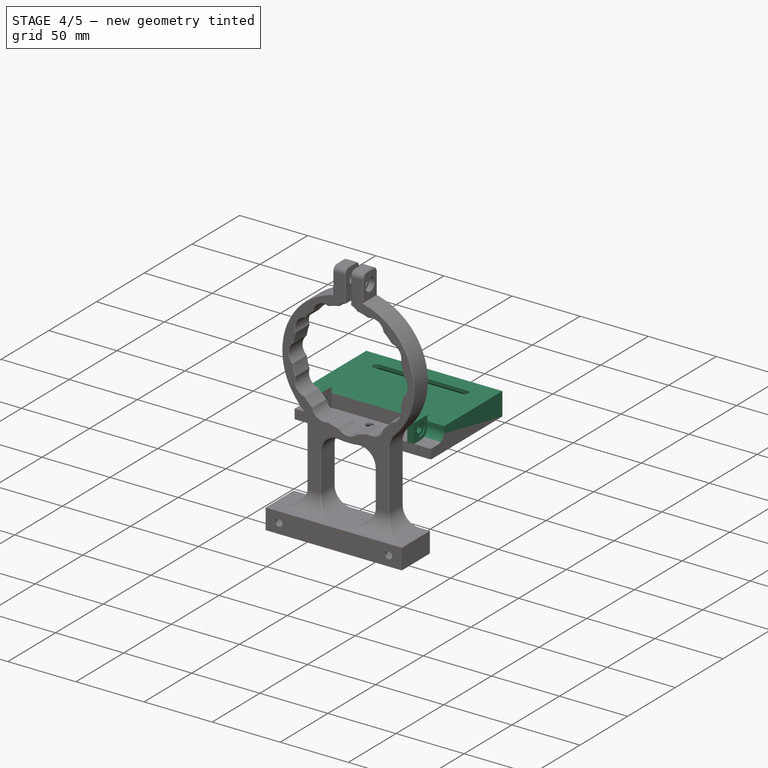
[diagram: stage 4 of 5 — iso view after this stage's code; geometry added in this stage tinted green]
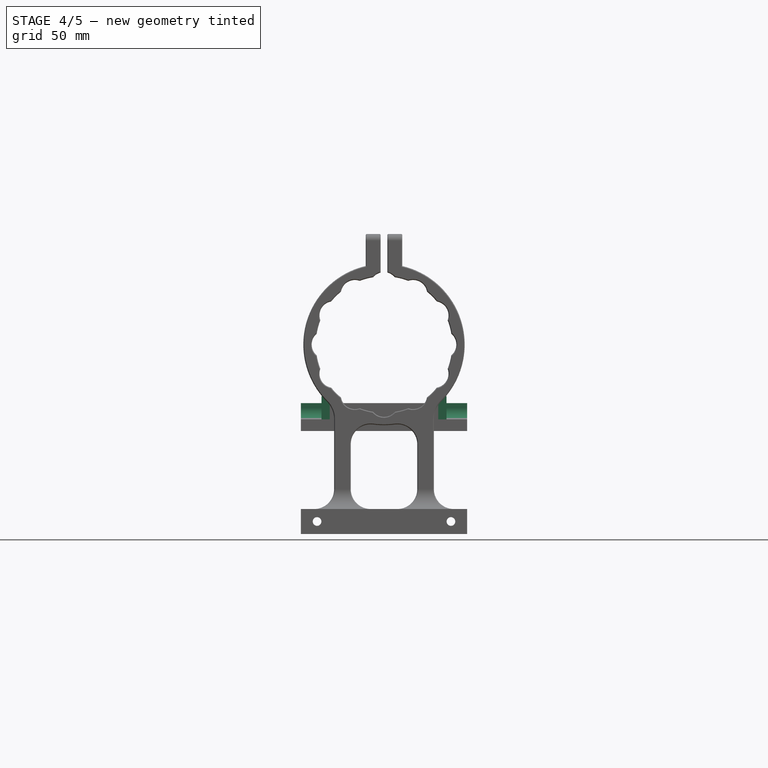
[diagram: stage 4 of 5 — front view after this stage's code; geometry added in this stage tinted green]
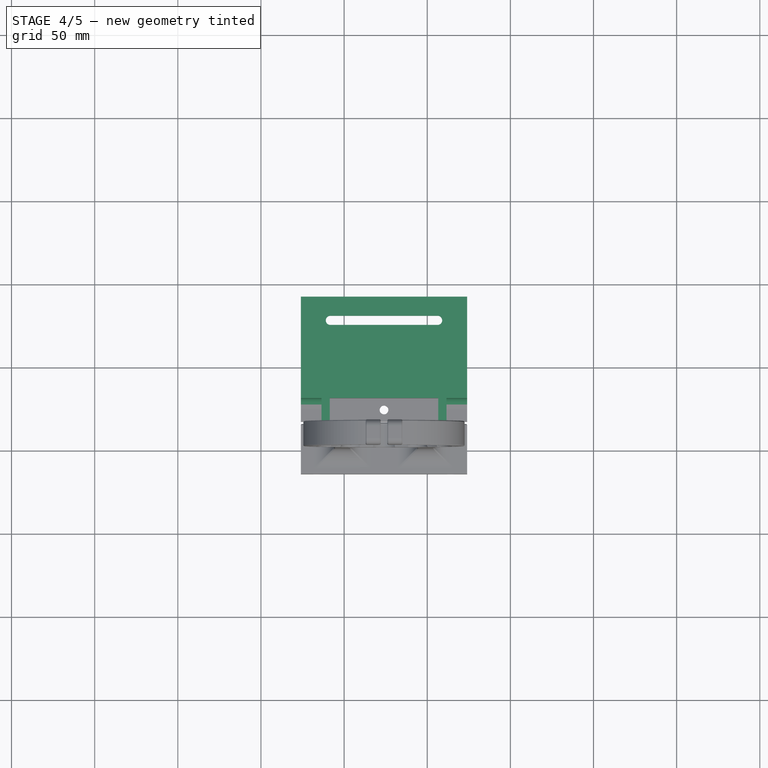
[diagram: stage 4 of 5 — top view after this stage's code; geometry added in this stage tinted green]
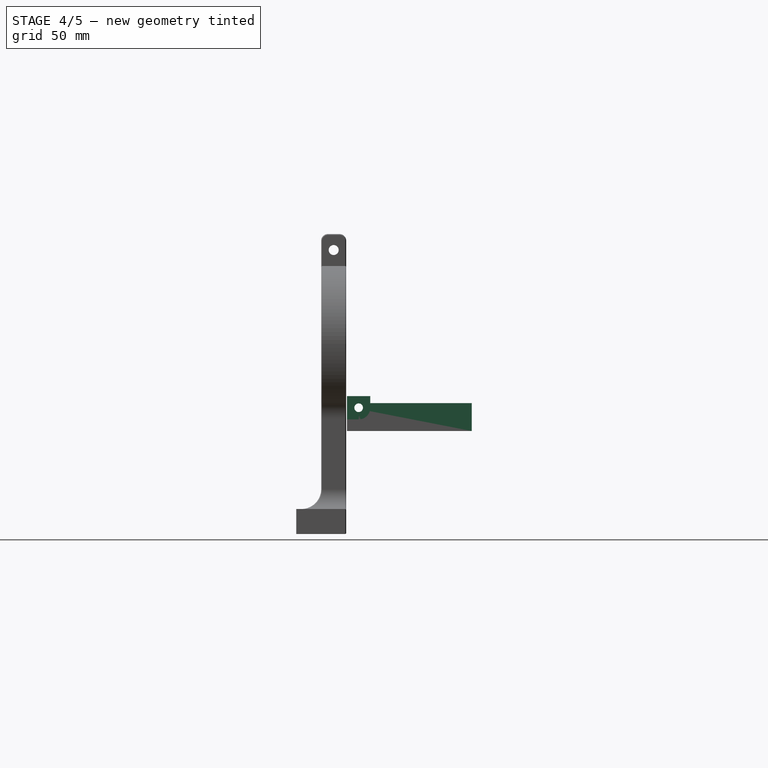
[diagram: stage 4 of 5 — right view after this stage's code; geometry added in this stage tinted green]
FEATURE [Sketcher::SketchObject] Sketch047
  ExternalGeometry = -> [Pad015]
  FullyConstrained = true
  MapMode = 5
  Placement = pos=(248,180,68.9166) rot=(0,0,1;3.14159rad)
  Support = -> [Pad015]
  sketch-geometry (8):
    g0: ArcOfCircle CenterX=91.75 CenterY=-147.25 CenterZ=0 NormalX=0 NormalY=0 NormalZ=1 AngleXU=0 Radius=2.75 StartAngle=1.5708 EndAngle=4.71239
    g1: ArcOfCircle CenterX=156.25 CenterY=-147.25 CenterZ=0 NormalX=0 NormalY=0 NormalZ=1 AngleXU=0 Radius=2.75 StartAngle=4.71239 EndAngle=7.85398
    g2: LineSegment StartX=91.75 StartY=-150 StartZ=0 EndX=156.25 EndY=-150 EndZ=0
    g3: LineSegment StartX=156.25 StartY=-144.5 StartZ=0 EndX=91.75 EndY=-144.5 EndZ=0
    g4: LineSegment StartX=74 StartY=-147.25 StartZ=0 EndX=89 EndY=-147.25 EndZ=0
    g5: LineSegment StartX=89 StartY=-147.25 StartZ=0 EndX=91.75 EndY=-147.25 EndZ=0
    g6: LineSegment StartX=174 StartY=-147.25 StartZ=0 EndX=159 EndY=-147.25 EndZ=0
    g7: LineSegment StartX=159 StartY=-147.25 StartZ=0 EndX=156.25 EndY=-147.25 EndZ=0
  constraints (22):
    c: Tangent(g0,g2) = -1.5708
    c: Tangent(g2,g1) = -1.5708
    c: Tangent(g1,g3) = -1.5708
    c: Tangent(g3,g0) = -1.5708
    c: Equal(g0,g1)
    c: Horizontal(g2)
    c: PointOnObject(g4,g-4)
    c: PointOnObject(g4,g0)
    c: Horizontal(g4)
    c: Coincident(g5,g4)
    c: Coincident(g5,g0)
    c: Horizontal(g5)
    c: PointOnObject(g6,g-5)
    c: PointOnObject(g6,g1)
    c: Horizontal(g6)
    c: Coincident(g7,g6)
    c: Coincident(g7,g1)
    c: Horizontal(g7)
    c: Equal(g4,g6)
    c: Distance(g6) = 15
    c: DistanceY(g-5,g1) = 11.5
    c: Diameter(g1) = 5.5
FEATURE [PartDesign::Pocket] Pocket031
  BaseFeature = -> Pad015
  Direction = (0,4e-16,-1)
  Length = 10
  Length2 = 5
  Placement = pos=(248,180,0) rot=(0,0,1;3.14159rad)
  Profile = -> Sketch047
  ReferenceAxis = -> Sketch047 [N_Axis]
  Type = 0
FEATURE [PartDesign::Chamfer] Chamfer004
  Angle = 45
  Base = -> Pocket031 [Edge9]
  BaseFeature = -> Pocket031
  ChamferType = 0
  FlipDirection = false
  Placement = pos=(248,180,0) rot=(0,0,1;3.14159rad)
  Size = 2
  Size2 = 1
  SupportTransform = false
  UseAllEdges = false
FEATURE [PartDesign::ShapeBinder] ShapeBinder008
  Placement = pos=(248,180,0) rot=(0,0,1;3.14159rad)
  Support = -> [Pocket030]
  TraceSupport = false
FEATURE [Sketcher::SketchObject] Sketch048
  ExternalGeometry = -> [ShapeBinder008]
  FullyConstrained = true
  MapMode = 5
  Placement = pos=(174,180,0) rot=(0.57735,0.57735,0.57735;2.0944rad)
  Support = -> [Chamfer004]
  sketch-geometry (5):
    g0: Circle CenterX=93.5 CenterY=75.9166 CenterZ=0 NormalX=0 NormalY=0 NormalZ=1 AngleXU=0 Radius=2.6
    g1: LineSegment StartX=86.5 StartY=82.9166 StartZ=0 EndX=100.5 EndY=82.9166 EndZ=0
    g2: LineSegment StartX=100.5 StartY=82.9166 StartZ=0 EndX=100.5 EndY=68.9166 EndZ=0
    g3: LineSegment StartX=100.5 StartY=68.9166 StartZ=0 EndX=86.5 EndY=68.9166 EndZ=0
    g4: LineSegment StartX=86.5 StartY=68.9166 StartZ=0 EndX=86.5 EndY=82.9166 EndZ=0
  constraints (12):
    c: Coincident(g1,g2)
    c: Coincident(g2,g3)
    c: Coincident(g3,g4)
    c: Coincident(g4,g1)
    c: Horizontal(g1)
    c: Horizontal(g3)
    c: Vertical(g2)
    c: Vertical(g4)
    c: Coincident(g-5,g1)
    c: Coincident(g-3,g0)
    c: Coincident(g2,g-4)
    c: Equal(g-3,g0)
FEATURE [PartDesign::Pad] Pad016
  BaseFeature = -> Chamfer004
  Direction = (1,9e-16,0)
  Length = 10
  Length2 = 10
  Placement = pos=(248,180,0) rot=(0,0,1;3.14159rad)
  Profile = -> Sketch048
  ReferenceAxis = -> Sketch048 [N_Axis]
  Refine = true
  Reversed = true
  Type = 3
  UpToFace = -> ShapeBinder008 [Face1]
FEATURE [Sketcher::SketchObject] Sketch049
  ExternalGeometry = -> [Pad016]
  FullyConstrained = true
  MapMode = 5
  Placement = pos=(74,180,0) rot=(0.57735,-0.57735,-0.57735;2.0944rad)
  Support = -> [Pad016]
  sketch-geometry (5):
    g0: LineSegment StartX=-100.5 StartY=82.9166 StartZ=0 EndX=-86.5 EndY=82.9166 EndZ=0
    g1: LineSegment StartX=-86.5 StartY=82.9166 StartZ=0 EndX=-86.5 EndY=68.9166 EndZ=0
    g2: LineSegment StartX=-86.5 StartY=68.9166 StartZ=0 EndX=-100.5 EndY=68.9166 EndZ=0
    g3: LineSegment StartX=-100.5 StartY=68.9166 StartZ=0 EndX=-100.5 EndY=82.9166 EndZ=0
    g4: Circle CenterX=-93.5 CenterY=75.9166 CenterZ=0 NormalX=0 NormalY=0 NormalZ=1 AngleXU=0 Radius=2.6
  constraints (12):
    c: Coincident(g0,g1)
    c: Coincident(g1,g2)
    c: Coincident(g2,g3)
    c: Coincident(g3,g0)
    c: Horizontal(g0)
    c: Horizontal(g2)
    c: Vertical(g1)
    c: Vertical(g3)
    c: Coincident(g0,g-4)
    c: Coincident(g1,g-5)
    c: Coincident(g4,g-3)
    c: Equal(g-3,g4)
FEATURE [PartDesign::Pad] Pad017
  BaseFeature = -> Pad016
  Direction = (-1,-9e-16,0)
  Length = 10
  Length2 = 10
  Placement = pos=(248,180,0) rot=(0,0,1;3.14159rad)
  Profile = -> Sketch049
  ReferenceAxis = -> Sketch049 [N_Axis]
  Refine = true
  Type = 3
  UpToFace = -> Pocket030 [Face9]
FEATURE [Sketcher::SketchObject] Sketch050
  ExternalGeometry = -> [Pad017]
  FullyConstrained = true
  MapMode = 5
  Placement = pos=(248,266.5,-1.2273e-12) rot=(1,0,0;1.5708rad)
  Support = -> [Pad017]
  sketch-geometry (10):
    g0: LineSegment StartX=-174 StartY=82.9166 StartZ=0 EndX=-164.119 EndY=82.9166 EndZ=0
    g1: LineSegment StartX=-164.119 StartY=82.9166 StartZ=0 EndX=-164.119 EndY=68.9166 EndZ=0
    g2: LineSegment StartX=-164.119 StartY=68.9166 StartZ=0 EndX=-174 EndY=68.9166 EndZ=0
    g3: LineSegment StartX=-174 StartY=68.9166 StartZ=0 EndX=-174 EndY=82.9166 EndZ=0
    g4: LineSegment StartX=-74 StartY=82.9166 StartZ=0 EndX=-83.881 EndY=82.9166 EndZ=0
    g5: LineSegment StartX=-83.881 StartY=82.9166 StartZ=0 EndX=-83.881 EndY=68.9166 EndZ=0
    g6: LineSegment StartX=-83.881 StartY=68.9166 StartZ=0 EndX=-74 EndY=68.9166 EndZ=0
    g7: LineSegment StartX=-74 StartY=68.9166 StartZ=0 EndX=-74 EndY=82.9166 EndZ=0
    g8: LineSegment StartX=-91.381 StartY=68.9166 StartZ=0 EndX=-83.881 EndY=68.9166 EndZ=0
    g9: LineSegment StartX=-156.619 StartY=68.9166 StartZ=0 EndX=-164.119 EndY=68.9166 EndZ=0
  constraints (26):
    c: Coincident(g0,g1)
    c: Coincident(g2,g3)
    c: Coincident(g3,g0)
    c: Horizontal(g0)
    c: Horizontal(g2)
    c: Vertical(g1)
    c: Vertical(g3)
    c: Coincident(g0,g-4)
    c: Coincident(g4,g5)
    c: Coincident(g5,g6)
    c: Coincident(g6,g7)
    c: Coincident(g7,g4)
    c: Horizontal(g4)
    c: Horizontal(g6)
    c: Vertical(g5)
    c: Vertical(g7)
    c: Coincident(g4,g-5)
    c: Coincident(g8,g-3)
    c: Coincident(g8,g5)
    c: Horizontal(g8)
    c: Distance(g8) = 7.5
    c: Coincident(g9,g-3)
    c: Coincident(g9,g2)
    c: Horizontal(g9)
    c: Coincident(g1,g2)
    c: Equal(g9,g8)
FEATURE [PartDesign::Pocket] Pocket032
  BaseFeature = -> Pad017
  Direction = (-1.3e-15,1,-1.43e-14)
  Length = 100
  Length2 = 5
  Placement = pos=(248,180,0) rot=(0,0,1;3.14159rad)
  Profile = -> Sketch050
  ReferenceAxis = -> Sketch050 [N_Axis]
  Refine = true
  Type = 0
FEATURE [PartDesign::ShapeBinder] ShapeBinder009
  Placement = pos=(248,180,0) rot=(0,0,1;3.14159rad)
  Support = -> [Pocket036]
  TraceSupport = false
FEATURE [Sketcher::SketchObject] Sketch055
  ExternalGeometry = -> [ShapeBinder009]
  FullyConstrained = true
  MapMode = 5
  Placement = pos=(248,180,68.9166) rot=(0,0,1;3.14159rad)
  Support = -> [Pocket032]
  sketch-geometry (1):
    g0: Circle CenterX=124 CenterY=-93.5 CenterZ=0 NormalX=0 NormalY=0 NormalZ=1 AngleXU=0 Radius=2.6
  constraints (2):
    c: Coincident(g0,g-3)
    c: Equal(g0,g-3)
FEATURE [PartDesign::Pocket] Pocket037
  BaseFeature = -> Pocket032
  Direction = (0,3e-16,-1)
  Length = 10
  Length2 = 5
  Placement = pos=(248,180,0) rot=(0,0,1;3.14159rad)
  Profile = -> Sketch055
  ReferenceAxis = -> Sketch055 [N_Axis]
  Type = 0
FEATURE [Sketcher::SketchObject] Sketch056
  ExternalGeometry = -> [Pocket037]
  FullyConstrained = true
  MapMode = 5
  Placement = pos=(248,180,61.9166) rot=(0,1,0;3.14159rad)
  Support = -> [Pocket037]
  sketch-geometry (1):
    g0: Circle CenterX=124 CenterY=93.5 CenterZ=0 NormalX=0 NormalY=0 NormalZ=1 AngleXU=0 Radius=4.6
  constraints (2):
    c: Coincident(g0,g-3)
    c: Diameter(g0) = 9.2
FEATURE [PartDesign::Pocket] Pocket038
  BaseFeature = -> Pocket037
  Direction = (0,-4e-16,1)
  Length = 0
  Length2 = 5
  Offset = -3
  Placement = pos=(248,180,0) rot=(0,0,1;3.14159rad)
  Profile = -> Sketch056
  ReferenceAxis = -> Sketch056 [N_Axis]
  Type = 3
  UpToFace = -> Pocket037 [Face11]
FEATURE [PartDesign::Body] Body005  label="Rotation Unit"
  Group = -> [ShapeBinder006,Sketch039,Pad011,Pad012,Sketch040,Pad013,Sketch041,Pocket027,Sketch042,Pocket028,Sketch043,Pocket029,Sketch044,Pocket030,Sketch053,Pocket035,Sketch054,Pocket036,Chamfer008,Chamfer009,Sketch057,Pocket039,Fillet006]
  Origin = -> Origin005
  Tip = -> Fillet006
FEATURE [PartDesign::Chamfer] Chamfer016
  Angle = 45
  Base = -> Pocket038 [Edge61]
  BaseFeature = -> Pocket038
  ChamferType = 0
  FlipDirection = false
  Placement = pos=(248,180,0) rot=(0,0,1;3.14159rad)
  Size = 1.75
  Size2 = 1
  SupportTransform = false
  UseAllEdges = false
FEATURE [Sketcher::SketchObject] Sketch061
  ExternalGeometry = -> [Chamfer016]
  FullyConstrained = true
  MapMode = 5
  Placement = pos=(248,180,68.9166) rot=(0,0,1;3.14159rad)
  Support = -> [Chamfer016]
  sketch-geometry (12):
    g0: LineSegment StartX=74 StartY=-161.5 StartZ=0 EndX=74 EndY=-86.5 EndZ=0
    g1: LineSegment StartX=74 StartY=-86.5 StartZ=0 EndX=83.881 EndY=-86.5 EndZ=0
    g2: LineSegment StartX=164.119 StartY=-100.5 StartZ=0 EndX=164.119 EndY=-86.5 EndZ=0
    g3: LineSegment StartX=164.119 StartY=-86.5 StartZ=0 EndX=174 EndY=-86.5 EndZ=0
    g4: LineSegment StartX=174 StartY=-86.5 StartZ=0 EndX=174 EndY=-161.5 EndZ=0
    g5: LineSegment StartX=174 StartY=-161.5 StartZ=0 EndX=74 EndY=-161.5 EndZ=0
    g6: LineSegment StartX=91.75 StartY=-150 StartZ=0 EndX=156.25 EndY=-150 EndZ=0
    g7: LineSegment StartX=156.25 StartY=-144.5 StartZ=0 EndX=91.75 EndY=-144.5 EndZ=0
    g8: ArcOfCircle CenterX=91.75 CenterY=-147.25 CenterZ=0 NormalX=0 NormalY=0 NormalZ=1 AngleXU=0 Radius=2.75 StartAngle=1.5708 EndAngle=4.71239
    g9: ArcOfCircle CenterX=156.25 CenterY=-147.25 CenterZ=0 NormalX=0 NormalY=0 NormalZ=1 AngleXU=0 Radius=2.75 StartAngle=4.71239 EndAngle=7.85398
    g10: LineSegment StartX=83.881 StartY=-86.5 StartZ=0 EndX=83.881 EndY=-100.5 EndZ=0
    g11: LineSegment StartX=83.881 StartY=-100.5 StartZ=0 EndX=164.119 EndY=-100.5 EndZ=0
  constraints (25):
    c: Coincident(g0,g-3)
    c: Coincident(g0,g-5)
    c: Coincident(g1,g0)
    c: Coincident(g1,g-5)
    c: Coincident(g2,g-4)
    c: Coincident(g3,g2)
    c: Coincident(g3,g-4)
    c: Coincident(g4,g3)
    c: Coincident(g4,g-3)
    c: Coincident(g5,g4)
    c: Coincident(g5,g0)
    c: Coincident(g10,g1)
    c: Coincident(g10,g-6)
    c: Coincident(g11,g10)
    c: Coincident(g11,g2)
    c: Horizontal(g11)
    c: Vertical(g2)
    c: Tangent(g8,g7) = -1.5708
    c: Tangent(g8,g6) = -1.5708
    c: Tangent(g9,g7) = -1.5708
    c: Tangent(g9,g6) = -1.5708
    c: Coincident(g-8,g8)
    c: Coincident(g-7,g9)
    c: Equal(g-7,g9)
    c: Equal(g-8,g8)
FEATURE [PartDesign::Pad] Pad020
  BaseFeature = -> Chamfer016
  Direction = (0,-3e-16,1)
  Length = 9.8
  Length2 = 10
  Placement = pos=(248,180,0) rot=(0,0,1;3.14159rad)
  Profile = -> Sketch061
  ReferenceAxis = -> Sketch061 [N_Axis]
  Refine = true
  Type = 0
FEATURE [Sketcher::SketchObject] Sketch062
  ExternalGeometry = -> [Pad020]
  FullyConstrained = true
  MapMode = 5
  Placement = pos=(248,180,61.9166) rot=(0,1,0;3.14159rad)
  Support = -> [Pad020]
  sketch-geometry (4):
    g0: ArcOfCircle CenterX=91.75 CenterY=147.25 CenterZ=0 NormalX=0 NormalY=0 NormalZ=1 AngleXU=0 Radius=9.5 StartAngle=1.5708 EndAngle=4.71239
    g1: ArcOfCircle CenterX=156.25 CenterY=147.25 CenterZ=0 NormalX=0 NormalY=0 NormalZ=1 AngleXU=0 Radius=9.5 StartAngle=4.71239 EndAngle=7.85398
    g2: LineSegment StartX=91.75 StartY=137.75 StartZ=0 EndX=156.25 EndY=137.75 EndZ=0
    g3: LineSegment StartX=156.25 StartY=156.75 StartZ=0 EndX=91.75 EndY=156.75 EndZ=0
  constraints (8):
    c: Tangent(g0,g2) = -1.5708
    c: Tangent(g2,g1) = -1.5708
    c: Tangent(g1,g3) = -1.5708
    c: Tangent(g3,g0) = -1.5708
    c: Equal(g0,g1)
    c: Coincident(g0,g-3)
    c: Coincident(g1,g-4)
    c: Diameter(g1) = 19
FEATURE [PartDesign::Pocket] Pocket042
  BaseFeature = -> Pad020
  Direction = (0,-4e-16,1)
  Length = 0
  Length2 = 5
  Offset = 5
  Placement = pos=(248,180,0) rot=(0,0,1;3.14159rad)
  Profile = -> Sketch062
  ReferenceAxis = -> Sketch062 [N_Axis]
  Reversed = true
  Type = 3
  UpToFace = -> Pad020 [Face22]
FEATURE [PartDesign::Chamfer] Chamfer017
  Angle = 45
  Base = -> Pocket042 [Edge57]
  BaseFeature = -> Pocket042
  ChamferType = 0
  FlipDirection = false
  Placement = pos=(248,180,0) rot=(0,0,1;3.14159rad)
  Size = 2.5
  Size2 = 1
  SupportTransform = false
  UseAllEdges = false
FEATURE [PartDesign::Chamfer] Chamfer018
  Angle = 45
  Base = -> Chamfer017 [Edge34]
  BaseFeature = -> Chamfer017
  ChamferType = 0
  FlipDirection = false
  Placement = pos=(248,180,0) rot=(0,0,1;3.14159rad)
  Size = 3.5
  Size2 = 1
  SupportTransform = false
  UseAllEdges = false
FEATURE [Sketcher::SketchObject] Sketch063
  ExternalGeometry = -> [Chamfer018]
  FullyConstrained = true
  MapMode = 5
  Placement = pos=(74,180,-1.607e-13) rot=(0.57735,-0.57735,-0.57735;2.0944rad)
  Support = -> [Chamfer018]
  sketch-geometry (1):
    g0: Circle CenterX=-93.5 CenterY=75.9166 CenterZ=0 NormalX=0 NormalY=0 NormalZ=1 AngleXU=0 Radius=4.6
  constraints (2):
    c: Coincident(g0,g-3)
    c: Diameter(g0) = 9.2
FEATURE [PartDesign::Pocket] Pocket043
  BaseFeature = -> Chamfer018
  Direction = (1,1.3e-15,9e-16)
  Length = 0
  Length2 = 5
  Offset = 4
  Placement = pos=(248,180,0) rot=(0,0,1;3.14159rad)
  Profile = -> Sketch063
  ReferenceAxis = -> Sketch063 [N_Axis]
  Reversed = true
  Type = 3
  UpToFace = -> Chamfer018 [Face33]
FEATURE [Sketcher::SketchObject] Sketch064
  ExternalGeometry = -> [Pocket043]
  FullyConstrained = true
  MapMode = 5
  Placement = pos=(174,180,-1.929e-13) rot=(0.57735,0.57735,0.57735;2.0944rad)
  Support = -> [Pocket043]
  sketch-geometry (1):
    g0: Circle CenterX=93.5 CenterY=75.9166 CenterZ=0 NormalX=0 NormalY=0 NormalZ=1 AngleXU=0 Radius=4.6
  constraints (2):
    c: Diameter(g0) = 9.2
    c: Coincident(g0,g-3)
FEATURE [PartDesign::Pocket] Pocket044
  BaseFeature = -> Pocket043
  Direction = (-1,-9e-16,-2.7e-15)
  Length = 0
  Length2 = 5
  Offset = 4
  Placement = pos=(248,180,0) rot=(0,0,1;3.14159rad)
  Profile = -> Sketch064
  ReferenceAxis = -> Sketch064 [N_Axis]
  Refine = true
  Reversed = true
  Type = 3
  UpToFace = -> Pocket043 [Face32]
FEATURE [Sketcher::SketchObject] Sketch065
  ExternalGeometry = -> [Pocket044]
  FullyConstrained = true
  MapMode = 5
  Placement = pos=(174,180,-1.929e-13) rot=(0.57735,0.57735,0.57735;2.0944rad)
  Support = -> [Pocket044]
  sketch-geometry (6):
    g0: LineSegment StartX=100.5 StartY=82.9166 StartZ=0 EndX=100.5 EndY=75.9166 EndZ=0
    g1: LineSegment StartX=98.1 StartY=75.9166 StartZ=0 EndX=100.5 EndY=75.9166 EndZ=0
    g2: LineSegment StartX=86.5 StartY=82.9166 StartZ=0 EndX=100.5 EndY=82.9166 EndZ=0
    g3: LineSegment StartX=86.5 StartY=82.9166 StartZ=0 EndX=86.5 EndY=68.9166 EndZ=0
    g4: LineSegment StartX=86.5 StartY=68.9166 StartZ=0 EndX=93.5 EndY=68.9166 EndZ=0
    g5: ArcOfCircle CenterX=93.5 CenterY=75.9166 CenterZ=0 NormalX=0 NormalY=0 NormalZ=1 AngleXU=0 Radius=7 StartAngle=4.71239 EndAngle=6.28319
  constraints (13):
    c: Coincident(g0,g-4)
    c: Vertical(g0)
    c: Coincident(g1,g-3)
    c: Coincident(g1,g0)
    c: Coincident(g2,g-4)
    c: Coincident(g2,g0)
    c: Coincident(g3,g2)
    c: Vertical(g3)
    c: Coincident(g4,g3)
    c: Horizontal(g4)
    c: Tangent(g5,g0) = 1.5708
    c: Tangent(g5,g4) = -1.5708
    c: Coincident(g-3,g5)
FEATURE [PartDesign::Pocket] Pocket045
  BaseFeature = -> Pocket044
  Direction = (-1,-9e-16,-2.7e-15)
  Length = 0
  Length2 = 5
  Offset = 4
  Placement = pos=(248,180,0) rot=(0,0,1;3.14159rad)
  Profile = -> Sketch065
  ReferenceAxis = -> Sketch065 [N_Axis]
  Refine = true
  Reversed = true
  Type = 3
  UpToFace = -> Pocket044 [Face34]
FEATURE [PartDesign::Pad] Pad021
  BaseFeature = -> Pocket045
  Direction = (1,2.4e-15,0)
  Length = 1
  Length2 = 10
  Placement = pos=(248,180,0) rot=(0,0,1;3.14159rad)
  Profile = -> Pocket045 [Face39]
  Refine = true
  Type = 0
FEATURE [Sketcher::SketchObject] Sketch066
  ExternalGeometry = -> [Pad021]
  FullyConstrained = true
  MapMode = 5
  Placement = pos=(74,180,-1.607e-13) rot=(0.57735,-0.57735,-0.57735;2.0944rad)
  Support = -> [Pad021]
  sketch-geometry (5):
    g0: LineSegment StartX=-100.5 StartY=82.9166 StartZ=0 EndX=-100.5 EndY=75.9166 EndZ=0
    g1: LineSegment StartX=-86.5 StartY=82.9166 StartZ=0 EndX=-86.5 EndY=68.9166 EndZ=0
    g2: LineSegment StartX=-93.5 StartY=68.9166 StartZ=0 EndX=-86.5 EndY=68.9166 EndZ=0
    g3: ArcOfCircle CenterX=-93.5 CenterY=75.9166 CenterZ=0 NormalX=0 NormalY=0 NormalZ=1 AngleXU=0 Radius=7 StartAngle=3.14159 EndAngle=4.71239
    g4: LineSegment StartX=-100.5 StartY=82.9166 StartZ=0 EndX=-86.5 EndY=82.9166 EndZ=0
  constraints (11):
    c: Coincident(g0,g-4)
    c: Coincident(g0,g-3)
    c: Coincident(g1,g-4)
    c: Vertical(g1)
    c: Coincident(g2,g-3)
    c: Coincident(g2,g1)
    c: Horizontal(g2)
    c: Coincident(g3,g2)
    c: Tangent(g3,g0) = -1.5708
    c: Coincident(g4,g0)
    c: Coincident(g4,g1)
FEATURE [PartDesign::Pocket] Pocket046
  BaseFeature = -> Pad021
  Direction = (1,1.4e-15,1e-15)
  Length = 0
  Length2 = 5
  Offset = 4
  Placement = pos=(248,180,0) rot=(0,0,1;3.14159rad)
  Profile = -> Sketch066
  ReferenceAxis = -> Sketch066 [N_Axis]
  Reversed = true
  Type = 3
  UpToFace = -> Pad021 [Face33]
FEATURE [PartDesign::Pad] Pad022
  BaseFeature = -> Pocket046
  Direction = (-1,-2.4e-15,0)
  Length = 1
  Length2 = 10
  Placement = pos=(248,180,0) rot=(0,0,1;3.14159rad)
  Profile = -> Pocket046 [Face33]
  Refine = true
  Type = 0
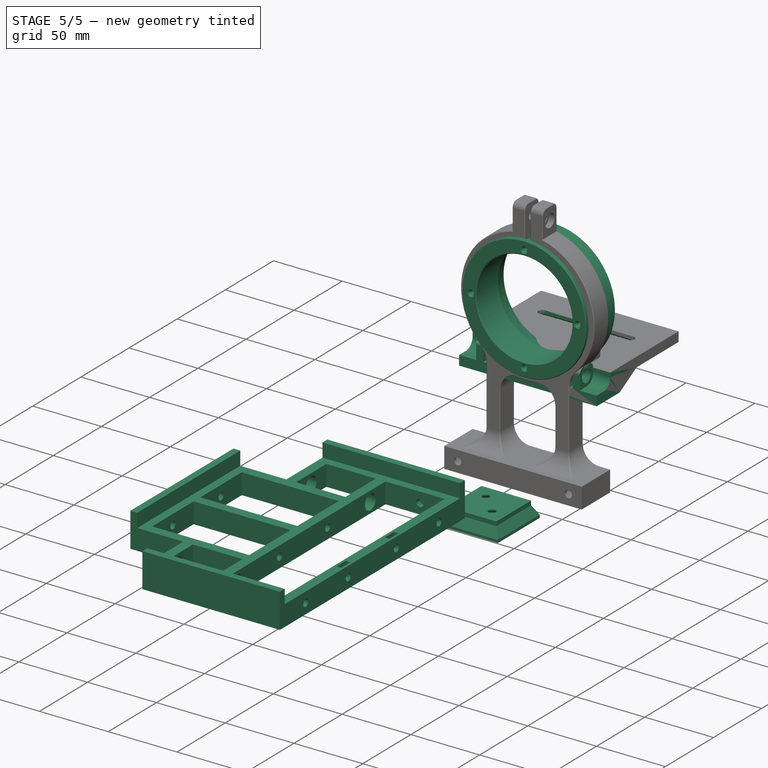
[diagram: stage 5 of 5 — iso view after this stage's code; geometry added in this stage tinted green]
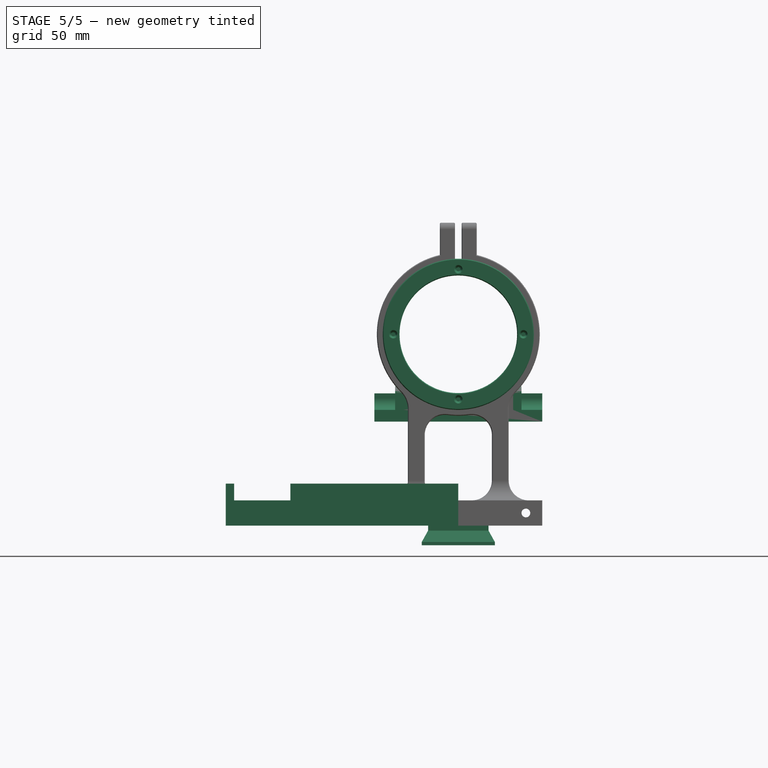
[diagram: stage 5 of 5 — front view after this stage's code; geometry added in this stage tinted green]
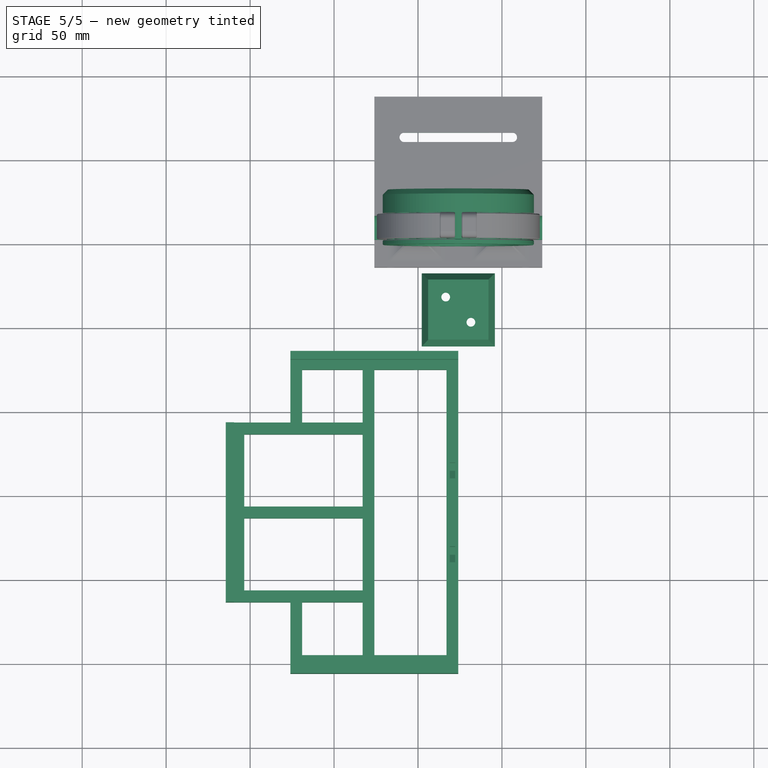
[diagram: stage 5 of 5 — top view after this stage's code; geometry added in this stage tinted green]
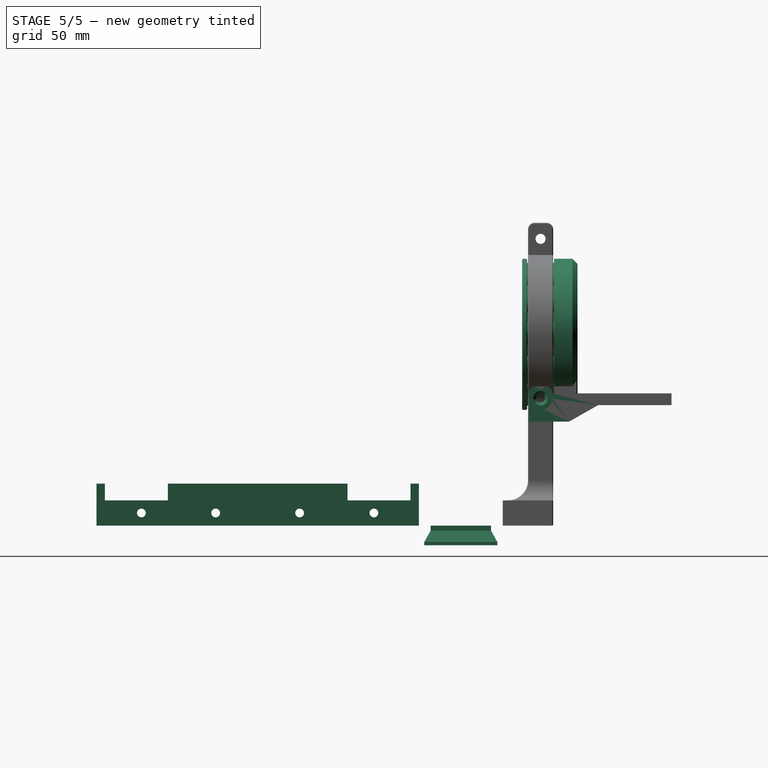
[diagram: stage 5 of 5 — right view after this stage's code; geometry added in this stage tinted green]
FEATURE [Sketcher::SketchObject] Sketch018
  ExternalGeometry = -> [Pocket008]
  FullyConstrained = true
  MapMode = 5
  Placement = pos=(-14.5,2e-16,0) rot=(-0.57735,0.57735,0.57735;4.18879rad)
  Support = -> [Pocket008]
  sketch-geometry (22):
    g0: LineSegment StartX=-115 StartY=12.956 StartZ=0 EndX=-119.725 EndY=10.228 EndZ=0
    g1: LineSegment StartX=-119.725 StartY=10.228 StartZ=0 EndX=-119.725 EndY=4.77202 EndZ=0
    g2: LineSegment StartX=-119.725 StartY=4.77202 StartZ=0 EndX=-115 EndY=2.04404 EndZ=0
    g3: LineSegment StartX=-115 StartY=2.04404 StartZ=0 EndX=-110.275 EndY=4.77202 EndZ=0
    g4: LineSegment StartX=-110.275 StartY=4.77202 StartZ=0 EndX=-110.275 EndY=10.228 EndZ=0
    g5: LineSegment StartX=-110.275 StartY=10.228 StartZ=0 EndX=-115 EndY=12.956 EndZ=0
    g6: Circle CenterX=-115 CenterY=7.5 CenterZ=0 NormalX=0 NormalY=0 NormalZ=1 AngleXU=0 Radius=5.45596
    g7: LineSegment StartX=-69.725 StartY=10.228 StartZ=0 EndX=-69.725 EndY=4.77202 EndZ=0
    g8: LineSegment StartX=-69.725 StartY=4.77202 StartZ=0 EndX=-65 EndY=2.04404 EndZ=0
    g9: LineSegment StartX=-65 StartY=2.04404 StartZ=0 EndX=-60.275 EndY=4.77202 EndZ=0
    g10: LineSegment StartX=-60.275 StartY=4.77202 StartZ=0 EndX=-60.275 EndY=10.228 EndZ=0
    g11: LineSegment StartX=-60.275 StartY=10.228 StartZ=0 EndX=-65 EndY=12.956 EndZ=0
    g12: LineSegment StartX=-65 StartY=12.956 StartZ=0 EndX=-69.725 EndY=10.228 EndZ=0
    g13: Circle CenterX=-65 CenterY=7.5 CenterZ=0 NormalX=0 NormalY=0 NormalZ=1 AngleXU=0 Radius=5.45596
    g14: LineSegment StartX=-69.725 StartY=10.228 StartZ=0 EndX=-60.275 EndY=10.228 EndZ=0
    g15: LineSegment StartX=-119.725 StartY=10.228 StartZ=0 EndX=-110.275 EndY=10.228 EndZ=0
    g16: LineSegment StartX=-119.725 StartY=4.77202 StartZ=0 EndX=-119.725 EndY=0 EndZ=0
    g17: LineSegment StartX=-110.275 StartY=4.77202 StartZ=0 EndX=-110.275 EndY=0 EndZ=0
    g18: LineSegment StartX=-69.725 StartY=4.77202 StartZ=0 EndX=-69.725 EndY=0 EndZ=0
    g19: LineSegment StartX=-60.275 StartY=4.77202 StartZ=0 EndX=-60.275 EndY=0 EndZ=0
    g20: LineSegment StartX=-60.275 StartY=0 StartZ=0 EndX=-69.725 EndY=0 EndZ=0
    g21: LineSegment StartX=-110.275 StartY=0 StartZ=0 EndX=-119.725 EndY=0 EndZ=0
  constraints (52):
    c: Coincident(g0,g1)
    c: Coincident(g1,g2)
    c: Coincident(g2,g3)
    c: Coincident(g3,g4)
    c: Coincident(g4,g5)
    c: Coincident(g5,g0)
    c: Equal(g0, g1-g5) x5
    c: PointOnObject(g0,g6)
    c: PointOnObject(g1,g6)
    c: PointOnObject(g2,g6)
    c: PointOnObject(g3,g6)
    c: PointOnObject(g4,g6)
    c: PointOnObject(g5,g6)
    c: Coincident(g6,g-3)
    c: Coincident(g7,g8)
    c: Coincident(g8,g9)
    c: Coincident(g9,g10)
    c: Coincident(g10,g11)
    c: Coincident(g11,g12)
    c: Coincident(g12,g7)
    c: Equal(g7, g8-g12) x5
    c: PointOnObject(g7,g13)
    c: PointOnObject(g8,g13)
    c: PointOnObject(g9,g13)
    c: PointOnObject(g10,g13)
    c: PointOnObject(g11,g13)
    c: PointOnObject(g12,g13)
    c: Coincident(g13,g-4)
    c: Vertical(g1)
    c: Vertical(g7)
    c: Coincident(g14,g7)
    c: Coincident(g14,g10)
    c: Coincident(g15,g0)
    c: Coincident(g15,g4)
    c: Equal(g-5,g15)
    c: Equal(g-5,g14)
    c: Coincident(g16,g1)
    c: PointOnObject(g16,g-6)
    c: Vertical(g16)
    c: Coincident(g17,g4)
    c: PointOnObject(g17,g-6)
    c: Vertical(g17)
    c: Coincident(g18,g7)
    c: PointOnObject(g18,g-6)
    c: Vertical(g18)
    c: Coincident(g19,g10)
    c: PointOnObject(g19,g-6)
    c: Vertical(g19)
    c: Coincident(g20,g19)
    c: Coincident(g20,g18)
    c: Coincident(g21,g17)
    c: Coincident(g21,g16)
FEATURE [PartDesign::Pocket] Pocket011
  BaseFeature = -> Pocket008
  Direction = (1,0,0)
  Length = 7.25
  Length2 = -3.75
  Profile = -> Sketch018
  ReferenceAxis = -> Sketch018 [N_Axis]
  Type = 4
FEATURE [Sketcher::SketchObject] Sketch019
  ExternalGeometry = -> [Pocket011]
  FullyConstrained = true
  MapMode = 5
  Placement = pos=(2.54e-14,186,-1.048e-13) rot=(0,0.707107,0.707107;3.14159rad)
  Support = -> [Pocket011]
  sketch-geometry (11):
    g0: LineSegment StartX=-94.275 StartY=10.228 StartZ=0 EndX=-99 EndY=12.956 EndZ=0
    g1: LineSegment StartX=-99 StartY=12.956 StartZ=0 EndX=-103.725 EndY=10.228 EndZ=0
    g2: LineSegment StartX=-103.725 StartY=10.228 StartZ=0 EndX=-103.725 EndY=4.77202 EndZ=0
    g3: LineSegment StartX=-103.725 StartY=4.77202 StartZ=0 EndX=-99 EndY=2.04404 EndZ=0
    g4: LineSegment StartX=-99 StartY=2.04404 StartZ=0 EndX=-94.275 EndY=4.77202 EndZ=0
    g5: LineSegment StartX=-94.275 StartY=4.77202 StartZ=0 EndX=-94.275 EndY=10.228 EndZ=0
    g6: Circle CenterX=-99 CenterY=7.5 CenterZ=0 NormalX=0 NormalY=0 NormalZ=1 AngleXU=0 Radius=5.45596
    g7: LineSegment StartX=-103.725 StartY=4.77202 StartZ=0 EndX=-94.275 EndY=4.77202 EndZ=0
    g8: LineSegment StartX=-103.725 StartY=4.77202 StartZ=0 EndX=-103.725 EndY=0 EndZ=0
    g9: LineSegment StartX=-94.275 StartY=4.77202 StartZ=0 EndX=-94.275 EndY=0 EndZ=0
    g10: LineSegment StartX=-94.275 StartY=0 StartZ=0 EndX=-103.725 EndY=0 EndZ=0
  constraints (26):
    c: Coincident(g0,g1)
    c: Coincident(g1,g2)
    c: Coincident(g2,g3)
    c: Coincident(g3,g4)
    c: Coincident(g4,g5)
    c: Coincident(g5,g0)
    c: Equal(g0, g1-g5) x5
    c: PointOnObject(g0,g6)
    c: PointOnObject(g1,g6)
    c: PointOnObject(g2,g6)
    c: PointOnObject(g3,g6)
    c: PointOnObject(g4,g6)
    c: PointOnObject(g5,g6)
    c: Coincident(g6,g-3)
    c: Coincident(g7,g2)
    c: Coincident(g7,g4)
    c: Distance(g7) = 9.45
    c: Vertical(g2)
    c: Coincident(g8,g2)
    c: PointOnObject(g8,g-4)
    c: Vertical(g8)
    c: Coincident(g9,g5)
    c: PointOnObject(g9,g-4)
    c: Vertical(g9)
    c: Coincident(g10,g9)
    c: Coincident(g10,g8)
FEATURE [PartDesign::Pocket] Pocket012
  BaseFeature = -> Pocket011
  Direction = (-1e-16,-1,7e-16)
  Length = 7.25
  Length2 = -3.75
  Profile = -> Sketch019
  ReferenceAxis = -> Sketch019 [N_Axis]
  Refine = true
  Type = 4
FEATURE [Sketcher::SketchObject] Sketch030
  ExternalGeometry = -> [Pocket017]
  FullyConstrained = true
  MapMode = 5
  Placement = pos=(2.84e-14,-2.84e-14,-4) rot=(1,0,0;3.14159rad)
  Support = -> [Pocket017]
  sketch-geometry (2):
    g0: Circle CenterX=116.5 CenterY=-218.5 CenterZ=0 NormalX=0 NormalY=0 NormalZ=1 AngleXU=0 Radius=2.6
    g1: Circle CenterX=131.5 CenterY=-203.5 CenterZ=0 NormalX=0 NormalY=0 NormalZ=1 AngleXU=0 Radius=2.6
  constraints (4):
    c: Coincident(g0,g-4)
    c: Coincident(g1,g-3)
    c: Equal(g0,g1)
    c: Diameter(g1) = 5.2
FEATURE [PartDesign::Pocket] Pocket021
  BaseFeature = -> Pocket017
  Direction = (0,0,1)
  Length = 5
  Length2 = 5
  Placement = pos=(2.84e-14,-2.84e-14,0) rot=(0,0,1;0rad)
  Profile = -> Sketch030
  ReferenceAxis = -> Sketch030 [N_Axis]
  Type = 0
FEATURE [PartDesign::Chamfer] Chamfer003
  Angle = 45
  Base = -> Pocket021 [Edge52,Edge50]
  BaseFeature = -> Pocket021
  ChamferType = 0
  FlipDirection = false
  Placement = pos=(2.84e-14,-2.84e-14,0) rot=(0,0,1;0rad)
  Size = 1.75
  Size2 = 1
  SupportTransform = false
  UseAllEdges = false
FEATURE [PartDesign::Chamfer] Chamfer008
  Angle = 45
  Base = -> Pocket036 [Edge121]
  BaseFeature = -> Pocket036
  ChamferType = 1
  FlipDirection = false
  Placement = pos=(248,180,0) rot=(0,0,1;3.14159rad)
  Size = 10
  Size2 = 3
  SupportTransform = false
  UseAllEdges = false
FEATURE [PartDesign::Chamfer] Chamfer009
  Angle = 45
  Base = -> Chamfer008 [Edge31]
  BaseFeature = -> Chamfer008
  ChamferType = 0
  FlipDirection = false
  Placement = pos=(248,180,0) rot=(0,0,1;3.14159rad)
  Size = 3
  Size2 = 1
  SupportTransform = false
  UseAllEdges = false
FEATURE [Sketcher::SketchObject] Sketch057
  ExternalGeometry = -> [Chamfer009]
  FullyConstrained = true
  MapMode = 5
  Placement = pos=(248,250.5,-4.5e-15) rot=(1,0,0;1.5708rad)
  Support = -> [Chamfer009]
  sketch-geometry (8):
    g0: Circle CenterX=-162.75 CenterY=113.917 CenterZ=0 NormalX=0 NormalY=0 NormalZ=1 AngleXU=0 Radius=1.95
    g1: Circle CenterX=-124 CenterY=75.1666 CenterZ=0 NormalX=0 NormalY=0 NormalZ=1 AngleXU=0 Radius=1.95
    g2: Circle CenterX=-124 CenterY=152.667 CenterZ=0 NormalX=0 NormalY=0 NormalZ=1 AngleXU=0 Radius=1.95
    g3: Circle CenterX=-85.25 CenterY=113.917 CenterZ=0 NormalX=0 NormalY=0 NormalZ=1 AngleXU=0 Radius=1.95
    g4: LineSegment StartX=-81.5 StartY=113.917 StartZ=0 EndX=-89 EndY=113.917 EndZ=0
    g5: LineSegment StartX=-124 StartY=78.9166 StartZ=0 EndX=-124 EndY=71.4166 EndZ=0
    g6: LineSegment StartX=-124 StartY=148.917 StartZ=0 EndX=-124 EndY=156.417 EndZ=0
    g7: LineSegment StartX=-166.5 StartY=113.917 StartZ=0 EndX=-159 EndY=113.917 EndZ=0
  constraints (20):
    c: Diameter(g0) = 3.9
    c: Equal(g0,g1)
    c: Equal(g1,g2)
    c: Equal(g2,g3)
    c: Symmetric(g6,g6,g2)
    c: Symmetric(g5,g5,g1)
    c: Symmetric(g4,g4,g3)
    c: Symmetric(g7,g7,g0)
    c: PointOnObject(g6,g-6)
    c: PointOnObject(g7,g-3)
    c: PointOnObject(g4,g-4)
    c: PointOnObject(g5,g-5)
    c: Coincident(g-5,g5)
    c: Coincident(g4,g-4)
    c: Coincident(g7,g-3)
    c: Coincident(g6,g-6)
    c: Vertical(g6)
    c: Vertical(g5)
    c: Horizontal(g7)
    c: Horizontal(g4)
FEATURE [PartDesign::Pocket] Pocket039
  BaseFeature = -> Chamfer009
  Direction = (-2.3e-15,1,-2e-16)
  Length = 4
  Length2 = 5
  Placement = pos=(248,180,0) rot=(0,0,1;3.14159rad)
  Profile = -> Sketch057
  ReferenceAxis = -> Sketch057 [N_Axis]
  Type = 0
FEATURE [PartDesign::ShapeBinder] ShapeBinder010
  Placement = pos=(248,180,0) rot=(0,0,1;3.14159rad)
  Support = -> [Pocket039]
  TraceSupport = false
FEATURE [Sketcher::SketchObject] Sketch058
  ExternalGeometry = -> [ShapeBinder010]
  FullyConstrained = true
  MapMode = 5
  Placement = pos=(248,250.5,-4.2e-15) rot=(1,0,0;1.5708rad)
  Support = -> [ShapeBinder010]
  sketch-geometry (6):
    g0: Circle CenterX=-124 CenterY=113.917 CenterZ=0 NormalX=0 NormalY=0 NormalZ=1 AngleXU=0 Radius=35
    g1: Circle CenterX=-162.75 CenterY=113.917 CenterZ=0 NormalX=0 NormalY=0 NormalZ=1 AngleXU=0 Radius=1.125
    g2: Circle CenterX=-124 CenterY=152.667 CenterZ=0 NormalX=0 NormalY=0 NormalZ=1 AngleXU=0 Radius=1.125
    g3: Circle CenterX=-85.25 CenterY=113.917 CenterZ=0 NormalX=0 NormalY=0 NormalZ=1 AngleXU=0 Radius=1.125
    g4: Circle CenterX=-124 CenterY=75.1666 CenterZ=0 NormalX=0 NormalY=0 NormalZ=1 AngleXU=0 Radius=1.125
    g5: Circle CenterX=-124 CenterY=113.917 CenterZ=0 NormalX=0 NormalY=0 NormalZ=1 AngleXU=0 Radius=45
  constraints (12):
    c: Coincident(g2,g-5)
    c: Coincident(g4,g-7)
    c: Diameter(g2) = 2.25
    c: Equal(g1,g2)
    c: Equal(g1,g4)
    c: Equal(g4,g3)
    c: Coincident(g-4,g1)
    c: Diameter(g5) = 90
    c: Coincident(g-6,g3)
    c: Coincident(g-3,g5)
    c: Coincident(g0,g5)
    c: Equal(g-3,g0)
FEATURE [PartDesign::Pad] Pad018
  Direction = (2.4e-15,-1,2e-16)
  Length = 3
  Length2 = 10
  Placement = pos=(248,180,0) rot=(0,0,1;3.14159rad)
  Profile = -> Sketch058
  ReferenceAxis = -> Sketch058 [N_Axis]
  Type = 0
FEATURE [Sketcher::SketchObject] Sketch059
  ExternalGeometry = -> [Pad018]
  FullyConstrained = true
  MapMode = 5
  Placement = pos=(248,247.5,-1.69e-14) rot=(1,0,0;1.5708rad)
  Support = -> [Pad018]
  sketch-geometry (4):
    g0: Circle CenterX=-85.25 CenterY=113.917 CenterZ=0 NormalX=0 NormalY=0 NormalZ=1 AngleXU=0 Radius=2
    g1: Circle CenterX=-124 CenterY=152.667 CenterZ=0 NormalX=0 NormalY=0 NormalZ=1 AngleXU=0 Radius=2
    g2: Circle CenterX=-162.75 CenterY=113.917 CenterZ=0 NormalX=0 NormalY=0 NormalZ=1 AngleXU=0 Radius=2
    g3: Circle CenterX=-124 CenterY=75.1666 CenterZ=0 NormalX=0 NormalY=0 NormalZ=1 AngleXU=0 Radius=2
  constraints (8):
    c: Coincident(g0,g-3)
    c: Coincident(g1,g-6)
    c: Coincident(g2,g-5)
    c: Coincident(g3,g-4)
    c: Equal(g2,g3)
    c: Equal(g3,g0)
    c: Equal(g0,g1)
    c: Diameter(g1) = 4
FEATURE [PartDesign::Pocket] Pocket040
  BaseFeature = -> Pad018
  Direction = (-2.4e-15,1,-2e-16)
  Length = 2
  Length2 = 5
  Placement = pos=(248,180,0) rot=(0,0,1;3.14159rad)
  Profile = -> Sketch059
  ReferenceAxis = -> Sketch059 [N_Axis]
  Type = 0
FEATURE [PartDesign::Chamfer] Chamfer010
  Angle = 45
  Base = -> Pocket040 [Edge30,Edge26,Edge24,Edge28]
  BaseFeature = -> Pocket040
  ChamferType = 1
  FlipDirection = false
  Placement = pos=(248,180,0) rot=(0,0,1;3.14159rad)
  Size = 1.5
  Size2 = 0.75
  SupportTransform = false
  UseAllEdges = false
FEATURE [PartDesign::Chamfer] Chamfer011
  Angle = 45
  Base = -> Chamfer010 [Edge13,Face3]
  BaseFeature = -> Chamfer010
  ChamferType = 0
  FlipDirection = false
  Placement = pos=(248,180,0) rot=(0,0,1;3.14159rad)
  Size = 0.49
  Size2 = 1
  SupportTransform = false
  UseAllEdges = false
FEATURE [PartDesign::Body] Body007  label="Rotation Cover"
  Group = -> [ShapeBinder010,Sketch058,Pad018,Sketch059,Pocket040,Chamfer010,Chamfer011]
  Origin = -> Origin007
  Tip = -> Chamfer011
FEATURE [PartDesign::Fillet] Fillet006
  Base = -> Pocket039 [Edge6,Edge4,Edge2]
  BaseFeature = -> Pocket039
  Placement = pos=(248,180,0) rot=(0,0,1;3.14159rad)
  Radius = 1
  Refine = true
  SupportTransform = false
  UseAllEdges = false
FEATURE [PartDesign::Chamfer] Chamfer019
  Angle = 45
  Base = -> Pad022 [Edge104,Edge108]
  ChamferType = 0
  FlipDirection = false
  Placement = pos=(248,165,0) rot=(0,0,1;3.14159rad)
  Size = 1.75
  Size2 = 1
  SupportTransform = false
  UseAllEdges = false
FEATURE [PartDesign::Fillet] Fillet008
  Base = -> Chamfer019 [Edge26,Edge75,Edge17,Edge28]
  BaseFeature = -> Chamfer019
  Placement = pos=(248,165,0) rot=(0,0,1;3.14159rad)
  Radius = 4
  SupportTransform = false
  UseAllEdges = false
FEATURE [Sketcher::SketchObject] Sketch067
  ExternalGeometry = -> [Fillet008]
  FullyConstrained = true
  MapMode = 5
  Placement = pos=(248,165,61.9166) rot=(0,1,0;3.14159rad)
  Support = -> [Fillet008]
  sketch-geometry (4):
    g0: ArcOfCircle CenterX=91.75 CenterY=147.25 CenterZ=0 NormalX=0 NormalY=0 NormalZ=1 AngleXU=0 Radius=9.5 StartAngle=1.5708 EndAngle=4.71239
    g1: ArcOfCircle CenterX=156.25 CenterY=147.25 CenterZ=0 NormalX=0 NormalY=0 NormalZ=1 AngleXU=0 Radius=9.5 StartAngle=4.71239 EndAngle=7.85398
    g2: LineSegment StartX=91.75 StartY=137.75 StartZ=0 EndX=156.25 EndY=137.75 EndZ=0
    g3: LineSegment StartX=156.25 StartY=156.75 StartZ=0 EndX=91.75 EndY=156.75 EndZ=0
  constraints (7):
    c: Tangent(g0,g2) = -1.5708
    c: Tangent(g2,g1) = -1.5708
    c: Tangent(g1,g3) = -1.5708
    c: Tangent(g3,g0) = -1.5708
    c: Coincident(g-3,g0)
    c: Coincident(g0,g-4)
    c: Coincident(g-3,g1)
FEATURE [PartDesign::Pocket] Pocket047
  BaseFeature = -> Fillet008
  Direction = (0,-4e-16,1)
  Length = 13
  Length2 = 5
  Placement = pos=(248,165,0) rot=(0,0,1;3.14159rad)
  Profile = -> Sketch067
  ReferenceAxis = -> Sketch067 [N_Axis]
  Refine = true
  Type = 0
FEATURE [Sketcher::SketchObject] Sketch068
  ExternalGeometry = -> [Pocket047]
  FullyConstrained = true
  MapMode = 5
  Placement = pos=(174,165,-1.929e-13) rot=(0.57735,0.57735,0.57735;2.0944rad)
  Support = -> [Pocket047]
  sketch-geometry (6):
    g0: LineSegment StartX=86.5 StartY=61.9166 StartZ=0 EndX=110.5 EndY=61.9166 EndZ=0
    g1: LineSegment StartX=161.5 StartY=71.7166 StartZ=0 EndX=161.5 EndY=61.9166 EndZ=0
    g2: LineSegment StartX=161.5 StartY=61.9166 StartZ=0 EndX=110.5 EndY=61.9166 EndZ=0
    g3: LineSegment StartX=161.5 StartY=78.7166 StartZ=0 EndX=161.5 EndY=71.7166 EndZ=0
    g4: LineSegment StartX=110.5 StartY=61.9166 StartZ=0 EndX=127.75 EndY=71.7166 EndZ=0
    g5: LineSegment StartX=127.75 StartY=71.7166 StartZ=0 EndX=161.5 EndY=71.7166 EndZ=0
  constraints (16):
    c: Horizontal(g0)
    c: Vertical(g1)
    c: Coincident(g2,g1)
    c: Horizontal(g2)
    c: Coincident(g3,g-3)
    c: Vertical(g3)
    c: DistanceX(g-3,g0) = 10
    c: Coincident(g1,g3)
    c: Coincident(g0,g-4)
    c: Coincident(g2,g0)
    c: Coincident(g4,g2)
    c: Coincident(g5,g4)
    c: Coincident(g5,g1)
    c: Horizontal(g5)
    c: Distance(g3) = 7
    c: Distance(g5) = 33.75
FEATURE [PartDesign::Pocket] Pocket048
  BaseFeature = -> Pocket047
  Direction = (-1,-3e-16,-2.6e-15)
  Length = 200
  Length2 = 5
  Placement = pos=(248,165,0) rot=(0,0,1;3.14159rad)
  Profile = -> Sketch068
  ReferenceAxis = -> Sketch068 [N_Axis]
  Type = 0
FEATURE [PartDesign::Chamfer] Chamfer020
  Angle = 45
  Base = -> Pocket048 [Edge108]
  BaseFeature = -> Pocket048
  ChamferType = 0
  FlipDirection = false
  Placement = pos=(248,165,0) rot=(0,0,1;3.14159rad)
  Size = 3.19
  Size2 = 1
  SupportTransform = false
  UseAllEdges = false
FEATURE [PartDesign::Pad] Pad024
  BaseFeature = -> Chamfer020
  Direction = (-5e-16,1,-1.43e-14)
  Length = 10
  Length2 = 10
  Placement = pos=(248,165,0) rot=(0,0,1;3.14159rad)
  Profile = -> Chamfer020 [Face7]
  Refine = true
  Type = 0
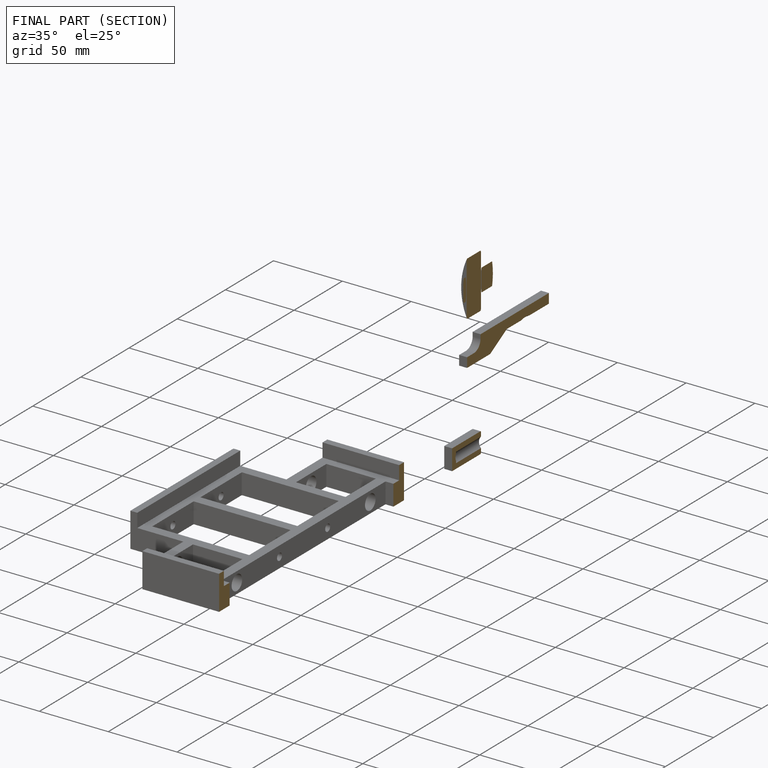
[diagram: finished part — half-section view (interior)]
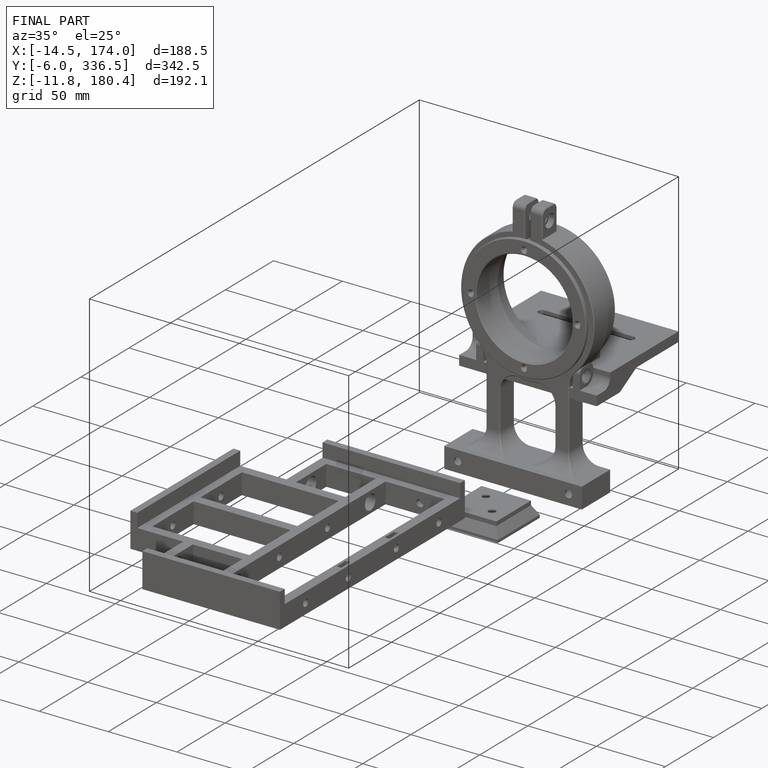
[diagram: finished part — iso view with bounding-box wireframe]
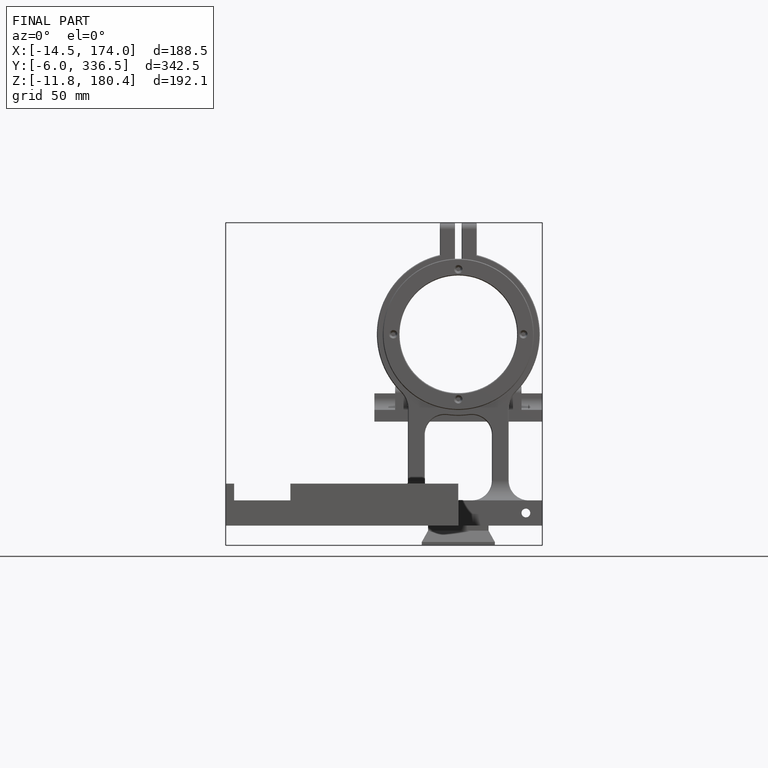
[diagram: finished part — front view with bounding-box wireframe]
